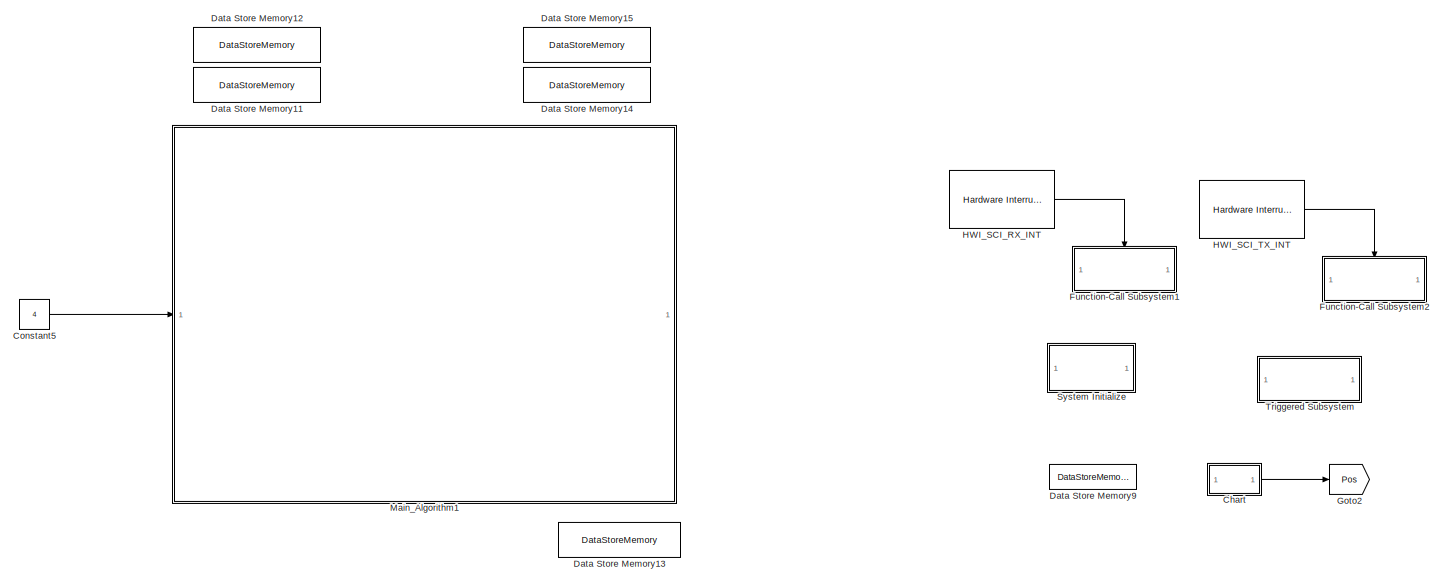
[diagram: root canvas - part 1/7, top center region]
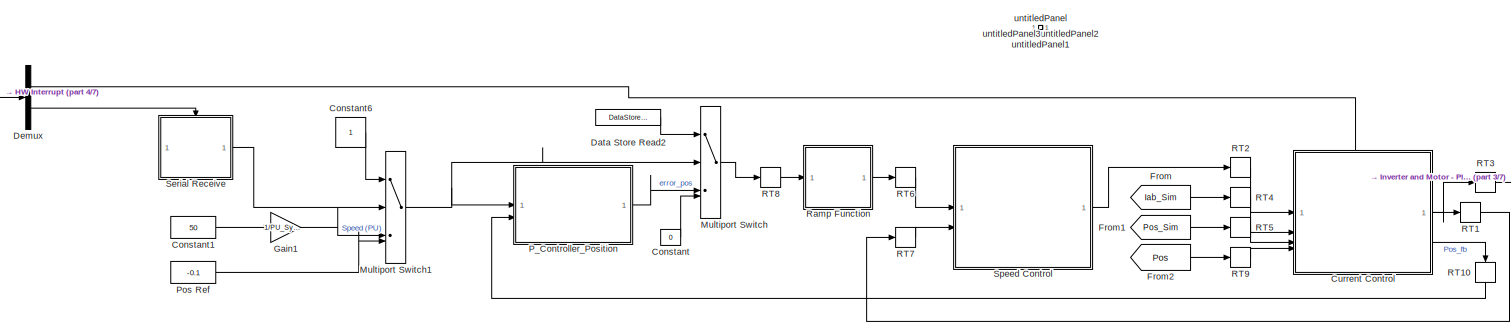
[diagram: root canvas - part 2/7, top right region]
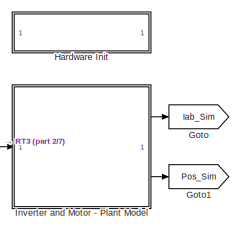
[diagram: root canvas - part 3/7, top right region]
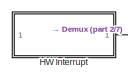
[diagram: root canvas - part 4/7, top center region]
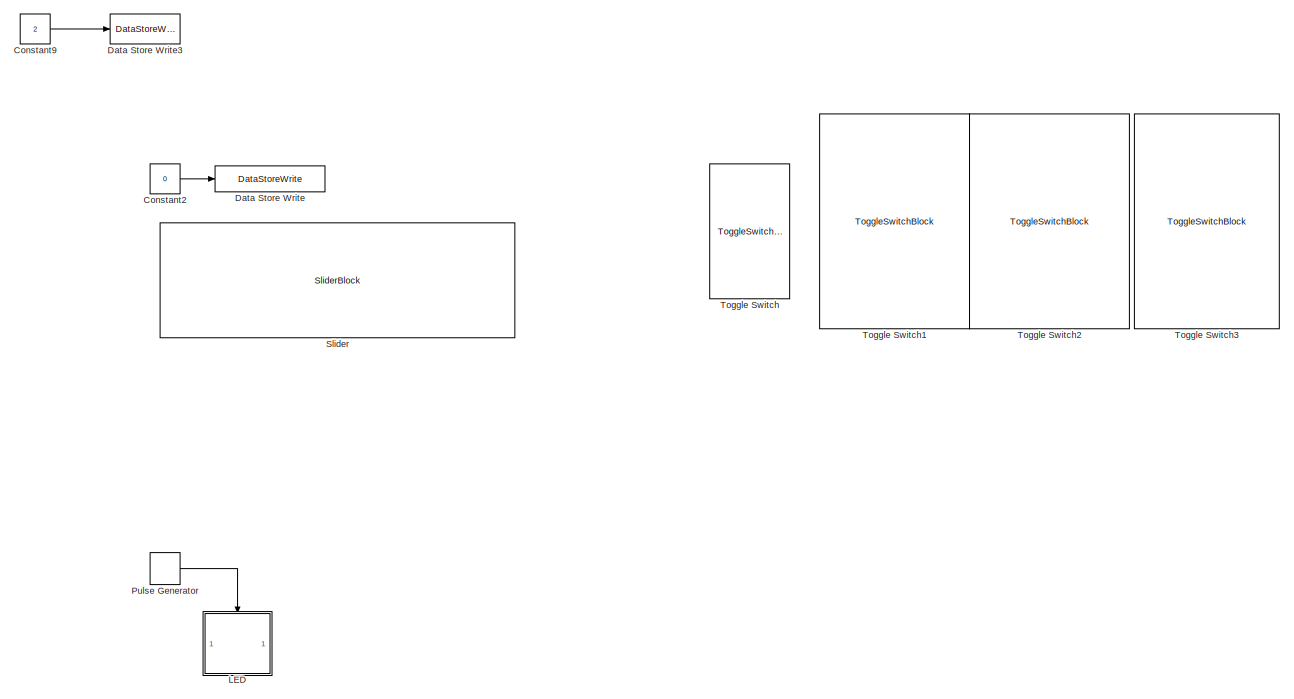
[diagram: root canvas - part 5/7, bottom right region]
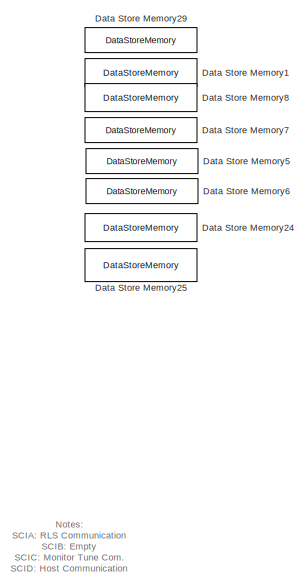
[diagram: root canvas - part 6/7, central region]
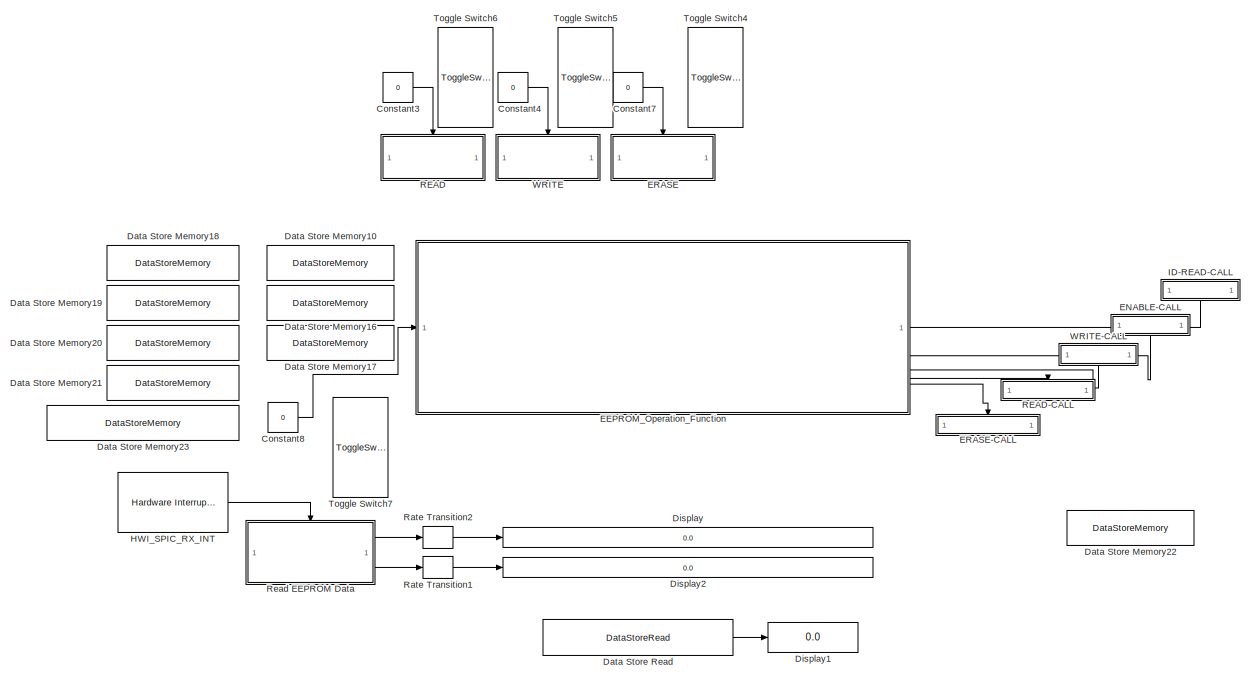
[diagram: root canvas - part 7/7, bottom left region]
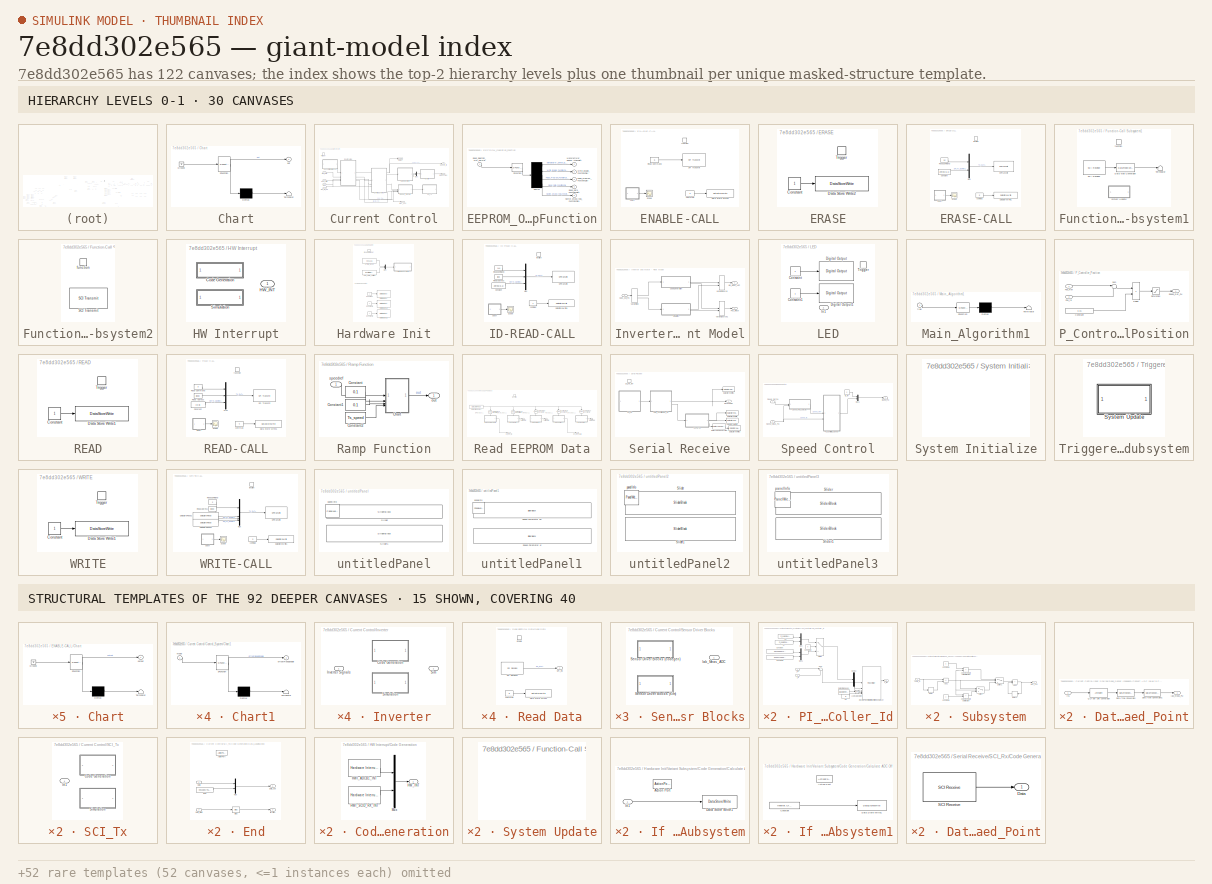
[diagram: thumbnail index - top-2 hierarchy levels (30 canvases) + 15 structural-template representatives of the remaining 92 canvases]
MODEL slx_7e8dd302e565
KIND model
CONFIG AbsTol = auto
CONFIG EnableMultiTasking = on
CONFIG FixedStep = auto
CONFIG InitFcn = mcb_pmsm_foc_hall_f28379d_data;
CONFIG MaxStep = auto
CONFIG MinStep = auto
CONFIG RelTol = 1e-3
CONFIG SampleTimeConstraint = Unconstrained
CONFIG SolverName = FixedStepDiscrete
CONFIG StartTime = 0.0
CONFIG StopTime = inf
WORKSPACE source: mxarray member
WORKSPACE encoderResolution = 2000
WORKSPACE hallOffset = '0.5'
WORKSPACE indexOffset = 850
WORKSPACE polePairs = '4'
BLOCK [SubSystem] Chart
  ErrorFcn = Stateflow.Translate.translate
  PermitHierarchicalResolution = ExplicitOnly
  SFBlockType = Chart
  TreatAsAtomicUnit = on
BLOCK [Demux] Chart/ Demux 
  Outputs = 1
BLOCK [Ground] Chart/ Ground 
BLOCK [S-Function] Chart/ SFunction 
  EnableBusSupport = on
  FunctionName = sf_sfun
  PortCounts = [1 2]
  SFcnIsStateOwnerBlock = off
  SFunctionDeploymentMode = off
  Tag = Stateflow S-Function 2
BLOCK [Terminator] Chart/ Terminator 
BLOCK [Outport] Chart/out
BLOCK [Constant] Constant
  SampleTime = -1
  Value = 0
BLOCK [Constant] Constant1
  OutDataTypeStr = single
  SampleTime = -1
  Value = 50
BLOCK [Constant] Constant2
  Commented = on
  OutDataTypeStr = boolean
  SampleTime = -1
  Value = 0
BLOCK [Constant] Constant3
  OutDataTypeStr = single
  SampleTime = -1
  Value = 0
BLOCK [Constant] Constant4
  OutDataTypeStr = single
  SampleTime = -1
  Value = 0
BLOCK [Constant] Constant5
  OutDataTypeStr = uint16
  SampleTime = -1
  Value = 4
BLOCK [Constant] Constant6
  SampleTime = -1
BLOCK [Constant] Constant7
  OutDataTypeStr = single
  SampleTime = -1
  Value = 0
BLOCK [Constant] Constant8
  OutDataTypeStr = boolean
  SampleTime = -1
  Value = 0
BLOCK [Constant] Constant9
  SampleTime = -1
  Value = 2
BLOCK [SubSystem] Current Control
  RTWMemSecFuncExecute = code_ramfuncs
  RTWSystemCode = Nonreusable function
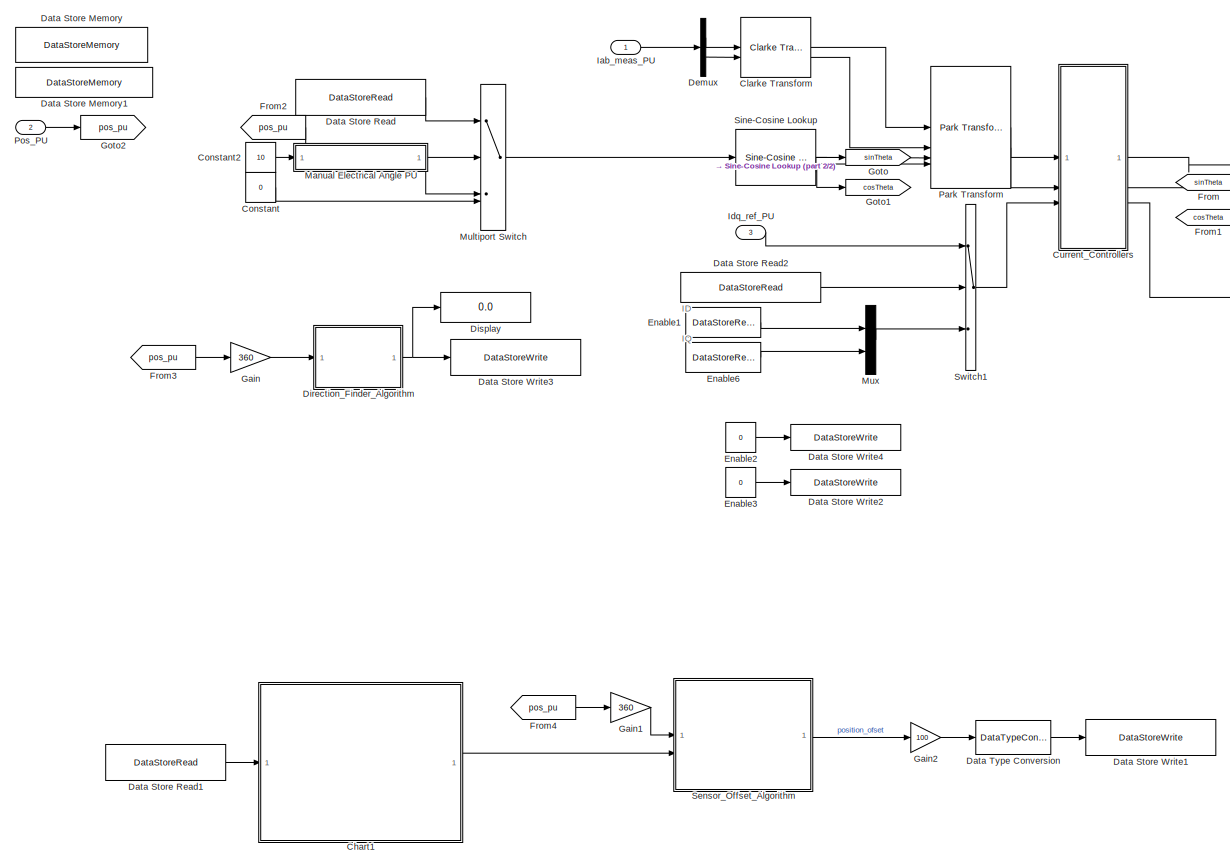
[diagram: Current Control/Control_System - part 1/2, most of the canvas]
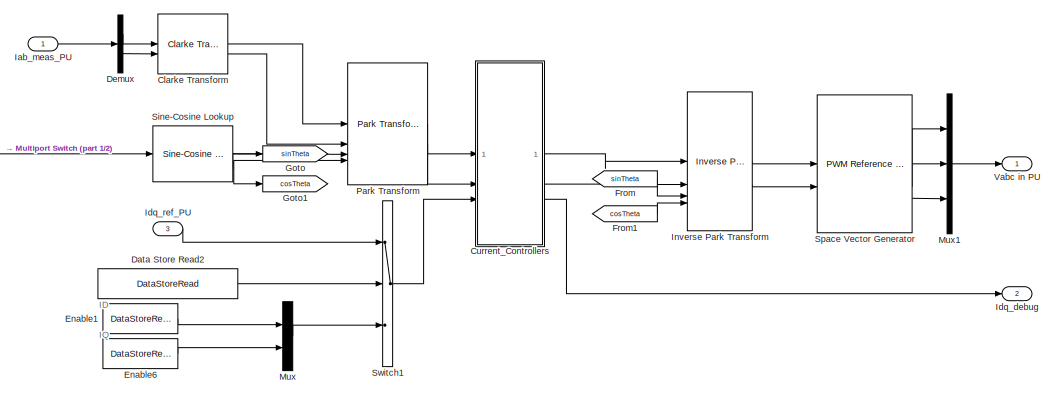
[diagram: Current Control/Control_System - part 2/2, top right region]
BLOCK [SubSystem] Current Control/Control_System
BLOCK [SubSystem] Current Control/Control_System/Chart1
  ErrorFcn = Stateflow.Translate.translate
  PermitHierarchicalResolution = ExplicitOnly
  SFBlockType = Chart
  TreatAsAtomicUnit = on
BLOCK [Demux] Current Control/Control_System/Chart1/ Demux 
  Outputs = 1
BLOCK [S-Function] Current Control/Control_System/Chart1/ SFunction 
  EnableBusSupport = on
  FunctionName = sf_sfun
  PortCounts = [1 2]
  SFcnIsStateOwnerBlock = off
  SFunctionDeploymentMode = off
  Tag = Stateflow S-Function 10
BLOCK [Terminator] Current Control/Control_System/Chart1/ Terminator 
BLOCK [Inport] Current Control/Control_System/Chart1/mode
BLOCK [Outport] Current Control/Control_System/Chart1/offsetReadEnable
BLOCK [Reference] Current Control/Control_System/Clarke Transform  REF=mcbcontrolslib/Clarke Transform
  SourceBlock = mcbcontrolslib/Clarke Transform
  SourceType = Clarke Transform
BLOCK [Constant] Current Control/Control_System/Constant
  OutDataTypeStr = single
  SampleTime = -1
  Value = 0
BLOCK [Constant] Current Control/Control_System/Constant2
  OutDataTypeStr = single
  SampleTime = -1
  Value = 10
BLOCK [SubSystem] Current Control/Control_System/Current_Controllers
BLOCK [Reference] Current Control/Control_System/Current_Controllers/DQ Limiter  REF=mcbcontrolslib/DQ Limiter
  SourceBlock = mcbcontrolslib/DQ Limiter
  SourceType = DQ Limiter
BLOCK [Demux] Current Control/Control_System/Current_Controllers/Demux
  Outputs = 2
BLOCK [Inport] Current Control/Control_System/Current_Controllers/Id
BLOCK [Outport] Current Control/Control_System/Current_Controllers/Idq
  Port = 3
  VectorParamsAs1DForOutWhenUnconnected = off
BLOCK [Inport] Current Control/Control_System/Current_Controllers/Idq_ref_PU
  Port = 3
BLOCK [Inport] Current Control/Control_System/Current_Controllers/Iq
  Port = 2
BLOCK [Mux] Current Control/Control_System/Current_Controllers/Mux
  DisplayOption = bar
BLOCK [SubSystem] Current Control/Control_System/Current_Controllers/PI_Controller_Id
BLOCK [Constant] Current Control/Control_System/Current_Controllers/PI_Controller_Id/Constant
  OutDataTypeStr = single
  SampleTime = -1
  Value = 2.013366674064481
BLOCK [Constant] Current Control/Control_System/Current_Controllers/PI_Controller_Id/Constant1
  OutDataTypeStr = single
  SampleTime = -1
  Value = 0.1031745930575185
BLOCK [Constant] Current Control/Control_System/Current_Controllers/PI_Controller_Id/Constant2
  OutDataTypeStr = single
  SampleTime = -1
  Value = 0
BLOCK [DataStoreRead] Current Control/Control_System/Current_Controllers/PI_Controller_Id/Data Store Read1
  DataStoreName = Enable
  IndexOptions = Index vector (dialog)
  Indices = 1
  OutputSizes = 1
BLOCK [Demux] Current Control/Control_System/Current_Controllers/PI_Controller_Id/Demux
  Outputs = 2
BLOCK [Reference] Current Control/Control_System/Current_Controllers/PI_Controller_Id/Discrete PI Controller with anti-windup & reset  REF=slpidlib/PID Controller
  LibrarySourceBlock = mcbcontrolslib/PI Controller
  SourceBlock = slpidlib/PID Controller
  SourceType = PID 1dof
BLOCK [Inport] Current Control/Control_System/Current_Controllers/PI_Controller_Id/I_fb
  Port = 2
BLOCK [Inport] Current Control/Control_System/Current_Controllers/PI_Controller_Id/I_ref
BLOCK [Constant] Current Control/Control_System/Current_Controllers/PI_Controller_Id/Ki
  OutDataTypeStr = dataType
  SampleTime = -1
  Value = PI_params.Ki_i*Ts
BLOCK [Constant] Current Control/Control_System/Current_Controllers/PI_Controller_Id/Ki1
  NameLocation = top
  OutDataTypeStr = dataType
  SampleTime = -1
  Value = 0
BLOCK [Constant] Current Control/Control_System/Current_Controllers/PI_Controller_Id/Kp
  NameLocation = top
  OutDataTypeStr = dataType
  SampleTime = -1
  Value = PI_params.Kp_i
BLOCK [Logic] Current Control/Control_System/Current_Controllers/PI_Controller_Id/Logical Operator
  AllPortsSameDT = off
  IconShape = distinctive
  Operator = NOT
  OutDataTypeStr = boolean
BLOCK [Mux] Current Control/Control_System/Current_Controllers/PI_Controller_Id/Mux
  DisplayOption = bar
  Inputs = 2
BLOCK [Mux] Current Control/Control_System/Current_Controllers/PI_Controller_Id/Mux1
  DisplayOption = bar
  Inputs = 2
BLOCK [Sum] Current Control/Control_System/Current_Controllers/PI_Controller_Id/Sum
  AccumDataTypeStr = Inherit: Same as first input
  Inputs = |+-
  OutDataTypeStr = Inherit: Same as first input
BLOCK [Switch] Current Control/Control_System/Current_Controllers/PI_Controller_Id/Switch
  Criteria = u2 > Threshold
  InputSameDT = off
  OutDataTypeStr = single
  SaturateOnIntegerOverflow = off
BLOCK [Outport] Current Control/Control_System/Current_Controllers/PI_Controller_Id/V_ref
  VectorParamsAs1DForOutWhenUnconnected = off
BLOCK [SubSystem] Current Control/Control_System/Current_Controllers/PI_Controller_Iq
BLOCK [Constant] Current Control/Control_System/Current_Controllers/PI_Controller_Iq/Constant
  OutDataTypeStr = single
  SampleTime = -1
  Value = 1.742285927107854
BLOCK [Constant] Current Control/Control_System/Current_Controllers/PI_Controller_Iq/Constant1
  OutDataTypeStr = single
  SampleTime = -1
  Value = 0.08751756653004016
BLOCK [Constant] Current Control/Control_System/Current_Controllers/PI_Controller_Iq/Constant2
  OutDataTypeStr = single
  SampleTime = -1
  Value = 0
BLOCK [DataStoreRead] Current Control/Control_System/Current_Controllers/PI_Controller_Iq/Data Store Read1
  DataStoreName = Enable
  IndexOptions = Index vector (dialog)
  Indices = 1
  OutputSizes = 1
BLOCK [Demux] Current Control/Control_System/Current_Controllers/PI_Controller_Iq/Demux
  Outputs = 2
BLOCK [Reference] Current Control/Control_System/Current_Controllers/PI_Controller_Iq/Discrete PI Controller with anti-windup & reset  REF=slpidlib/PID Controller
  LibrarySourceBlock = mcbcontrolslib/PI Controller
  SourceBlock = slpidlib/PID Controller
  SourceType = PID 1dof
BLOCK [Inport] Current Control/Control_System/Current_Controllers/PI_Controller_Iq/I_fb
  Port = 2
BLOCK [Inport] Current Control/Control_System/Current_Controllers/PI_Controller_Iq/I_ref
BLOCK [Constant] Current Control/Control_System/Current_Controllers/PI_Controller_Iq/Ki
  OutDataTypeStr = dataType
  SampleTime = -1
  Value = PI_params.Ki_i*Ts
BLOCK [Constant] Current Control/Control_System/Current_Controllers/PI_Controller_Iq/Kp
  NameLocation = top
  OutDataTypeStr = dataType
  SampleTime = -1
  Value = PI_params.Kp_i
BLOCK [Constant] Current Control/Control_System/Current_Controllers/PI_Controller_Iq/Kp1
  NameLocation = top
  OutDataTypeStr = dataType
  SampleTime = -1
  Value = 0
BLOCK [Logic] Current Control/Control_System/Current_Controllers/PI_Controller_Iq/Logical Operator
  AllPortsSameDT = off
  IconShape = distinctive
  Operator = NOT
  OutDataTypeStr = boolean
BLOCK [Mux] Current Control/Control_System/Current_Controllers/PI_Controller_Iq/Mux
  DisplayOption = bar
  Inputs = 2
BLOCK [Mux] Current Control/Control_System/Current_Controllers/PI_Controller_Iq/Mux1
  DisplayOption = bar
  Inputs = 2
BLOCK [Sum] Current Control/Control_System/Current_Controllers/PI_Controller_Iq/Sum
  AccumDataTypeStr = Inherit: Same as first input
  Inputs = |+-
  OutDataTypeStr = Inherit: Same as first input
BLOCK [Switch] Current Control/Control_System/Current_Controllers/PI_Controller_Iq/Switch
  Criteria = u2 > Threshold
  InputSameDT = off
  OutDataTypeStr = single
  SaturateOnIntegerOverflow = off
BLOCK [Outport] Current Control/Control_System/Current_Controllers/PI_Controller_Iq/V_ref
  VectorParamsAs1DForOutWhenUnconnected = off
BLOCK [Terminator] Current Control/Control_System/Current_Controllers/Terminator
BLOCK [Outport] Current Control/Control_System/Current_Controllers/Vd_ref
  VectorParamsAs1DForOutWhenUnconnected = off
BLOCK [Outport] Current Control/Control_System/Current_Controllers/Vq_ref
  Port = 2
  VectorParamsAs1DForOutWhenUnconnected = off
BLOCK [DataStoreMemory] Current Control/Control_System/Data Store Memory
  DataStoreName = Auto_nMan_pos_fdbck
  OutDataTypeStr = uint16
  ShowAdditionalParam = off
  SignalType = real
  WriteAfterWriteMsg = warning
BLOCK [DataStoreMemory] Current Control/Control_System/Data Store Memory1
  DataStoreName = Auto_nMan_currentRef
  OutDataTypeStr = boolean
  ShowAdditionalParam = off
  SignalType = real
  WriteAfterWriteMsg = warning
BLOCK [DataStoreRead] Current Control/Control_System/Data Store Read
  DataStoreName = Auto_nMan_pos_fdbck
  IndexOptions = Index vector (dialog)
  Indices = 1
  OutputSizes = 1
BLOCK [DataStoreRead] Current Control/Control_System/Data Store Read1
  DataStoreName = CL_Op_Mode
  IndexOptions = Index vector (dialog)
  Indices = 1
  OutputSizes = 1
BLOCK [DataStoreRead] Current Control/Control_System/Data Store Read2
  DataStoreName = Auto_nMan_currentRef
  IndexOptions = Index vector (dialog)
  Indices = 1
  OutputSizes = 1
BLOCK [DataStoreWrite] Current Control/Control_System/Data Store Write1
  DataStoreName = position_offset
  IndexOptions = Index vector (dialog)
  Indices = 1
  OutputSizes = 1
BLOCK [DataStoreWrite] Current Control/Control_System/Data Store Write2
  DataStoreName = Id_ref
  IndexOptions = Index vector (dialog)
  Indices = 1
  OutputSizes = 1
BLOCK [DataStoreWrite] Current Control/Control_System/Data Store Write3
  DataStoreName = motor_direction
  IndexOptions = Index vector (dialog)
  Indices = 1
  OutputSizes = 1
BLOCK [DataStoreWrite] Current Control/Control_System/Data Store Write4
  DataStoreName = Iq_ref
  IndexOptions = Index vector (dialog)
  Indices = 1
  OutputSizes = 1
BLOCK [DataTypeConversion] Current Control/Control_System/Data Type Conversion
  OutDataTypeStr = uint16
  RndMeth = Floor
  SaturateOnIntegerOverflow = off
BLOCK [Demux] Current Control/Control_System/Demux
  Outputs = 2
BLOCK [SubSystem] Current Control/Control_System/Direction_Finder_Algorithm
BLOCK [Outport] Current Control/Control_System/Direction_Finder_Algorithm/Output
BLOCK [Inport] Current Control/Control_System/Direction_Finder_Algorithm/Position
BLOCK [SubSystem] Current Control/Control_System/Direction_Finder_Algorithm/deBounce
  ErrorFcn = Stateflow.Translate.translate
  PermitHierarchicalResolution = ExplicitOnly
  SFBlockType = Chart
  TreatAsAtomicUnit = on
BLOCK [Demux] Current Control/Control_System/Direction_Finder_Algorithm/deBounce/ Demux 
  Outputs = 1
BLOCK [S-Function] Current Control/Control_System/Direction_Finder_Algorithm/deBounce/ SFunction 
  EnableBusSupport = on
  FunctionName = sf_sfun
  PortCounts = [1 2]
  SFcnIsStateOwnerBlock = off
  SFunctionDeploymentMode = off
  Tag = Stateflow S-Function 12
BLOCK [Terminator] Current Control/Control_System/Direction_Finder_Algorithm/deBounce/ Terminator 
BLOCK [Outport] Current Control/Control_System/Direction_Finder_Algorithm/deBounce/Output
BLOCK [Inport] Current Control/Control_System/Direction_Finder_Algorithm/deBounce/input
BLOCK [SubSystem] Current Control/Control_System/Direction_Finder_Algorithm/directionFinder
  ErrorFcn = Stateflow.Translate.translate
  PermitHierarchicalResolution = ExplicitOnly
  SFBlockType = Chart
  TreatAsAtomicUnit = on
BLOCK [Demux] Current Control/Control_System/Direction_Finder_Algorithm/directionFinder/ Demux 
  Outputs = 1
BLOCK [S-Function] Current Control/Control_System/Direction_Finder_Algorithm/directionFinder/ SFunction 
  EnableBusSupport = on
  FunctionName = sf_sfun
  PortCounts = [1 2]
  SFcnIsStateOwnerBlock = off
  SFunctionDeploymentMode = off
  Tag = Stateflow S-Function 11
BLOCK [Terminator] Current Control/Control_System/Direction_Finder_Algorithm/directionFinder/ Terminator 
BLOCK [Inport] Current Control/Control_System/Direction_Finder_Algorithm/directionFinder/Position
BLOCK [Outport] Current Control/Control_System/Direction_Finder_Algorithm/directionFinder/direction
BLOCK [Display] Current Control/Control_System/Display
  Decimation = 1
BLOCK [DataStoreRead] Current Control/Control_System/Enable1
  DataStoreName = Id_ref
  IndexOptions = Index vector (dialog)
  Indices = 1
  OutputSizes = 1
BLOCK [Constant] Current Control/Control_System/Enable2
  OutDataTypeStr = single
  SampleTime = -1
  Value = 0
BLOCK [Constant] Current Control/Control_System/Enable3
  OutDataTypeStr = single
  SampleTime = -1
  Value = 0
BLOCK [DataStoreRead] Current Control/Control_System/Enable6
  DataStoreName = Iq_ref
  IndexOptions = Index vector (dialog)
  Indices = 1
  OutputSizes = 1
BLOCK [From] Current Control/Control_System/From
  GotoTag = sinTheta
BLOCK [From] Current Control/Control_System/From1
  GotoTag = cosTheta
BLOCK [From] Current Control/Control_System/From2
  GotoTag = pos_pu
BLOCK [From] Current Control/Control_System/From3
  GotoTag = pos_pu
BLOCK [From] Current Control/Control_System/From4
  GotoTag = pos_pu
BLOCK [Gain] Current Control/Control_System/Gain
  Gain = 360
  OutDataTypeStr = single
BLOCK [Gain] Current Control/Control_System/Gain1
  Gain = 360
  OutDataTypeStr = single
BLOCK [Gain] Current Control/Control_System/Gain2
  Gain = 100
  OutDataTypeStr = single
BLOCK [Goto] Current Control/Control_System/Goto
  GotoTag = sinTheta
BLOCK [Goto] Current Control/Control_System/Goto1
  GotoTag = cosTheta
BLOCK [Goto] Current Control/Control_System/Goto2
  GotoTag = pos_pu
BLOCK [Inport] Current Control/Control_System/Iab_meas_PU
BLOCK [Outport] Current Control/Control_System/Idq_debug
  Port = 2
  VectorParamsAs1DForOutWhenUnconnected = off
BLOCK [Inport] Current Control/Control_System/Idq_ref_PU
  Port = 3
BLOCK [Reference] Current Control/Control_System/Inverse Park Transform  REF=mcbcontrolslib/Inverse Park Transform
  SourceBlock = mcbcontrolslib/Inverse Park Transform
  SourceType = Inverse Park Transform
BLOCK [SubSystem] Current Control/Control_System/Manual Electrical Angle PU
  ErrorFcn = Stateflow.Translate.translate
  PermitHierarchicalResolution = ExplicitOnly
  SFBlockType = Chart
  TreatAsAtomicUnit = on
BLOCK [Demux] Current Control/Control_System/Manual Electrical Angle PU/ Demux 
  Outputs = 1
BLOCK [S-Function] Current Control/Control_System/Manual Electrical Angle PU/ SFunction 
  EnableBusSupport = on
  FunctionName = sf_sfun
  PortCounts = [1 2]
  SFcnIsStateOwnerBlock = off
  SFunctionDeploymentMode = off
  Tag = Stateflow S-Function 3
BLOCK [Terminator] Current Control/Control_System/Manual Electrical Angle PU/ Terminator 
BLOCK [Outport] Current Control/Control_System/Manual Electrical Angle PU/angle
BLOCK [Inport] Current Control/Control_System/Manual Electrical Angle PU/speedRate
BLOCK [MultiPortSwitch] Current Control/Control_System/Multiport Switch
  InputSameDT = off
  Inputs = 4
  SaturateOnIntegerOverflow = off
BLOCK [Mux] Current Control/Control_System/Mux
  DisplayOption = bar
  Inputs = 2
BLOCK [Mux] Current Control/Control_System/Mux1
  DisplayOption = bar
  Inputs = 3
BLOCK [Reference] Current Control/Control_System/Park Transform  REF=mcbcontrolslib/Park Transform
  SourceBlock = mcbcontrolslib/Park Transform
  SourceType = Park Transform
BLOCK [Inport] Current Control/Control_System/Pos_PU
  Port = 2
BLOCK [SubSystem] Current Control/Control_System/Sensor_Offset_Algorithm
  ErrorFcn = Stateflow.Translate.translate
  PermitHierarchicalResolution = ExplicitOnly
  SFBlockType = Chart
  TreatAsAtomicUnit = on
BLOCK [Demux] Current Control/Control_System/Sensor_Offset_Algorithm/ Demux 
  Outputs = 1
BLOCK [S-Function] Current Control/Control_System/Sensor_Offset_Algorithm/ SFunction 
  EnableBusSupport = on
  FunctionName = sf_sfun
  PortCounts = [2 2]
  SFcnIsStateOwnerBlock = off
  SFunctionDeploymentMode = off
  Tag = Stateflow S-Function 13
BLOCK [Terminator] Current Control/Control_System/Sensor_Offset_Algorithm/ Terminator 
BLOCK [Inport] Current Control/Control_System/Sensor_Offset_Algorithm/enable
  Port = 2
BLOCK [Outport] Current Control/Control_System/Sensor_Offset_Algorithm/offset
BLOCK [Inport] Current Control/Control_System/Sensor_Offset_Algorithm/position
BLOCK [Reference] Current Control/Control_System/Sine-Cosine Lookup  REF=mcbcontrolslib/Sine-Cosine Lookup
  SourceBlock = mcbcontrolslib/Sine-Cosine Lookup
  SourceType = Sine-Cosine Lookup
BLOCK [Reference] Current Control/Control_System/Space Vector Generator  REF=mcbcontrolslib/PWM Reference Generator
  SourceBlock = mcbcontrolslib/PWM Reference Generator
  SourceType = PWM Modulation
BLOCK [Switch] Current Control/Control_System/Switch1
  Criteria = u2 > Threshold
  InputSameDT = off
  OutDataTypeStr = single
  SaturateOnIntegerOverflow = off
BLOCK [Outport] Current Control/Control_System/Vabc in PU
  VectorParamsAs1DForOutWhenUnconnected = off
BLOCK [SubSystem] Current Control/Debug_signals
BLOCK [DataStoreRead] Current Control/Debug_signals/Data Store Read
  DataStoreName = Debug_signals
  IndexOptions = Index vector (dialog)
  Indices = 1
  OutputSizes = 1
BLOCK [DataStoreRead] Current Control/Debug_signals/Data Store Read1
  DataStoreName = Desired_ref
  IndexOptions = Index vector (dialog)
  Indices = 1
  OutputSizes = 1
BLOCK [Outport] Current Control/Debug_signals/Debug_signal
BLOCK [Demux] Current Control/Debug_signals/Demux
  Outputs = 2
BLOCK [Demux] Current Control/Debug_signals/Demux1
BLOCK [From] Current Control/Debug_signals/From
  GotoTag = debug1
  TagVisibility = global
BLOCK [Constant] Current Control/Debug_signals/Ia_Pos
  OutDataTypeStr = uint16
  SampleTime = -1
  Value = [3 9]
BLOCK [Constant] Current Control/Debug_signals/Iab
  OutDataTypeStr = uint16
  SampleTime = -1
  Value = [3 4]
BLOCK [Inport] Current Control/Debug_signals/Iab_PU
  Port = 3
BLOCK [Constant] Current Control/Debug_signals/Id_control
  OutDataTypeStr = uint16
  SampleTime = -1
  Value = [5 6]
BLOCK [Inport] Current Control/Debug_signals/Idq_debug
BLOCK [Constant] Current Control/Debug_signals/Iq_control
  OutDataTypeStr = uint16
  SampleTime = -1
  Value = [7 8]
BLOCK [Constant] Current Control/Debug_signals/Mec_Pos
  OutDataTypeStr = uint16
  SampleTime = -1
  Value = [10 9]
BLOCK [Inport] Current Control/Debug_signals/Mec_pos
  OutDataTypeStr = single
  Port = 4
BLOCK [MultiPortSwitch] Current Control/Debug_signals/Multiport Switch
  DiagnosticForDefault = Warning
  InputSameDT = off
  Inputs = 6
  OutDataTypeStr = uint16
  RndMeth = Simplest
  SaturateOnIntegerOverflow = off
BLOCK [Mux] Current Control/Debug_signals/Mux
  DisplayOption = bar
  Inputs = 10
BLOCK [Inport] Current Control/Debug_signals/Position
  Port = 2
BLOCK [Selector] Current Control/Debug_signals/Selector
  IndexOptions = Index vector (port)
  Indices = [1 3]
  InputPortWidth = 9
  OutputSizes = 1
BLOCK [Constant] Current Control/Debug_signals/speed_control
  OutDataTypeStr = uint16
  SampleTime = -1
  Value = [1 2]
BLOCK [Outport] Current Control/Duty Cycles
  InitialOutput = 0
  VectorParamsAs1DForOutWhenUnconnected = off
BLOCK [Goto] Current Control/Goto1
  GotoTag = debug1
  TagVisibility = global
BLOCK [Inport] Current Control/Iab_Sim
  Port = 2
BLOCK [Inport] Current Control/Idq_ref_PU
BLOCK [SubSystem] Current Control/Input Scaling
  PortSchema = {"entries":[{"content":{"sides":[{"content":{"connectorIds":["In1","In2","In3"]},"type":"ConnectorPlacement.EquallySpacedRectSide","uuid":"9f2f3667-6d5e-4714-8728-a7ac227716ab"},{"content":{"connectorIds":["Out1","Out2","Out3","Out4"],"side":"RIGHT"},"type":"ConnectorPlacement.EquallySpacedRectSide","uuid":"67095e94-5e6f-40af-88f8-fd5db9288dde"},{"content":{"side":"TOP"},"type":"ConnectorPlacement...<+404ch>
  PropagateVariantConditions = on
  Variant = on
  VariantControl = Variant1
  VariantControlMode = sim codegen switching
BLOCK [Inport] Current Control/Input Scaling/Iab_Sim
  Port = 2
BLOCK [Inport] Current Control/Input Scaling/Iab_meas_ADC
BLOCK [Outport] Current Control/Input Scaling/Iab_meas_PU
  Port = 2
  VectorParamsAs1DForOutWhenUnconnected = off
BLOCK [Outport] Current Control/Input Scaling/Mec_pos
  InitialOutput = 0
  Port = 4
  VectorParamsAs1DForOutWhenUnconnected = off
BLOCK [Inport] Current Control/Input Scaling/Pos
  Port = 4
BLOCK [Outport] Current Control/Input Scaling/Pos_PU
  InitialOutput = 0
  Port = 3
  VectorParamsAs1DForOutWhenUnconnected = off
BLOCK [Inport] Current Control/Input Scaling/Pos_Sim
  Port = 3
BLOCK [SubSystem] Current Control/Input Scaling/Read_Sensor (codegen)
  VariantControl = (codegen)
BLOCK [SubSystem] Current Control/Input Scaling/Read_Sensor (codegen)/Calculate Position from Hall
BLOCK [Sum] Current Control/Input Scaling/Read_Sensor (codegen)/Calculate Position from Hall/Add
  AccumDataTypeStr = single
  IconShape = rectangular
  OutDataTypeStr = single
BLOCK [Constant] Current Control/Input Scaling/Read_Sensor (codegen)/Calculate Position from Hall/Constant
  OutDataTypeStr = single
  SampleTime = -1
  Value = 130
BLOCK [Constant] Current Control/Input Scaling/Read_Sensor (codegen)/Calculate Position from Hall/Constant1
  OutDataTypeStr = single
  SampleTime = -1
  Value = 360
BLOCK [Constant] Current Control/Input Scaling/Read_Sensor (codegen)/Calculate Position from Hall/Constant2
  OutDataTypeStr = single
  SampleTime = -1
  Value = 360
BLOCK [Product] Current Control/Input Scaling/Read_Sensor (codegen)/Calculate Position from Hall/Divide
  Inputs = */
  OutDataTypeStr = single
BLOCK [Outport] Current Control/Input Scaling/Read_Sensor (codegen)/Calculate Position from Hall/Mec_pos
  Port = 3
BLOCK [Reference] Current Control/Input Scaling/Read_Sensor (codegen)/Calculate Position from Hall/Mechanical to Electrical Position1  REF=mcbpositiondecoderlib/Mechanical to Electrical Position
  SourceBlock = mcbpositiondecoderlib/Mechanical to Electrical Position
  SourceType = Mechanical to Electrical Position
BLOCK [Math] Current Control/Input Scaling/Read_Sensor (codegen)/Calculate Position from Hall/Mod
  Operator = mod
  OutMax = [360]
  OutMin = [0]
  OutputSignalType = real
BLOCK [Inport] Current Control/Input Scaling/Read_Sensor (codegen)/Calculate Position from Hall/Pos
BLOCK [Outport] Current Control/Input Scaling/Read_Sensor (codegen)/Calculate Position from Hall/Pos_PU
  InitialOutput = 0
  VectorParamsAs1DForOutWhenUnconnected = off
BLOCK [Reference] Current Control/Input Scaling/Read_Sensor (codegen)/Calculate Position from Hall/Speed Measurement  REF=mcbhdlpositiondecoderlib/Speed Measurement
  LibrarySourceBlock = mcbhdllib/Sensor Decoders/Speed Measurement
  SourceBlock = mcbhdlpositiondecoderlib/Speed Measurement
  SourceType = Speed Measurement
BLOCK [Outport] Current Control/Input Scaling/Read_Sensor (codegen)/Calculate Position from Hall/Speed_PU
  InitialOutput = 0
  Port = 2
  VectorParamsAs1DForOutWhenUnconnected = off
BLOCK [SubSystem] Current Control/Input Scaling/Read_Sensor (codegen)/Calculate Position from Hall/Subsystem
BLOCK [Sum] Current Control/Input Scaling/Read_Sensor (codegen)/Calculate Position from Hall/Subsystem/Add1
  IconShape = rectangular
  Inputs = +-
BLOCK [Sum] Current Control/Input Scaling/Read_Sensor (codegen)/Calculate Position from Hall/Subsystem/Add2
  IconShape = rectangular
BLOCK [Constant] Current Control/Input Scaling/Read_Sensor (codegen)/Calculate Position from Hall/Subsystem/Constant3
  OutDataTypeStr = dataType
BLOCK [Constant] Current Control/Input Scaling/Read_Sensor (codegen)/Calculate Position from Hall/Subsystem/Constant4
  OutDataTypeStr = dataType
  Value = -1
BLOCK [Delay] Current Control/Input Scaling/Read_Sensor (codegen)/Calculate Position from Hall/Subsystem/Delay
  DelayLength = 1
  InputPortMap = u0
BLOCK [Delay] Current Control/Input Scaling/Read_Sensor (codegen)/Calculate Position from Hall/Subsystem/Delay1
  DelayLength = 1
  InputPortMap = u0
BLOCK [Outport] Current Control/Input Scaling/Read_Sensor (codegen)/Calculate Position from Hall/Subsystem/Mec_Pos
BLOCK [Switch] Current Control/Input Scaling/Read_Sensor (codegen)/Calculate Position from Hall/Subsystem/Switch
  Criteria = u2 > Threshold
  InputSameDT = off
  SaturateOnIntegerOverflow = off
  Threshold = -0.5
BLOCK [Switch] Current Control/Input Scaling/Read_Sensor (codegen)/Calculate Position from Hall/Subsystem/Switch1
  Criteria = u2 > Threshold
  InputSameDT = off
  SaturateOnIntegerOverflow = off
  Threshold = 0.5
BLOCK [Inport] Current Control/Input Scaling/Read_Sensor (codegen)/Calculate Position from Hall/Subsystem/Theta_m
BLOCK [Sum] Current Control/Input Scaling/Read_Sensor (codegen)/Calculate Position from Hall/Subsystem/zero crossing in Anti CW direction
  IconShape = rectangular
BLOCK [Sum] Current Control/Input Scaling/Read_Sensor (codegen)/Calculate Position from Hall/Subsystem/zero crossing in CW direction
  IconShape = rectangular
BLOCK [SubSystem] Current Control/Input Scaling/Read_Sensor (codegen)/Convert ADC value to PU
BLOCK [Sum] Current Control/Input Scaling/Read_Sensor (codegen)/Convert ADC value to PU/Add
  IconShape = rectangular
  Inputs = -+
BLOCK [DataStoreRead] Current Control/Input Scaling/Read_Sensor (codegen)/Convert ADC value to PU/Data Store Read
  DataStoreName = IaOffset
  IndexOptions = Index vector (dialog)
  Indices = 1
  OutputSizes = 1
BLOCK [DataStoreRead] Current Control/Input Scaling/Read_Sensor (codegen)/Convert ADC value to PU/Data Store Read1
  DataStoreName = IbOffset
  IndexOptions = Index vector (dialog)
  Indices = 1
  OutputSizes = 1
BLOCK [DataTypeConversion] Current Control/Input Scaling/Read_Sensor (codegen)/Convert ADC value to PU/Data Type Conversion
  ConvertRealWorld = Stored Integer (SI)
  OutDataTypeStr = int32
  RndMeth = Floor
  SaturateOnIntegerOverflow = off
BLOCK [SubSystem] Current Control/Input Scaling/Read_Sensor (codegen)/Convert ADC value to PU/Data_Type
  Variant = on
BLOCK [SubSystem] Current Control/Input Scaling/Read_Sensor (codegen)/Convert ADC value to PU/Data_Type/Data_Type_Fixed_Point
  VariantControl = ~isequal(dataType,'single')
BLOCK [DataTypeConversion] Current Control/Input Scaling/Read_Sensor (codegen)/Convert ADC value to PU/Data_Type/Data_Type_Fixed_Point/Data Type Conversion
  ConvertRealWorld = Stored Integer (SI)
  OutDataTypeStr = fixdt(1,32,17)
  RndMeth = Simplest
  SaturateOnIntegerOverflow = off
BLOCK [DataTypeConversion] Current Control/Input Scaling/Read_Sensor (codegen)/Convert ADC value to PU/Data_Type/Data_Type_Fixed_Point/Data Type Conversion1
  OutDataTypeStr = dataType
  RndMeth = Simplest
  SaturateOnIntegerOverflow = off
BLOCK [Outport] Current Control/Input Scaling/Read_Sensor (codegen)/Convert ADC value to PU/Data_Type/Data_Type_Fixed_Point/Iab_meas_PU
BLOCK [Inport] Current Control/Input Scaling/Read_Sensor (codegen)/Convert ADC value to PU/Data_Type/Data_Type_Fixed_Point/In1
BLOCK [ArithShift] Current Control/Input Scaling/Read_Sensor (codegen)/Convert ADC value to PU/Data_Type/Data_Type_Fixed_Point/Q17 per unit conversion
  BitShiftNumber = -6
  InputPortMap = u0
BLOCK [SubSystem] Current Control/Input Scaling/Read_Sensor (codegen)/Convert ADC value to PU/Data_Type/Data_Type_Float
  VariantControl = isequal(dataType,'single')
BLOCK [Sum] Current Control/Input Scaling/Read_Sensor (codegen)/Convert ADC value to PU/Data_Type/Data_Type_Float/Add
  AccumDataTypeStr = single
  IconShape = rectangular
  OutDataTypeStr = single
BLOCK [Sum] Current Control/Input Scaling/Read_Sensor (codegen)/Convert ADC value to PU/Data_Type/Data_Type_Float/Add1
  AccumDataTypeStr = single
  IconShape = rectangular
  Inputs = +-
  OutDataTypeStr = single
BLOCK [Constant] Current Control/Input Scaling/Read_Sensor (codegen)/Convert ADC value to PU/Data_Type/Data_Type_Float/Constant
  OutDataTypeStr = single
  SampleTime = -1
  Value = 0
BLOCK [Demux] Current Control/Input Scaling/Read_Sensor (codegen)/Convert ADC value to PU/Data_Type/Data_Type_Float/Demux
  Outputs = 2
BLOCK [Gain] Current Control/Input Scaling/Read_Sensor (codegen)/Convert ADC value to PU/Data_Type/Data_Type_Float/Get ADC Voltage
  Gain = target.ADC_Vref /target.ADC_MaxCount
  OutDataTypeStr = dataType
  RndMeth = Simplest
BLOCK [Gain] Current Control/Input Scaling/Read_Sensor (codegen)/Convert ADC value to PU/Data_Type/Data_Type_Float/Get Currents
  Gain = 1/inverter.ISenseVoltPerAmp
  OutDataTypeStr = Inherit: Same as input
  RndMeth = Simplest
BLOCK [Outport] Current Control/Input Scaling/Read_Sensor (codegen)/Convert ADC value to PU/Data_Type/Data_Type_Float/Iab_meas_PU
BLOCK [Inport] Current Control/Input Scaling/Read_Sensor (codegen)/Convert ADC value to PU/Data_Type/Data_Type_Float/In1
BLOCK [Mux] Current Control/Input Scaling/Read_Sensor (codegen)/Convert ADC value to PU/Data_Type/Data_Type_Float/Mux
  DisplayOption = bar
  Inputs = 2
BLOCK [Gain] Current Control/Input Scaling/Read_Sensor (codegen)/Convert ADC value to PU/Data_Type/Data_Type_Float/PU_Conversion
  Gain = 1/PU_System.I_base
  OutDataTypeStr = Inherit: Same as input
  RndMeth = Simplest
BLOCK [Outport] Current Control/Input Scaling/Read_Sensor (codegen)/Convert ADC value to PU/Data_Type/Iab_meas_PU
BLOCK [Inport] Current Control/Input Scaling/Read_Sensor (codegen)/Convert ADC value to PU/Data_Type/In1
BLOCK [Inport] Current Control/Input Scaling/Read_Sensor (codegen)/Convert ADC value to PU/Iab_meas_ADC
BLOCK [Outport] Current Control/Input Scaling/Read_Sensor (codegen)/Convert ADC value to PU/Iab_meas_PU
BLOCK [Gain] Current Control/Input Scaling/Read_Sensor (codegen)/Convert ADC value to PU/Inverting // Non-inverting Current measurement amplifieer
  Gain = inverter.invertingAmp
  OutDataTypeStr = Inherit: Same as input
  RndMeth = Simplest
BLOCK [Mux] Current Control/Input Scaling/Read_Sensor (codegen)/Convert ADC value to PU/Mux
  DisplayOption = bar
  Inputs = 2
BLOCK [Inport] Current Control/Input Scaling/Read_Sensor (codegen)/Iab_Sim
  Port = 2
BLOCK [Inport] Current Control/Input Scaling/Read_Sensor (codegen)/Iab_meas_ADC
BLOCK [Outport] Current Control/Input Scaling/Read_Sensor (codegen)/Iab_meas_PU
  VectorParamsAs1DForOutWhenUnconnected = off
BLOCK [Outport] Current Control/Input Scaling/Read_Sensor (codegen)/Mec_pos
  InitialOutput = 0
  Port = 4
  VectorParamsAs1DForOutWhenUnconnected = off
BLOCK [Inport] Current Control/Input Scaling/Read_Sensor (codegen)/Pos
  Port = 4
BLOCK [Outport] Current Control/Input Scaling/Read_Sensor (codegen)/Pos_PU
  InitialOutput = 0
  Port = 2
  VectorParamsAs1DForOutWhenUnconnected = off
BLOCK [Inport] Current Control/Input Scaling/Read_Sensor (codegen)/Pos_Sim
  Port = 3
BLOCK [Terminator] Current Control/Input Scaling/Read_Sensor (codegen)/Terminator
BLOCK [Terminator] Current Control/Input Scaling/Read_Sensor (codegen)/Terminator1
BLOCK [Outport] Current Control/Input Scaling/Read_Sensor (codegen)/speed_PU
  InitialOutput = 0
  Port = 3
  VectorParamsAs1DForOutWhenUnconnected = off
BLOCK [SubSystem] Current Control/Input Scaling/Read_Sensor (sim)
  VariantControl = (sim)
BLOCK [SubSystem] Current Control/Input Scaling/Read_Sensor (sim)/Convert ADC value to PU
BLOCK [Constant] Current Control/Input Scaling/Read_Sensor (sim)/Convert ADC value to PU/0A in ADC counts
  OutDataTypeStr = uint16
  SampleTime = -1
  Value = [inverter.CtSensAOffset inverter.CtSensBOffset]
BLOCK [Sum] Current Control/Input Scaling/Read_Sensor (sim)/Convert ADC value to PU/Add
  IconShape = rectangular
  Inputs = -+
BLOCK [DataTypeConversion] Current Control/Input Scaling/Read_Sensor (sim)/Convert ADC value to PU/Data Type Conversion
  ConvertRealWorld = Stored Integer (SI)
  OutDataTypeStr = int32
  RndMeth = Floor
  SaturateOnIntegerOverflow = off
BLOCK [SubSystem] Current Control/Input Scaling/Read_Sensor (sim)/Convert ADC value to PU/Data_Type
  Variant = on
BLOCK [SubSystem] Current Control/Input Scaling/Read_Sensor (sim)/Convert ADC value to PU/Data_Type/Data_Type_Fixed_Point
  VariantControl = ~isequal(dataType,'single')
BLOCK [DataTypeConversion] Current Control/Input Scaling/Read_Sensor (sim)/Convert ADC value to PU/Data_Type/Data_Type_Fixed_Point/Data Type Conversion
  ConvertRealWorld = Stored Integer (SI)
  OutDataTypeStr = fixdt(1,32,17)
  RndMeth = Simplest
  SaturateOnIntegerOverflow = off
BLOCK [DataTypeConversion] Current Control/Input Scaling/Read_Sensor (sim)/Convert ADC value to PU/Data_Type/Data_Type_Fixed_Point/Data Type Conversion1
  OutDataTypeStr = dataType
  RndMeth = Simplest
  SaturateOnIntegerOverflow = off
BLOCK [Outport] Current Control/Input Scaling/Read_Sensor (sim)/Convert ADC value to PU/Data_Type/Data_Type_Fixed_Point/Iab_meas_PU
BLOCK [Inport] Current Control/Input Scaling/Read_Sensor (sim)/Convert ADC value to PU/Data_Type/Data_Type_Fixed_Point/In1
BLOCK [ArithShift] Current Control/Input Scaling/Read_Sensor (sim)/Convert ADC value to PU/Data_Type/Data_Type_Fixed_Point/Q17 per unit conversion
  BitShiftNumber = -6
  InputPortMap = u0
BLOCK [SubSystem] Current Control/Input Scaling/Read_Sensor (sim)/Convert ADC value to PU/Data_Type/Data_Type_Float
  VariantControl = isequal(dataType,'single')
BLOCK [Gain] Current Control/Input Scaling/Read_Sensor (sim)/Convert ADC value to PU/Data_Type/Data_Type_Float/Current Sense Gain
  Gain = PU_System.I_base/1.65
  OutDataTypeStr = Inherit: Same as input
  RndMeth = Simplest
BLOCK [Gain] Current Control/Input Scaling/Read_Sensor (sim)/Convert ADC value to PU/Data_Type/Data_Type_Float/Get_ADC_Volt
  Gain = 1.65/2048
  OutDataTypeStr = dataType
  RndMeth = Simplest
BLOCK [Outport] Current Control/Input Scaling/Read_Sensor (sim)/Convert ADC value to PU/Data_Type/Data_Type_Float/Iab_meas_PU
BLOCK [Inport] Current Control/Input Scaling/Read_Sensor (sim)/Convert ADC value to PU/Data_Type/Data_Type_Float/In1
BLOCK [Gain] Current Control/Input Scaling/Read_Sensor (sim)/Convert ADC value to PU/Data_Type/Data_Type_Float/PU_Conversion
  Gain = 1/PU_System.I_base
  OutDataTypeStr = Inherit: Same as input
  RndMeth = Simplest
BLOCK [Outport] Current Control/Input Scaling/Read_Sensor (sim)/Convert ADC value to PU/Data_Type/Iab_meas_PU
BLOCK [Inport] Current Control/Input Scaling/Read_Sensor (sim)/Convert ADC value to PU/Data_Type/In1
BLOCK [Inport] Current Control/Input Scaling/Read_Sensor (sim)/Convert ADC value to PU/Iab_meas_ADC
BLOCK [Outport] Current Control/Input Scaling/Read_Sensor (sim)/Convert ADC value to PU/Iab_meas_PU
  InitialOutput = 0
  VectorParamsAs1DForOutWhenUnconnected = off
BLOCK [Gain] Current Control/Input Scaling/Read_Sensor (sim)/Convert ADC value to PU/Inverting // Non-inverting Current measurement amplifieer
  Gain = inverter.invertingAmp
  OutDataTypeStr = Inherit: Same as input
  RndMeth = Simplest
BLOCK [SubSystem] Current Control/Input Scaling/Read_Sensor (sim)/Convert meas angle to PU
BLOCK [DataTypeConversion] Current Control/Input Scaling/Read_Sensor (sim)/Convert meas angle to PU/Data Type Conversion1
  OutDataTypeStr = dataType
  RndMeth = Simplest
  SaturateOnIntegerOverflow = off
BLOCK [Reference] Current Control/Input Scaling/Read_Sensor (sim)/Convert meas angle to PU/IIR Filter  REF=mcbcontrolslib/IIR Filter
  SourceBlock = mcbcontrolslib/IIR Filter
  SourceType = IIR Filter
BLOCK [Outport] Current Control/Input Scaling/Read_Sensor (sim)/Convert meas angle to PU/Mec_pos
  Port = 3
BLOCK [Reference] Current Control/Input Scaling/Read_Sensor (sim)/Convert meas angle to PU/Mechanical to Electrical Position  REF=mcbpositiondecoderlib/Mechanical to Electrical Position
  SourceBlock = mcbpositiondecoderlib/Mechanical to Electrical Position
  SourceType = Mechanical to Electrical Position
BLOCK [Inport] Current Control/Input Scaling/Read_Sensor (sim)/Convert meas angle to PU/Pos_Sim
BLOCK [Outport] Current Control/Input Scaling/Read_Sensor (sim)/Convert meas angle to PU/Speed
  Port = 2
BLOCK [Reference] Current Control/Input Scaling/Read_Sensor (sim)/Convert meas angle to PU/Speed Measurement  REF=mcbpositiondecoderlib/Speed Measurement
  SourceBlock = mcbpositiondecoderlib/Speed Measurement
  SourceType = Speed Measurement
BLOCK [SubSystem] Current Control/Input Scaling/Read_Sensor (sim)/Convert meas angle to PU/Subsystem
BLOCK [Sum] Current Control/Input Scaling/Read_Sensor (sim)/Convert meas angle to PU/Subsystem/Add1
  IconShape = rectangular
  Inputs = +-
BLOCK [Sum] Current Control/Input Scaling/Read_Sensor (sim)/Convert meas angle to PU/Subsystem/Add2
  IconShape = rectangular
BLOCK [Constant] Current Control/Input Scaling/Read_Sensor (sim)/Convert meas angle to PU/Subsystem/Constant3
  OutDataTypeStr = dataType
BLOCK [Constant] Current Control/Input Scaling/Read_Sensor (sim)/Convert meas angle to PU/Subsystem/Constant4
  OutDataTypeStr = dataType
  Value = -1
BLOCK [Delay] Current Control/Input Scaling/Read_Sensor (sim)/Convert meas angle to PU/Subsystem/Delay
  DelayLength = 1
  InputPortMap = u0
BLOCK [Delay] Current Control/Input Scaling/Read_Sensor (sim)/Convert meas angle to PU/Subsystem/Delay1
  DelayLength = 1
  InputPortMap = u0
BLOCK [Outport] Current Control/Input Scaling/Read_Sensor (sim)/Convert meas angle to PU/Subsystem/Mec_Pos
BLOCK [Switch] Current Control/Input Scaling/Read_Sensor (sim)/Convert meas angle to PU/Subsystem/Switch
  Criteria = u2 > Threshold
  InputSameDT = off
  SaturateOnIntegerOverflow = off
  Threshold = -0.5
BLOCK [Switch] Current Control/Input Scaling/Read_Sensor (sim)/Convert meas angle to PU/Subsystem/Switch1
  Criteria = u2 > Threshold
  InputSameDT = off
  SaturateOnIntegerOverflow = off
  Threshold = 0.5
BLOCK [Inport] Current Control/Input Scaling/Read_Sensor (sim)/Convert meas angle to PU/Subsystem/Theta_m
BLOCK [Sum] Current Control/Input Scaling/Read_Sensor (sim)/Convert meas angle to PU/Subsystem/zero crossing in Anti CW direction
  IconShape = rectangular
BLOCK [Sum] Current Control/Input Scaling/Read_Sensor (sim)/Convert meas angle to PU/Subsystem/zero crossing in CW direction
  IconShape = rectangular
BLOCK [Outport] Current Control/Input Scaling/Read_Sensor (sim)/Convert meas angle to PU/Theta
BLOCK [Inport] Current Control/Input Scaling/Read_Sensor (sim)/Iab_Sim
  Port = 2
BLOCK [Inport] Current Control/Input Scaling/Read_Sensor (sim)/Iab_meas_ADC
  OutDataTypeStr = uint16
BLOCK [Outport] Current Control/Input Scaling/Read_Sensor (sim)/Iab_meas_PU
  VectorParamsAs1DForOutWhenUnconnected = off
BLOCK [Outport] Current Control/Input Scaling/Read_Sensor (sim)/Mec_pos
  InitialOutput = 0
  Port = 4
  VectorParamsAs1DForOutWhenUnconnected = off
BLOCK [Outport] Current Control/Input Scaling/Read_Sensor (sim)/Pos_PU
  InitialOutput = 0
  Port = 2
  VectorParamsAs1DForOutWhenUnconnected = off
BLOCK [Inport] Current Control/Input Scaling/Read_Sensor (sim)/Pos_Sim
  Port = 3
BLOCK [Terminator] Current Control/Input Scaling/Read_Sensor (sim)/Terminator
BLOCK [Outport] Current Control/Input Scaling/Read_Sensor (sim)/speed_PU
  InitialOutput = 0
  Port = 3
  VectorParamsAs1DForOutWhenUnconnected = off
BLOCK [Outport] Current Control/Input Scaling/speed_PU
  InitialOutput = 0
  VectorParamsAs1DForOutWhenUnconnected = off
BLOCK [SubSystem] Current Control/Inverter
  Variant = on
  VariantControlMode = sim codegen switching
BLOCK [SubSystem] Current Control/Inverter/Code Generation
  VariantControl = (codegen)
BLOCK [Constant] Current Control/Inverter/Code Generation/Constant
  Commented = on
  Value = inverter.EnableLogic
BLOCK [Demux] Current Control/Inverter/Code Generation/Demux
BLOCK [Demux] Current Control/Inverter/Code Generation/Demux1
  Outputs = 3
BLOCK [Ground] Current Control/Inverter/Code Generation/Ground
  Commented = on
BLOCK [Ground] Current Control/Inverter/Code Generation/Ground1
  Commented = on
BLOCK [Ground] Current Control/Inverter/Code Generation/Ground2
  Commented = on
BLOCK [Reference] Current Control/Inverter/Code Generation/Inverter Enable  REF=c2837xDlib/Digital Output
  Commented = on
  SourceBlock = c2837xDlib/Digital Output
  SourceType = F2837x GPIO Digital Output
  UserDataPersistent = on
BLOCK [Inport] Current Control/Inverter/Code Generation/Inverter Signals
BLOCK [Mux] Current Control/Inverter/Code Generation/Mux
  DisplayOption = bar
  Inputs = 3
BLOCK [Mux] Current Control/Inverter/Code Generation/Mux1
  Commented = on
  DisplayOption = bar
  Inputs = 3
BLOCK [Mux] Current Control/Inverter/Code Generation/Mux2
  DisplayOption = bar
  Inputs = 3
BLOCK [Logic] Current Control/Inverter/Code Generation/NOT
  AllPortsSameDT = off
  Commented = on
  IconShape = distinctive
  Operator = NOT
  OutDataTypeStr = boolean
BLOCK [Gain] Current Control/Inverter/Code Generation/Scale_to_PWM_Counter_PRD
  Gain = target.PWM_Counter_Period
  OutDataTypeStr = uint16
  RndMeth = Simplest
BLOCK [Outport] Current Control/Inverter/Code Generation/Sim
  VectorParamsAs1DForOutWhenUnconnected = off
BLOCK [Switch] Current Control/Inverter/Code Generation/Switch
  Commented = on
  Criteria = u2 > Threshold
  InputSameDT = off
  SaturateOnIntegerOverflow = off
BLOCK [Switch] Current Control/Inverter/Code Generation/Switch1
  InputSameDT = off
  OutDataTypeStr = uint16
  SaturateOnIntegerOverflow = off
  Threshold = 0.5
BLOCK [Reference] Current Control/Inverter/Code Generation/ePWM1  REF=c2802xlib/ePWM
  SourceBlock = c2802xlib/ePWM
  SourceType = ePWM Type 1-4
  UserDataPersistent = on
BLOCK [Reference] Current Control/Inverter/Code Generation/ePWM2  REF=c2802xlib/ePWM
  SourceBlock = c2802xlib/ePWM
  SourceType = ePWM Type 1-4
  UserDataPersistent = on
BLOCK [Reference] Current Control/Inverter/Code Generation/ePWM3  REF=c2802xlib/ePWM
  SourceBlock = c2802xlib/ePWM
  SourceType = ePWM Type 1-4
  UserDataPersistent = on
BLOCK [Constant] Current Control/Inverter/Code Generation/stop
  OutDataTypeStr = uint16
  Value = 0
BLOCK [Inport] Current Control/Inverter/Inverter Signals
BLOCK [Outport] Current Control/Inverter/Sim
  VectorParamsAs1DForOutWhenUnconnected = off
BLOCK [SubSystem] Current Control/Inverter/Simulation
  VariantControl = (sim)
BLOCK [DataTypeDuplicate] Current Control/Inverter/Simulation/Data Type Duplicate
BLOCK [Demux] Current Control/Inverter/Simulation/Demux
BLOCK [Inport] Current Control/Inverter/Simulation/Inverter Signals
BLOCK [Mux] Current Control/Inverter/Simulation/Mux
  DisplayOption = bar
  Inputs = 3
BLOCK [Mux] Current Control/Inverter/Simulation/Mux2
  DisplayOption = bar
  Inputs = 3
BLOCK [Outport] Current Control/Inverter/Simulation/Sim
  VectorParamsAs1DForOutWhenUnconnected = off
BLOCK [Switch] Current Control/Inverter/Simulation/Switch1
  InputSameDT = off
  RndMeth = Simplest
  SaturateOnIntegerOverflow = off
  Threshold = 0.5
BLOCK [Constant] Current Control/Inverter/Simulation/stop
  OutDataTypeStr = Inherit: Inherit via back propagation
  Value = 0
BLOCK [Outport] Current Control/Mec_pos
  InitialOutput = 0
  Port = 3
  VectorParamsAs1DForOutWhenUnconnected = off
BLOCK [Mux] Current Control/Mux
  DisplayOption = bar
  Inputs = 2
BLOCK [SubSystem] Current Control/Output Scaling
BLOCK [Constant] Current Control/Output Scaling/Constant
  OutDataTypeStr = dataType
  Value = 0.5
BLOCK [DataTypeConversion] Current Control/Output Scaling/Data Type Conversion
  OutDataTypeStr = dataType
  RndMeth = Floor
  SaturateOnIntegerOverflow = off
BLOCK [DataStoreRead] Current Control/Output Scaling/Enable
  DataStoreName = Enable
  IndexOptions = Index vector (dialog)
  Indices = 1
  OutputSizes = 1
BLOCK [Gain] Current Control/Output Scaling/Gain
  Gain = 0.5
  OutDataTypeStr = dataType
  RndMeth = Simplest
BLOCK [Inport] Current Control/Output Scaling/PWM_Duty
BLOCK [Outport] Current Control/Output Scaling/PWM_Duty_Cycles
BLOCK [Outport] Current Control/Output Scaling/PWM_Enable
  Port = 2
BLOCK [Sum] Current Control/Output Scaling/Sum
  AccumDataTypeStr = Inherit: Same as first input
  Inputs = |++
BLOCK [Inport] Current Control/Pos
  Port = 4
BLOCK [Inport] Current Control/Pos_Sim
  Port = 3
BLOCK [SubSystem] Current Control/SCI_Tx
  Variant = on
  VariantControlMode = sim codegen switching
BLOCK [SubSystem] Current Control/SCI_Tx/Code Generation
  VariantControl = (codegen)
BLOCK [SubSystem] Current Control/SCI_Tx/Code Generation/Data_Conditioning_Tx
  Variant = on
BLOCK [Outport] Current Control/SCI_Tx/Code Generation/Data_Conditioning_Tx/Data_Log
BLOCK [SubSystem] Current Control/SCI_Tx/Code Generation/Data_Conditioning_Tx/Data_Type_Fixed_Point
  VariantControl = ~isequal(dataType,'single')
BLOCK [DataTypeConversion] Current Control/SCI_Tx/Code Generation/Data_Conditioning_Tx/Data_Type_Fixed_Point/Data Type Conversion
  OutDataTypeStr = fixdt(1,32,28)
  RndMeth = Simplest
  SaturateOnIntegerOverflow = off
BLOCK [DataTypeConversion] Current Control/SCI_Tx/Code Generation/Data_Conditioning_Tx/Data_Type_Fixed_Point/Data Type Conversion3
  ConvertRealWorld = Stored Integer (SI)
  OutDataTypeStr = uint32
  RndMeth = Simplest
  SaturateOnIntegerOverflow = off
BLOCK [Outport] Current Control/SCI_Tx/Code Generation/Data_Conditioning_Tx/Data_Type_Fixed_Point/Data_Log
BLOCK [Inport] Current Control/SCI_Tx/Code Generation/Data_Conditioning_Tx/Data_Type_Fixed_Point/In1
BLOCK [SubSystem] Current Control/SCI_Tx/Code Generation/Data_Conditioning_Tx/Data_Type_Float
  VariantControl = isequal(dataType, 'single')
BLOCK [Reference] Current Control/SCI_Tx/Code Generation/Data_Conditioning_Tx/Data_Type_Float/Byte Pack  REF=svdutilitieslib/Byte Pack
  SourceBlock = svdutilitieslib/Byte Pack
  SourceType = Byte pack
BLOCK [Outport] Current Control/SCI_Tx/Code Generation/Data_Conditioning_Tx/Data_Type_Float/Data_Log
BLOCK [Inport] Current Control/SCI_Tx/Code Generation/Data_Conditioning_Tx/Data_Type_Float/In1
BLOCK [Inport] Current Control/SCI_Tx/Code Generation/Data_Conditioning_Tx/In1
BLOCK [SubSystem] Current Control/SCI_Tx/Code Generation/Data_Logging
BLOCK [Reference] Current Control/SCI_Tx/Code Generation/Data_Logging/Counter Limited  REF=simulink/Sources/Counter
Limited
  SourceBlock = simulink/Sources/Counter\nLimited
  SourceType = Counter Limited
BLOCK [SubSystem] Current Control/SCI_Tx/Code Generation/Data_Logging/Data
  TreatAsAtomicUnit = on
BLOCK [ActionPort] Current Control/SCI_Tx/Code Generation/Data_Logging/Data/Action Port
  ActionPortLabel = else
BLOCK [Inport] Current Control/SCI_Tx/Code Generation/Data_Logging/Data/Data
BLOCK [Outport] Current Control/SCI_Tx/Code Generation/Data_Logging/Data/Data_out
  VectorParamsAs1DForOutWhenUnconnected = off
BLOCK [Inport] Current Control/SCI_Tx/Code Generation/Data_Logging/Data/Data_width
  Port = 2
BLOCK [Constant] Current Control/SCI_Tx/Code Generation/Data_Logging/Data/Dummy
  OutDataTypeStr = uint32
  Value = hex2dec('0000')
BLOCK [Outport] Current Control/SCI_Tx/Code Generation/Data_Logging/Data/Iteration
  Port = 2
  VectorParamsAs1DForOutWhenUnconnected = off
BLOCK [Mux] Current Control/SCI_Tx/Code Generation/Data_Logging/Data/Mux
  DisplayOption = bar
  Inputs = 2
BLOCK [Inport] Current Control/SCI_Tx/Code Generation/Data_Logging/Data_Log
BLOCK [SubSystem] Current Control/SCI_Tx/Code Generation/Data_Logging/End
  TreatAsAtomicUnit = on
BLOCK [ActionPort] Current Control/SCI_Tx/Code Generation/Data_Logging/End/Action Port
  ActionPortLabel = elseif(u1 == 599)
BLOCK [Bias] Current Control/SCI_Tx/Code Generation/Data_Logging/End/Bias
  Bias = 1
  SaturateOnIntegerOverflow = off
BLOCK [Inport] Current Control/SCI_Tx/Code Generation/Data_Logging/End/Data
BLOCK [Outport] Current Control/SCI_Tx/Code Generation/Data_Logging/End/Data_out
  VectorParamsAs1DForOutWhenUnconnected = off
BLOCK [Inport] Current Control/SCI_Tx/Code Generation/Data_Logging/End/Data_width
  Port = 2
BLOCK [Constant] Current Control/SCI_Tx/Code Generation/Data_Logging/End/End
  OutDataTypeStr = uint32
  Value = hex2dec('45454545')
BLOCK [Outport] Current Control/SCI_Tx/Code Generation/Data_Logging/End/Iteration
  Port = 2
  VectorParamsAs1DForOutWhenUnconnected = off
BLOCK [Mux] Current Control/SCI_Tx/Code Generation/Data_Logging/End/Mux
  DisplayOption = bar
  Inputs = 2
BLOCK [If] Current Control/SCI_Tx/Code Generation/Data_Logging/If
  ElseIfExpressions = u1 == 599
  IfExpression = u1 == 0
BLOCK [Merge] Current Control/SCI_Tx/Code Generation/Data_Logging/Merge
  Inputs = 3
BLOCK [Merge] Current Control/SCI_Tx/Code Generation/Data_Logging/Merge1
  Inputs = 3
BLOCK [Mux] Current Control/SCI_Tx/Code Generation/Data_Logging/Mux
  DisplayOption = bar
  Inputs = 2
BLOCK [Outport] Current Control/SCI_Tx/Code Generation/Data_Logging/SCI_Tx
BLOCK [SubSystem] Current Control/SCI_Tx/Code Generation/Data_Logging/Start
  TreatAsAtomicUnit = on
BLOCK [ActionPort] Current Control/SCI_Tx/Code Generation/Data_Logging/Start/Action Port
  ActionPortLabel = if(u1 == 0)
BLOCK [Bias] Current Control/SCI_Tx/Code Generation/Data_Logging/Start/Bias
  Bias = 1
  SaturateOnIntegerOverflow = off
BLOCK [Inport] Current Control/SCI_Tx/Code Generation/Data_Logging/Start/Data
BLOCK [Outport] Current Control/SCI_Tx/Code Generation/Data_Logging/Start/Data_out
  VectorParamsAs1DForOutWhenUnconnected = off
BLOCK [Inport] Current Control/SCI_Tx/Code Generation/Data_Logging/Start/Data_width
  Port = 2
BLOCK [Outport] Current Control/SCI_Tx/Code Generation/Data_Logging/Start/Iteration
  Port = 2
  VectorParamsAs1DForOutWhenUnconnected = off
BLOCK [Mux] Current Control/SCI_Tx/Code Generation/Data_Logging/Start/Mux
  DisplayOption = bar
  Inputs = 2
BLOCK [Constant] Current Control/SCI_Tx/Code Generation/Data_Logging/Start/Start
  OutDataTypeStr = uint32
  Value = hex2dec('53535353')
BLOCK [Width] Current Control/SCI_Tx/Code Generation/Data_Logging/Width
  DataType = uint16
  OutDataTypeMode = All ports same datatype
BLOCK [Demux] Current Control/SCI_Tx/Code Generation/Demux2
  Outputs = 2
BLOCK [Inport] Current Control/SCI_Tx/Code Generation/In1
BLOCK [SubSystem] Current Control/SCI_Tx/Code Generation/While Iterator Subsystem
  TreatAsAtomicUnit = on
BLOCK [Sum] Current Control/SCI_Tx/Code Generation/While Iterator Subsystem/Add
  IconShape = rectangular
  Inputs = +-
  OutDataTypeStr = Inherit: Same as first input
BLOCK [Inport] Current Control/SCI_Tx/Code Generation/While Iterator Subsystem/Data
BLOCK [MultiPortSwitch] Current Control/SCI_Tx/Code Generation/While Iterator Subsystem/Index Vector
  InputSameDT = off
  Inputs = 1
  SaturateOnIntegerOverflow = off
BLOCK [Inport] Current Control/SCI_Tx/Code Generation/While Iterator Subsystem/Iteration
  Port = 2
BLOCK [Reference] Current Control/SCI_Tx/Code Generation/While Iterator Subsystem/SCI Transmit  REF=c280xlib/SCI Transmit
  SourceBlock = c280xlib/SCI Transmit
  SourceType = C28x SCI Transmit
BLOCK [WhileIterator] Current Control/SCI_Tx/Code Generation/While Iterator Subsystem/While Iterator
  MaxIters = -1
  OutputDataType = int16
  ShowIterationPort = on
  WhileBlockType = do-while
BLOCK [Inport] Current Control/SCI_Tx/In1
BLOCK [SubSystem] Current Control/SCI_Tx/Simulation
  VariantControl = (sim)
BLOCK [Demux] Current Control/SCI_Tx/Simulation/Demux
  Outputs = 2
BLOCK [Inport] Current Control/SCI_Tx/Simulation/In1
BLOCK [Terminator] Current Control/SCI_Tx/Simulation/Terminator1
BLOCK [Terminator] Current Control/SCI_Tx/Simulation/Terminator2
BLOCK [SubSystem] Current Control/Sensor Driver Blocks
  Variant = on
  VariantControlMode = sim codegen switching
BLOCK [Outport] Current Control/Sensor Driver Blocks/Iab_Meas_ADC
BLOCK [SubSystem] Current Control/Sensor Driver Blocks/Sensor Driver Blocks (codegen)
  VariantControl = (codegen)
BLOCK [Reference] Current Control/Sensor Driver Blocks/Sensor Driver Blocks (codegen)/ADC_A_IN5  REF=c2802xlib/ADC
  SourceBlock = c2802xlib/ADC
  SourceType = ADC Type 3-5
  UserDataPersistent = on
BLOCK [Reference] Current Control/Sensor Driver Blocks/Sensor Driver Blocks (codegen)/ADC_B_IN4  REF=c2802xlib/ADC
  SourceBlock = c2802xlib/ADC
  SourceType = ADC Type 3-5
  UserDataPersistent = on
BLOCK [Outport] Current Control/Sensor Driver Blocks/Sensor Driver Blocks (codegen)/Iab_Meas_ADC
BLOCK [Mux] Current Control/Sensor Driver Blocks/Sensor Driver Blocks (codegen)/Mux1
  DisplayOption = bar
  Inputs = 2
BLOCK [SubSystem] Current Control/Sensor Driver Blocks/Sensor Driver Blocks (sim)
  VariantControl = (sim)
BLOCK [Ground] Current Control/Sensor Driver Blocks/Sensor Driver Blocks (sim)/Ground
BLOCK [Outport] Current Control/Sensor Driver Blocks/Sensor Driver Blocks (sim)/Iab_Meas_ADC
BLOCK [Outport] Current Control/Speed_fb
  InitialOutput = 0
  Port = 2
  VectorParamsAs1DForOutWhenUnconnected = off
BLOCK [TriggerPort] Current Control/Trigger
  PortDimensions = 1
  StatesWhenEnabling = held
  TriggerType = function-call
  VariantControl = Variant
BLOCK [DataStoreMemory] Data Store Memory1
  DataStoreName = Mode
  InitialValue = 500
  OutDataTypeStr = single
  ReadBeforeWriteMsg = warning
  ShowAdditionalParam = off
  SignalType = real
  WriteAfterReadMsg = warning
  WriteAfterWriteMsg = warning
BLOCK [DataStoreMemory] Data Store Memory10
  DataStoreName = All_Parameter_Read
  OutDataTypeStr = boolean
  ShowAdditionalParam = off
  SignalType = real
BLOCK [DataStoreMemory] Data Store Memory11
  DataStoreName = motor_direction
  OutDataTypeStr = uint16
  ShowAdditionalParam = off
  SignalType = real
BLOCK [DataStoreMemory] Data Store Memory12
  DataStoreName = position_offset
  OutDataTypeStr = uint16
  ShowAdditionalParam = off
  SignalType = real
BLOCK [DataStoreMemory] Data Store Memory13
  DataStoreName = CL_Op_Mode
  Description = Closed Loop Operation Mode Selector Variable
  OutDataTypeStr = uint16
  ShowAdditionalParam = off
  SignalType = real
BLOCK [DataStoreMemory] Data Store Memory14
  DataStoreName = Stop_Command
  OutDataTypeStr = uint16
  ShowAdditionalParam = off
  SignalType = real
BLOCK [DataStoreMemory] Data Store Memory15
  DataStoreName = Start_Command
  OutDataTypeStr = uint16
  ShowAdditionalParam = off
  SignalType = real
BLOCK [DataStoreMemory] Data Store Memory16
  DataStoreName = All_Parameter_Write
  OutDataTypeStr = boolean
  ShowAdditionalParam = off
  SignalType = real
BLOCK [DataStoreMemory] Data Store Memory17
  DataStoreName = All_Parameter_Erase
  OutDataTypeStr = boolean
  ShowAdditionalParam = off
  SignalType = real
BLOCK [DataStoreMemory] Data Store Memory18
  DataStoreName = EEPROM_StateMachine
  InitialValue = t_EEPROM_StateMachine_e.EEPROM_OPERATION_DUMMY_STATE
  OutDataTypeStr = Enum: t_EEPROM_StateMachine_e
  ShowAdditionalParam = off
  SignalType = real
BLOCK [DataStoreMemory] Data Store Memory19
  DataStoreName = EEPROM_RWE
  InitialValue = t_EEPROM_RWE_e.EEPROM_DUMMY
  OutDataTypeStr = Enum: t_EEPROM_RWE_e
  ShowAdditionalParam = off
  SignalType = real
BLOCK [DataStoreMemory] Data Store Memory20
  DataStoreName = EEPROM_STATUS
  InitialValue = t_EEPROM_STATUS_e.EEPROM_STATUS_NOTBUSY
  OutDataTypeStr = Enum: t_EEPROM_STATUS_e
  ShowAdditionalParam = off
  SignalType = real
BLOCK [DataStoreMemory] Data Store Memory21
  DataStoreName = EEPROM_RWE_STATUS
  InitialValue = t_EEPROM_RWE_STATUS_e.EEPROM_RWE_STATUS_DUMMY
  OutDataTypeStr = Enum: t_EEPROM_RWE_STATUS_e
  ShowAdditionalParam = off
  SignalType = real
BLOCK [DataStoreMemory] Data Store Memory22
  DataStoreName = CallBackTypeVariable
  OutDataTypeStr = uint16
  ShowAdditionalParam = off
  SignalType = real
BLOCK [DataStoreMemory] Data Store Memory23
  DataStoreName = EEPROM_READ_DATA_AVAILABLE
  OutDataTypeStr = uint16
  ShowAdditionalParam = off
  SignalType = real
BLOCK [DataStoreMemory] Data Store Memory24
  DataStoreName = Id_ref
  OutDataTypeStr = single
  ReadBeforeWriteMsg = warning
  ShowAdditionalParam = off
  WriteAfterReadMsg = warning
  WriteAfterWriteMsg = warning
BLOCK [DataStoreMemory] Data Store Memory25
  DataStoreName = Iq_ref
  OutDataTypeStr = single
  ReadBeforeWriteMsg = warning
  ShowAdditionalParam = off
  WriteAfterReadMsg = warning
  WriteAfterWriteMsg = warning
BLOCK [DataStoreMemory] Data Store Memory29
  DataStoreName = Enable
  OutDataTypeStr = boolean
  ShowAdditionalParam = off
BLOCK [DataStoreMemory] Data Store Memory5
  DataStoreName = IaOffset
  InitialValue = inverter.CtSensAOffset
  ShowAdditionalParam = off
BLOCK [DataStoreMemory] Data Store Memory6
  DataStoreName = IbOffset
  InitialValue = inverter.CtSensBOffset
  NameLocation = top
  ShowAdditionalParam = off
BLOCK [DataStoreMemory] Data Store Memory7
  DataStoreName = Debug_signals
  InitialValue = 5
  OutDataTypeStr = uint16
  ReadBeforeWriteMsg = warning
  ShowAdditionalParam = off
  WriteAfterReadMsg = warning
  WriteAfterWriteMsg = warning
BLOCK [DataStoreMemory] Data Store Memory8
  DataStoreName = Desired_ref
  InitialValue = 500
  OutDataTypeStr = dataType
  ReadBeforeWriteMsg = warning
  ShowAdditionalParam = off
  SignalType = real
  WriteAfterReadMsg = warning
  WriteAfterWriteMsg = warning
BLOCK [DataStoreMemory] Data Store Memory9
  DataStoreName = Position
  OutDataTypeStr = single
  ShowAdditionalParam = off
  SignalType = real
  WriteAfterWriteMsg = warning
BLOCK [DataStoreRead] Data Store Read
  DataStoreName = EEPROM_READ_DATA_AVAILABLE
  IndexOptions = Index vector (dialog)
  Indices = 1
  OutputSizes = 1
BLOCK [DataStoreRead] Data Store Read2
  DataStoreName = Mode
  IndexOptions = Index vector (dialog)
  Indices = 1
  OutputSizes = 1
BLOCK [DataStoreWrite] Data Store Write
  Commented = on
  DataStoreName = Enable
  IndexOptions = Index vector (dialog)
  Indices = 1
  OutputSizes = 1
BLOCK [DataStoreWrite] Data Store Write3
  DataStoreName = Mode
  IndexOptions = Index vector (dialog)
  Indices = 1
  OutputSizes = 1
BLOCK [Demux] Demux
  Outputs = 2
BLOCK [Display] Display
  Decimation = 1
  Format = hex (Stored Integer)
BLOCK [Display] Display1
  Decimation = 1
BLOCK [Display] Display2
  Decimation = 1
  Format = hex (Stored Integer)
BLOCK [SubSystem] EEPROM_Operation_Function
  ErrorFcn = Stateflow.Translate.translate
  PermitHierarchicalResolution = ExplicitOnly
  SFBlockType = Chart
  SystemSampleTime = 1/10
  TreatAsAtomicUnit = on
BLOCK [Demux] EEPROM_Operation_Function/ Demux 
  Outputs = 5
BLOCK [S-Function] EEPROM_Operation_Function/ SFunction 
  EnableBusSupport = on
  FunctionName = sf_sfun
  PortCounts = [1 1]
  SFcnIsStateOwnerBlock = off
  SFunctionDeploymentMode = off
  Tag = Stateflow S-Function 4
BLOCK [Outport] EEPROM_Operation_Function/Manufacturer_Device_ID_FunctionCall()
BLOCK [Outport] EEPROM_Operation_Function/Page_Program_FunctionCall()
  Port = 3
BLOCK [Outport] EEPROM_Operation_Function/Read_Data_FunctionCall()
  Port = 4
BLOCK [Inport] EEPROM_Operation_Function/Read_Selection_Mnf_Normal
BLOCK [Outport] EEPROM_Operation_Function/Sector_Erase_4KB_FunctionCall()
  Port = 5
BLOCK [Outport] EEPROM_Operation_Function/Write_Enable_FunctionCall()
  Port = 2
BLOCK [SubSystem] ENABLE-CALL
  NameLocation = right
  TreatAsAtomicUnit = on
BLOCK [SubSystem] ENABLE-CALL/Chart
  Commented = on
  ErrorFcn = Stateflow.Translate.translate
  PermitHierarchicalResolution = ExplicitOnly
  SFBlockType = Chart
  TreatAsAtomicUnit = on
BLOCK [Demux] ENABLE-CALL/Chart/ Demux 
  Outputs = 1
BLOCK [Ground] ENABLE-CALL/Chart/ Ground 
BLOCK [S-Function] ENABLE-CALL/Chart/ SFunction 
  EnableBusSupport = on
  FunctionName = sf_sfun
  PortCounts = [1 2]
  SFcnIsStateOwnerBlock = off
  SFunctionDeploymentMode = off
  Tag = Stateflow S-Function 6
BLOCK [Terminator] ENABLE-CALL/Chart/ Terminator 
BLOCK [Outport] ENABLE-CALL/Chart/output
BLOCK [DataStoreWrite] ENABLE-CALL/Data Store Write1
  DataStoreName = CallBackTypeVariable
  IndexOptions = Index vector (dialog)
  Indices = 1
  OutputSizes = 1
BLOCK [Constant] ENABLE-CALL/Read Command
  OutDataTypeStr = uint16
  SampleTime = -1
  Value = 6
BLOCK [Reference] ENABLE-CALL/SPI Transmit  REF=c280xlib/SPI Transmit
  Priority = 1
  SourceBlock = c280xlib/SPI Transmit
  SourceType = codertarget.tic2000.blocks.SPIWrite
BLOCK [Scope] ENABLE-CALL/Scope
  Commented = on
  Floating = off
  NumInputPorts = 1
  ScopeSpecificationString = Simulink.scopes.TimeScopeBlockCfg('CurrentConfiguration', extmgr.ConfigurationSet(extmgr.Configuration('Core','General UI',true),extmgr.Configuration('Core','Source UI',true),extmgr.Configuration('Sources','WiredSimulink',true,'DataLoggingVariableName','ScopeData1'),extmgr.Configuration('Visuals','Time Domain',true,'SerializedDisplays',{struct('MinYLimReal','-0.125','MaxYLimReal','1.125','YLabelRe...<+1712ch>
BLOCK [Constant] ENABLE-CALL/commad
  OutDataTypeStr = uint16
  SampleTime = -1
  Value = 2
BLOCK [TriggerPort] ENABLE-CALL/function
  StatesWhenEnabling = held
  TriggerType = function-call
  VariantControl = (inherit)
BLOCK [SubSystem] ERASE
  TreatAsAtomicUnit = on
BLOCK [SubSystem] ERASE-CALL
  NameLocation = right
  TreatAsAtomicUnit = on
BLOCK [SubSystem] ERASE-CALL/Chart
  Commented = on
  ErrorFcn = Stateflow.Translate.translate
  PermitHierarchicalResolution = ExplicitOnly
  SFBlockType = Chart
  TreatAsAtomicUnit = on
BLOCK [Demux] ERASE-CALL/Chart/ Demux 
  Outputs = 1
BLOCK [Ground] ERASE-CALL/Chart/ Ground 
BLOCK [S-Function] ERASE-CALL/Chart/ SFunction 
  EnableBusSupport = on
  FunctionName = sf_sfun
  PortCounts = [1 2]
  SFcnIsStateOwnerBlock = off
  SFunctionDeploymentMode = off
  Tag = Stateflow S-Function 9
BLOCK [Terminator] ERASE-CALL/Chart/ Terminator 
BLOCK [Outport] ERASE-CALL/Chart/output
BLOCK [Constant] ERASE-CALL/Constant
  OutDataTypeStr = uint16
  SampleTime = -1
  Value = zeros(3,1)
BLOCK [DataStoreWrite] ERASE-CALL/Data Store Write1
  DataStoreName = CallBackTypeVariable
  IndexOptions = Index vector (dialog)
  Indices = 1
  OutputSizes = 1
BLOCK [Mux] ERASE-CALL/Mux
  DisplayOption = bar
  Inputs = 2
BLOCK [Constant] ERASE-CALL/Read Command
  OutDataTypeStr = uint16
  SampleTime = -1
  Value = 32
BLOCK [Reference] ERASE-CALL/SPI Transmit  REF=c280xlib/SPI Transmit
  Priority = 1
  SourceBlock = c280xlib/SPI Transmit
  SourceType = codertarget.tic2000.blocks.SPIWrite
BLOCK [Scope] ERASE-CALL/Scope
  Commented = on
  Floating = off
  NumInputPorts = 1
  ScopeSpecificationString = Simulink.scopes.TimeScopeBlockCfg('CurrentConfiguration', extmgr.ConfigurationSet(extmgr.Configuration('Core','General UI',true),extmgr.Configuration('Core','Source UI',true),extmgr.Configuration('Sources','WiredSimulink',true,'DataLoggingVariableName','ScopeData4'),extmgr.Configuration('Visuals','Time Domain',true,'SerializedDisplays',{struct('MinYLimReal','-0.125','MaxYLimReal','1.125','YLabelRe...<+1708ch>
BLOCK [Constant] ERASE-CALL/commad
  OutDataTypeStr = uint16
  SampleTime = -1
  Value = 5
BLOCK [TriggerPort] ERASE-CALL/function
  StatesWhenEnabling = held
  TriggerType = function-call
  VariantControl = (inherit)
BLOCK [Constant] ERASE/Constant
  OutDataTypeStr = boolean
  SampleTime = -1
BLOCK [DataStoreWrite] ERASE/Data Store Write2
  DataStoreName = All_Parameter_Erase
  IndexOptions = Index vector (dialog)
  Indices = 1
  OutputSizes = 1
BLOCK [TriggerPort] ERASE/Trigger
  StatesWhenEnabling = held
  VariantControl = (inherit)
BLOCK [From] From
  GotoTag = Iab_Sim
BLOCK [From] From1
  GotoTag = Pos_Sim
BLOCK [From] From2
  GotoTag = Pos
  TagVisibility = global
BLOCK [SubSystem] Function-Call Subsystem1
  TreatAsAtomicUnit = on
BLOCK [DataTypeConversion] Function-Call Subsystem1/Data Type Conversion
  OutDataTypeStr = uint16
  RndMeth = Floor
  SaturateOnIntegerOverflow = off
BLOCK [Reference] Function-Call Subsystem1/SCI Receive  REF=c280xlib/SCI Receive
  LibrarySourceBlock = c2837xDlib/SCI Receive
  Priority = 2
  SourceBlock = c280xlib/SCI Receive
  SourceType = C28x SCI Receive
BLOCK [SubSystem] Function-Call Subsystem1/System Update
  CopyFcn = cccopyfcn(gcb)
  OpenFcn = ccopenfcn('System Update Function')
BLOCK [Terminator] Function-Call Subsystem1/Terminator
BLOCK [TriggerPort] Function-Call Subsystem1/function
  StatesWhenEnabling = held
  TriggerType = function-call
  VariantControl = (inherit)
BLOCK [SubSystem] Function-Call Subsystem2
  TreatAsAtomicUnit = on
BLOCK [Reference] Function-Call Subsystem2/SCI Transmit  REF=c280xlib/SCI Transmit
  LibrarySourceBlock = c2837xDlib/SCI Transmit
  SourceBlock = c280xlib/SCI Transmit
  SourceType = C28x SCI Transmit
BLOCK [TriggerPort] Function-Call Subsystem2/function
  StatesWhenEnabling = held
  TriggerType = function-call
  VariantControl = (inherit)
BLOCK [Gain] Gain1
  Gain = 1/PU_System.N_base
  OutDataTypeStr = Inherit: Same as input
  RndMeth = Simplest
BLOCK [Goto] Goto
  GotoTag = Iab_Sim
BLOCK [Goto] Goto1
  GotoTag = Pos_Sim
BLOCK [Goto] Goto2
  GotoTag = Pos
  TagVisibility = global
BLOCK [SubSystem] HW Interrupt
  Variant = on
  VariantControlMode = sim codegen switching
BLOCK [SubSystem] HW Interrupt/Code Generation
  VariantControl = (codegen)
BLOCK [Reference] HW Interrupt/Code Generation/HWI_ADCB1_INT  REF=svdschedulerlib/Hardware Interrupt v2
  LibrarySourceBlock = c2000lib/Scheduling/Hardware Interrupt
  SourceBlock = svdschedulerlib/Hardware Interrupt v2
  SourceType = HardwareInterrupt
  UserDataPersistent = on
BLOCK [Reference] HW Interrupt/Code Generation/HWI_SCID_RX_INT  REF=svdschedulerlib/Hardware Interrupt v2
  LibrarySourceBlock = c2000lib/Scheduling/Hardware Interrupt
  SourceBlock = svdschedulerlib/Hardware Interrupt v2
  SourceType = HardwareInterrupt
  UserDataPersistent = on
BLOCK [Outport] HW Interrupt/Code Generation/HW_INT
  VectorParamsAs1DForOutWhenUnconnected = off
BLOCK [Mux] HW Interrupt/Code Generation/Mux
  DisplayOption = bar
  Inputs = 2
BLOCK [Outport] HW Interrupt/HW_INT
  OutputFunctionCall = on
  VectorParamsAs1DForOutWhenUnconnected = off
BLOCK [SubSystem] HW Interrupt/Simulation
  VariantControl = (sim)
BLOCK [Reference] HW Interrupt/Simulation/Function-Call Generator  REF=simulink/Ports &
Subsystems/Function-Call
Generator
  SourceBlock = simulink/Ports &\nSubsystems/Function-Call\nGenerator
  SourceType = Function-Call Generator
BLOCK [Reference] HW Interrupt/Simulation/Function-Call Generator1  REF=simulink/Ports &
Subsystems/Function-Call
Generator
  SourceBlock = simulink/Ports &\nSubsystems/Function-Call\nGenerator
  SourceType = Function-Call Generator
BLOCK [Reference] HW Interrupt/Simulation/Function-Call Generator2  REF=simulink/Ports &
Subsystems/Function-Call
Generator
  SourceBlock = simulink/Ports &\nSubsystems/Function-Call\nGenerator
  SourceType = Function-Call Generator
BLOCK [Reference] HW Interrupt/Simulation/Function-Call Generator3  REF=simulink/Ports &
Subsystems/Function-Call
Generator
  SourceBlock = simulink/Ports &\nSubsystems/Function-Call\nGenerator
  SourceType = Function-Call Generator
BLOCK [Reference] HW Interrupt/Simulation/Function-Call Generator4  REF=simulink/Ports &
Subsystems/Function-Call
Generator
  SourceBlock = simulink/Ports &\nSubsystems/Function-Call\nGenerator
  SourceType = Function-Call Generator
BLOCK [Outport] HW Interrupt/Simulation/HW_INT
  VectorParamsAs1DForOutWhenUnconnected = off
BLOCK [Mux] HW Interrupt/Simulation/Mux
  DisplayOption = bar
  Inputs = 5
BLOCK [Reference] HWI_SCI_RX_INT  REF=svdschedulerlib/Hardware Interrupt v2
  LibrarySourceBlock = c2000lib/Scheduling/Hardware Interrupt
  SourceBlock = svdschedulerlib/Hardware Interrupt v2
  SourceType = HardwareInterrupt
  UserDataPersistent = on
BLOCK [Reference] HWI_SCI_TX_INT  REF=svdschedulerlib/Hardware Interrupt v2
  LibrarySourceBlock = c2000lib/Scheduling/Hardware Interrupt
  SourceBlock = svdschedulerlib/Hardware Interrupt v2
  SourceType = HardwareInterrupt
  UserDataPersistent = on
BLOCK [Reference] HWI_SPIC_RX_INT  REF=svdschedulerlib/Hardware Interrupt v2
  LibrarySourceBlock = c2000lib/Scheduling/Hardware Interrupt
  SourceBlock = svdschedulerlib/Hardware Interrupt v2
  SourceType = HardwareInterrupt
  UserDataPersistent = on
BLOCK [SubSystem] Hardware Init
  TreatAsAtomicUnit = on
BLOCK [Constant] Hardware Init/6PWM_Mode
  Commented = on
  OutDataTypeStr = uint16
  Priority = 1000
  SampleTime = -1
  Value = 0x3A16
BLOCK [Constant] Hardware Init/ADC_Gain_Setting
  Commented = on
  OutDataTypeStr = uint16
  Priority = 1000
  SampleTime = -1
  Value = inverter.SPI_Gain_Setting
BLOCK [Constant] Hardware Init/Constant
  OutDataTypeStr = boolean
  SampleTime = -1
BLOCK [Constant] Hardware Init/Constant1
  OutDataTypeStr = boolean
  SampleTime = -1
BLOCK [Constant] Hardware Init/Constant2
  OutDataTypeStr = boolean
  SampleTime = -1
BLOCK [Reference] Hardware Init/Digital Output  REF=c2837xDlib/Digital Output
  SourceBlock = c2837xDlib/Digital Output
  SourceType = F2837x GPIO Digital Output
  UserDataPersistent = on
BLOCK [Reference] Hardware Init/Digital Output1  REF=c2837xDlib/Digital Output
  SourceBlock = c2837xDlib/Digital Output
  SourceType = F2837x GPIO Digital Output
  UserDataPersistent = on
BLOCK [Reference] Hardware Init/Digital Output2  REF=c2837xDlib/Digital Output
  SourceBlock = c2837xDlib/Digital Output
  SourceType = F2837x GPIO Digital Output
  UserDataPersistent = on
BLOCK [EventListener] Hardware Init/Event Listener
  DisableCoverage = on
  EventName = reset
BLOCK [Mux] Hardware Init/Mux
  Commented = on
  DisplayOption = bar
  Inputs = 2
BLOCK [SubSystem] Hardware Init/Variant Subsystem
  Commented = on
  Variant = on
  VariantControlMode = sim codegen switching
BLOCK [SubSystem] Hardware Init/Variant Subsystem/Code Generation
  VariantControl = (codegen)
BLOCK [Constant] Hardware Init/Variant Subsystem/Code Generation/ADC Calib Enable
  OutDataTypeStr = Inherit: Inherit via back propagation
  Value = inverter.ADCOffsetCalibEnable
BLOCK [SubSystem] Hardware Init/Variant Subsystem/Code Generation/Calculate ADC Offset 
  Priority = 1001
  TreatAsAtomicUnit = on
BLOCK [Constant] Hardware Init/Variant Subsystem/Code Generation/Calculate ADC Offset /Constant
  Value = 8
BLOCK [Constant] Hardware Init/Variant Subsystem/Code Generation/Calculate ADC Offset /Constant1
  OutDataTypeStr = Inherit: Inherit via back propagation
  Value = inverter.CtSensOffsetMax
BLOCK [Constant] Hardware Init/Variant Subsystem/Code Generation/Calculate ADC Offset /Constant2
  OutDataTypeStr = Inherit: Inherit via back propagation
  Value = inverter.CtSensOffsetMin
BLOCK [Product] Hardware Init/Variant Subsystem/Code Generation/Calculate ADC Offset /Divide
  Inputs = */
  OutDataTypeStr = uint16
BLOCK [Product] Hardware Init/Variant Subsystem/Code Generation/Calculate ADC Offset /Divide1
  Inputs = */
  OutDataTypeStr = uint16
BLOCK [EnablePort] Hardware Init/Variant Subsystem/Code Generation/Calculate ADC Offset /Enable
BLOCK [SubSystem] Hardware Init/Variant Subsystem/Code Generation/Calculate ADC Offset /For Iterator Subsystem
  TreatAsAtomicUnit = on
BLOCK [Reference] Hardware Init/Variant Subsystem/Code Generation/Calculate ADC Offset /For Iterator Subsystem/ADC_A_IN0  REF=c2802xlib/ADC
  Priority = 20
  SourceBlock = c2802xlib/ADC
  SourceType = ADC Type 3-5
  UserDataPersistent = on
BLOCK [Reference] Hardware Init/Variant Subsystem/Code Generation/Calculate ADC Offset /For Iterator Subsystem/ADC_B_IN0  REF=c2802xlib/ADC
  Priority = 20
  SourceBlock = c2802xlib/ADC
  SourceType = ADC Type 3-5
  UserDataPersistent = on
BLOCK [ForIterator] Hardware Init/Variant Subsystem/Code Generation/Calculate ADC Offset /For Iterator Subsystem/For Iterator
  IterationLimit = 16
  IterationVariableDataType = uint16
BLOCK [If] Hardware Init/Variant Subsystem/Code Generation/Calculate ADC Offset /For Iterator Subsystem/If
  IfExpression = u1 > 8
  ShowElse = off
BLOCK [SubSystem] Hardware Init/Variant Subsystem/Code Generation/Calculate ADC Offset /For Iterator Subsystem/If Action Subsystem
  TreatAsAtomicUnit = on
BLOCK [ActionPort] Hardware Init/Variant Subsystem/Code Generation/Calculate ADC Offset /For Iterator Subsystem/If Action Subsystem/Action Port
  ActionPortLabel = if(u1 > 8)
BLOCK [Inport] Hardware Init/Variant Subsystem/Code Generation/Calculate ADC Offset /For Iterator Subsystem/If Action Subsystem/In1
BLOCK [Inport] Hardware Init/Variant Subsystem/Code Generation/Calculate ADC Offset /For Iterator Subsystem/If Action Subsystem/In2
  Port = 2
BLOCK [Memory] Hardware Init/Variant Subsystem/Code Generation/Calculate ADC Offset /For Iterator Subsystem/If Action Subsystem/Memory
  InheritSampleTime = on
  NameLocation = top
BLOCK [Memory] Hardware Init/Variant Subsystem/Code Generation/Calculate ADC Offset /For Iterator Subsystem/If Action Subsystem/Memory1
  InheritSampleTime = on
  NameLocation = top
BLOCK [Outport] Hardware Init/Variant Subsystem/Code Generation/Calculate ADC Offset /For Iterator Subsystem/If Action Subsystem/Out1
BLOCK [Outport] Hardware Init/Variant Subsystem/Code Generation/Calculate ADC Offset /For Iterator Subsystem/If Action Subsystem/Out2
  Port = 2
BLOCK [Sum] Hardware Init/Variant Subsystem/Code Generation/Calculate ADC Offset /For Iterator Subsystem/If Action Subsystem/Sum
  IconShape = rectangular
BLOCK [Sum] Hardware Init/Variant Subsystem/Code Generation/Calculate ADC Offset /For Iterator Subsystem/If Action Subsystem/Sum1
  IconShape = rectangular
BLOCK [Outport] Hardware Init/Variant Subsystem/Code Generation/Calculate ADC Offset /For Iterator Subsystem/Out1
BLOCK [Outport] Hardware Init/Variant Subsystem/Code Generation/Calculate ADC Offset /For Iterator Subsystem/Out2
  Port = 2
BLOCK [If] Hardware Init/Variant Subsystem/Code Generation/Calculate ADC Offset /If
  IfExpression = u1 > u3 & u1 < u2
  NumInputs = 3
BLOCK [SubSystem] Hardware Init/Variant Subsystem/Code Generation/Calculate ADC Offset /If Action Subsystem
  TreatAsAtomicUnit = on
BLOCK [ActionPort] Hardware Init/Variant Subsystem/Code Generation/Calculate ADC Offset /If Action Subsystem/Action Port
  ActionPortLabel = if(u1 > u3 & u1 < u2)
BLOCK [DataStoreWrite] Hardware Init/Variant Subsystem/Code Generation/Calculate ADC Offset /If Action Subsystem/Data Store Write1
  DataStoreName = IaOffset
  IndexOptions = Index vector (dialog)
  Indices = 1
  OutputSizes = 1
BLOCK [Inport] Hardware Init/Variant Subsystem/Code Generation/Calculate ADC Offset /If Action Subsystem/In1
BLOCK [SubSystem] Hardware Init/Variant Subsystem/Code Generation/Calculate ADC Offset /If Action Subsystem1
  TreatAsAtomicUnit = on
BLOCK [ActionPort] Hardware Init/Variant Subsystem/Code Generation/Calculate ADC Offset /If Action Subsystem1/Action Port
  ActionPortLabel = else
BLOCK [Constant] Hardware Init/Variant Subsystem/Code Generation/Calculate ADC Offset /If Action Subsystem1/Constant
  OutDataTypeStr = Inherit: Inherit via back propagation
  Value = inverter.CtSensAOffset
BLOCK [DataStoreWrite] Hardware Init/Variant Subsystem/Code Generation/Calculate ADC Offset /If Action Subsystem1/Data Store Write1
  DataStoreName = IaOffset
  IndexOptions = Index vector (dialog)
  Indices = 1
  OutputSizes = 1
BLOCK [SubSystem] Hardware Init/Variant Subsystem/Code Generation/Calculate ADC Offset /If Action Subsystem2
  TreatAsAtomicUnit = on
BLOCK [ActionPort] Hardware Init/Variant Subsystem/Code Generation/Calculate ADC Offset /If Action Subsystem2/Action Port
  ActionPortLabel = if(u1 > u3 & u1 < u2)
BLOCK [DataStoreWrite] Hardware Init/Variant Subsystem/Code Generation/Calculate ADC Offset /If Action Subsystem2/Data Store Write2
  DataStoreName = IbOffset
  IndexOptions = Index vector (dialog)
  Indices = 1
  OutputSizes = 1
BLOCK [Inport] Hardware Init/Variant Subsystem/Code Generation/Calculate ADC Offset /If Action Subsystem2/In1
BLOCK [SubSystem] Hardware Init/Variant Subsystem/Code Generation/Calculate ADC Offset /If Action Subsystem3
  TreatAsAtomicUnit = on
BLOCK [ActionPort] Hardware Init/Variant Subsystem/Code Generation/Calculate ADC Offset /If Action Subsystem3/Action Port
  ActionPortLabel = else
BLOCK [Constant] Hardware Init/Variant Subsystem/Code Generation/Calculate ADC Offset /If Action Subsystem3/Constant1
  OutDataTypeStr = Inherit: Inherit via back propagation
  Value = inverter.CtSensBOffset
BLOCK [DataStoreWrite] Hardware Init/Variant Subsystem/Code Generation/Calculate ADC Offset /If Action Subsystem3/Data Store Write2
  DataStoreName = IbOffset
  IndexOptions = Index vector (dialog)
  Indices = 1
  OutputSizes = 1
BLOCK [If] Hardware Init/Variant Subsystem/Code Generation/Calculate ADC Offset /If1
  IfExpression = u1 > u3 & u1 < u2
  NumInputs = 3
BLOCK [SubSystem] Hardware Init/Variant Subsystem/Code Generation/DRV Enable
  Priority = 1
BLOCK [SubSystem] Hardware Init/Variant Subsystem/Code Generation/DRV Enable/ADC Gain Setting
BLOCK [Demux] Hardware Init/Variant Subsystem/Code Generation/DRV Enable/ADC Gain Setting/Demux
  Outputs = 2
BLOCK [Display] Hardware Init/Variant Subsystem/Code Generation/DRV Enable/ADC Gain Setting/Display
  Decimation = 1
  Format = hex (Stored Integer)
BLOCK [Display] Hardware Init/Variant Subsystem/Code Generation/DRV Enable/ADC Gain Setting/Display1
  Decimation = 1
  Format = hex (Stored Integer)
BLOCK [EnablePort] Hardware Init/Variant Subsystem/Code Generation/DRV Enable/ADC Gain Setting/Enable
BLOCK [Inport] Hardware Init/Variant Subsystem/Code Generation/DRV Enable/ADC Gain Setting/In1
BLOCK [Reference] Hardware Init/Variant Subsystem/Code Generation/DRV Enable/ADC Gain Setting/SPI Master Transfer2  REF=c280xlib/SPI Controller Transfer
  SourceBlock = c280xlib/SPI Controller Transfer
  SourceType = codertarget.tic2000.blocks.SPIMasterTransfer
BLOCK [Reference] Hardware Init/Variant Subsystem/Code Generation/DRV Enable/ADC Gain Setting/SPI Master Transfer3  REF=c280xlib/SPI Controller Transfer
  SourceBlock = c280xlib/SPI Controller Transfer
  SourceType = codertarget.tic2000.blocks.SPIMasterTransfer
BLOCK [Constant] Hardware Init/Variant Subsystem/Code Generation/DRV Enable/Constant
  OutDataTypeStr = Inherit: Inherit via back propagation
BLOCK [Constant] Hardware Init/Variant Subsystem/Code Generation/DRV Enable/Constant1
  Value = inverter.EnableLogic
BLOCK [Reference] Hardware Init/Variant Subsystem/Code Generation/DRV Enable/DRV830x Enable  REF=c2837xDlib/Digital Output
  SourceBlock = c2837xDlib/Digital Output
  SourceType = F2837x GPIO Digital Output
  UserDataPersistent = on
BLOCK [Inport] Hardware Init/Variant Subsystem/Code Generation/DRV Enable/In
BLOCK [Logic] Hardware Init/Variant Subsystem/Code Generation/DRV Enable/NOT
  AllPortsSameDT = off
  IconShape = distinctive
  Operator = NOT
  OutDataTypeStr = boolean
BLOCK [Switch] Hardware Init/Variant Subsystem/Code Generation/DRV Enable/Switch
  Criteria = u2 > Threshold
  InputSameDT = off
  SaturateOnIntegerOverflow = off
BLOCK [SubSystem] Hardware Init/Variant Subsystem/Code Generation/Default ADC Offset
  Priority = 1001
  TreatAsAtomicUnit = on
BLOCK [Constant] Hardware Init/Variant Subsystem/Code Generation/Default ADC Offset/Constant
  OutDataTypeStr = Inherit: Inherit via back propagation
  Value = inverter.CtSensAOffset
BLOCK [Constant] Hardware Init/Variant Subsystem/Code Generation/Default ADC Offset/Constant1
  OutDataTypeStr = Inherit: Inherit via back propagation
  Value = inverter.CtSensBOffset
BLOCK [DataStoreWrite] Hardware Init/Variant Subsystem/Code Generation/Default ADC Offset/Data Store Write1
  DataStoreName = IaOffset
  IndexOptions = Index vector (dialog)
  Indices = 1
  OutputSizes = 1
BLOCK [DataStoreWrite] Hardware Init/Variant Subsystem/Code Generation/Default ADC Offset/Data Store Write2
  DataStoreName = IbOffset
  IndexOptions = Index vector (dialog)
  Indices = 1
  OutputSizes = 1
BLOCK [EnablePort] Hardware Init/Variant Subsystem/Code Generation/Default ADC Offset/Enable
BLOCK [Inport] Hardware Init/Variant Subsystem/Code Generation/In1
BLOCK [Logic] Hardware Init/Variant Subsystem/Code Generation/NOT
  AllPortsSameDT = off
  IconShape = distinctive
  Operator = NOT
  OutDataTypeStr = boolean
BLOCK [Inport] Hardware Init/Variant Subsystem/In1
BLOCK [SubSystem] Hardware Init/Variant Subsystem/Simulation
  VariantControl = (sim)
BLOCK [Inport] Hardware Init/Variant Subsystem/Simulation/In1
BLOCK [Terminator] Hardware Init/Variant Subsystem/Simulation/Terminator
BLOCK [SubSystem] ID-READ-CALL
  NameLocation = right
  TreatAsAtomicUnit = on
BLOCK [SubSystem] ID-READ-CALL/Chart
  Commented = on
  ErrorFcn = Stateflow.Translate.translate
  PermitHierarchicalResolution = ExplicitOnly
  SFBlockType = Chart
  TreatAsAtomicUnit = on
BLOCK [Demux] ID-READ-CALL/Chart/ Demux 
  Outputs = 1
BLOCK [Ground] ID-READ-CALL/Chart/ Ground 
BLOCK [S-Function] ID-READ-CALL/Chart/ SFunction 
  EnableBusSupport = on
  FunctionName = sf_sfun
  PortCounts = [1 2]
  SFcnIsStateOwnerBlock = off
  SFunctionDeploymentMode = off
  Tag = Stateflow S-Function 5
BLOCK [Terminator] ID-READ-CALL/Chart/ Terminator 
BLOCK [Outport] ID-READ-CALL/Chart/output
BLOCK [Constant] ID-READ-CALL/Constant
  OutDataTypeStr = uint16
  SampleTime = -1
  Value = zeros(3,1)
BLOCK [DataStoreWrite] ID-READ-CALL/Data Store Write1
  DataStoreName = CallBackTypeVariable
  IndexOptions = Index vector (dialog)
  Indices = 1
  OutputSizes = 1
BLOCK [Mux] ID-READ-CALL/Mux
  DisplayOption = bar
  Inputs = 3
BLOCK [Constant] ID-READ-CALL/Read Address
  OutDataTypeStr = uint16
  SampleTime = -1
  Value = [0 0]
BLOCK [Constant] ID-READ-CALL/Read Command
  OutDataTypeStr = uint16
  SampleTime = -1
  Value = 144
BLOCK [Reference] ID-READ-CALL/SPI Transmit  REF=c280xlib/SPI Transmit
  Priority = 1
  SourceBlock = c280xlib/SPI Transmit
  SourceType = codertarget.tic2000.blocks.SPIWrite
BLOCK [Scope] ID-READ-CALL/Scope
  Commented = on
  Floating = off
  NumInputPorts = 1
  ScopeSpecificationString = Simulink.scopes.TimeScopeBlockCfg('CurrentConfiguration', extmgr.ConfigurationSet(extmgr.Configuration('Core','General UI',true),extmgr.Configuration('Core','Source UI',true),extmgr.Configuration('Sources','WiredSimulink',true),extmgr.Configuration('Visuals','Time Domain',true,'SerializedDisplays',{struct('MinYLimReal','-0.125','MaxYLimReal','1.125','YLabelReal','','MinYLimMag','0.00000','MaxYLimM...<+1669ch>
BLOCK [Constant] ID-READ-CALL/commad
  OutDataTypeStr = uint16
  SampleTime = -1
BLOCK [TriggerPort] ID-READ-CALL/function
  StatesWhenEnabling = held
  TriggerType = function-call
  VariantControl = (inherit)
BLOCK [SubSystem] Inverter and Motor - Plant Model
  RTWSystemCode = Reusable function
BLOCK [SubSystem] Inverter and Motor - Plant Model/Codegeneration
BLOCK [Inport] Inverter and Motor - Plant Model/Codegeneration/Duty_Cycles
BLOCK [Ground] Inverter and Motor - Plant Model/Codegeneration/Ground
BLOCK [Ground] Inverter and Motor - Plant Model/Codegeneration/Ground1
BLOCK [Outport] Inverter and Motor - Plant Model/Codegeneration/Iab_fb_Sim
  VectorParamsAs1DForOutWhenUnconnected = off
BLOCK [Outport] Inverter and Motor - Plant Model/Codegeneration/Pos_fb_Sim
  Port = 2
  VectorParamsAs1DForOutWhenUnconnected = off
BLOCK [Terminator] Inverter and Motor - Plant Model/Codegeneration/Terminator
BLOCK [Outport] Inverter and Motor - Plant Model/Iab_meas_ADC
  VectorParamsAs1DForOutWhenUnconnected = off
BLOCK [Outport] Inverter and Motor - Plant Model/Pos_mech
  Port = 2
  VectorParamsAs1DForOutWhenUnconnected = off
BLOCK [SubSystem] Inverter and Motor - Plant Model/Simulation
BLOCK [Inport] Inverter and Motor - Plant Model/Simulation/Duty_Cycles
BLOCK [Outport] Inverter and Motor - Plant Model/Simulation/Iab_fb_Sim
  VectorParamsAs1DForOutWhenUnconnected = off
BLOCK [SubSystem] Inverter and Motor - Plant Model/Simulation/Inverter
BLOCK [Reference] Inverter and Motor - Plant Model/Simulation/Inverter/Average-Value Inverter  REF=mcbplantlib/Average-Value Inverter
  SourceBlock = mcbplantlib/Average-Value Inverter
  SourceType = Average Value Inverter
BLOCK [Constant] Inverter and Motor - Plant Model/Simulation/Inverter/Constant2
  OutDataTypeStr = single
  SampleTime = -1
  Value = inverter.V_dc
BLOCK [DataTypeConversion] Inverter and Motor - Plant Model/Simulation/Inverter/Data Type Conversion1
  OutDataTypeStr = single
  RndMeth = Simplest
  SaturateOnIntegerOverflow = off
BLOCK [Inport] Inverter and Motor - Plant Model/Simulation/Inverter/Duty_abc
BLOCK [RateTransition] Inverter and Motor - Plant Model/Simulation/Inverter/Rate Transition3
  Integrity = off
  OutPortSampleTime = Ts_inverter
BLOCK [Outport] Inverter and Motor - Plant Model/Simulation/Inverter/Vabc
  VectorParamsAs1DForOutWhenUnconnected = off
BLOCK [SubSystem] Inverter and Motor - Plant Model/Simulation/Load_Profile (Torque)
BLOCK [DataTypeConversion] Inverter and Motor - Plant Model/Simulation/Load_Profile (Torque)/Data Type Conversion
  OutDataTypeStr = single
  RndMeth = Floor
  SaturateOnIntegerOverflow = off
BLOCK [Reference] Inverter and Motor - Plant Model/Simulation/Load_Profile (Torque)/IIR Filter  REF=mcbcontrolslib/IIR Filter
  SourceBlock = mcbcontrolslib/IIR Filter
  SourceType = IIR Filter
BLOCK [Outport] Inverter and Motor - Plant Model/Simulation/Load_Profile (Torque)/Load_Trq
  VectorParamsAs1DForOutWhenUnconnected = off
BLOCK [Step] Inverter and Motor - Plant Model/Simulation/Load_Profile (Torque)/T_load
  After = 0.5*pmsm.T_rated
  Before = 0.05*pmsm.T_rated
  SampleTime = Ts_simulink
  Time = 5
BLOCK [Outport] Inverter and Motor - Plant Model/Simulation/Pos_fb_Sim
  Port = 2
  VectorParamsAs1DForOutWhenUnconnected = off
BLOCK [RateTransition] Inverter and Motor - Plant Model/Simulation/RT1
  Deterministic = off
  OutPortSampleTime = Ts_simulink
BLOCK [RateTransition] Inverter and Motor - Plant Model/Simulation/RT3
  Deterministic = off
  OutPortSampleTime = Ts_simulink
BLOCK [RateTransition] Inverter and Motor - Plant Model/Simulation/Rate Transition
  Deterministic = off
  OutPortSampleTime = Ts_motor
BLOCK [RateTransition] Inverter and Motor - Plant Model/Simulation/Rate Transition1
  Deterministic = off
  OutPortSampleTime = Ts_motor
BLOCK [SubSystem] Inverter and Motor - Plant Model/Simulation/Sensor_Measurements
BLOCK [Sum] Inverter and Motor - Plant Model/Simulation/Sensor_Measurements/Add Offset
  IconShape = rectangular
  RndMeth = Simplest
BLOCK [BusSelector] Inverter and Motor - Plant Model/Simulation/Sensor_Measurements/Bus Selector
  OutputSignals = MtrPos
BLOCK [Constant] Inverter and Motor - Plant Model/Simulation/Sensor_Measurements/Constant2
  OutDataTypeStr = single
  SampleTime = -1
  Value = 2*pi
BLOCK [DataTypeConversion] Inverter and Motor - Plant Model/Simulation/Sensor_Measurements/Data Type Conversion3
  OutDataTypeStr = single
  RndMeth = Simplest
  SaturateOnIntegerOverflow = off
BLOCK [DataTypeConversion] Inverter and Motor - Plant Model/Simulation/Sensor_Measurements/Data Type Conversion4
  OutDataTypeStr = single
  RndMeth = Simplest
  SaturateOnIntegerOverflow = off
BLOCK [Delay] Inverter and Motor - Plant Model/Simulation/Sensor_Measurements/Delay
  DelayLength = PI_params.delay_Currents
  InputPortMap = u0
BLOCK [Delay] Inverter and Motor - Plant Model/Simulation/Sensor_Measurements/Delay1
  DelayLength = PI_params.delay_Position
  InputPortMap = u0
BLOCK [Gain] Inverter and Motor - Plant Model/Simulation/Sensor_Measurements/Get ADC Count
  Gain = target.ADC_MaxCount/target.ADC_Vref
  OutDataTypeStr = uint16
  OutMax = target.ADC_MaxCount
  OutMin = 0
  RndMeth = Simplest
BLOCK [Gain] Inverter and Motor - Plant Model/Simulation/Sensor_Measurements/Get Current Sense Voltage
  Gain = inverter.invertingAmp * inverter.ISenseVoltPerAmp
  OutDataTypeStr = Inherit: Same as input
  RndMeth = Simplest
BLOCK [Gain] Inverter and Motor - Plant Model/Simulation/Sensor_Measurements/Get_PU1
  Gain = 1/(2*pi)
  OutDataTypeStr = dataType
  RndMeth = Simplest
BLOCK [Inport] Inverter and Motor - Plant Model/Simulation/Sensor_Measurements/Iab meas
  Port = 2
BLOCK [Outport] Inverter and Motor - Plant Model/Simulation/Sensor_Measurements/Iab meas ADC
  VectorParamsAs1DForOutWhenUnconnected = off
BLOCK [Inport] Inverter and Motor - Plant Model/Simulation/Sensor_Measurements/Info
BLOCK [Math] Inverter and Motor - Plant Model/Simulation/Sensor_Measurements/Mod
  Operator = mod
BLOCK [Gain] Inverter and Motor - Plant Model/Simulation/Sensor_Measurements/Offset voltage
  Gain = target.ADC_Vref / target.ADC_MaxCount
  RndMeth = Simplest
BLOCK [Outport] Inverter and Motor - Plant Model/Simulation/Sensor_Measurements/Pos_mech
  Port = 2
BLOCK [Saturate] Inverter and Motor - Plant Model/Simulation/Sensor_Measurements/Saturate at ADC Vref
  LowerLimit = 0
  UpperLimit = target.ADC_Vref
BLOCK [Saturate] Inverter and Motor - Plant Model/Simulation/Sensor_Measurements/Saturate at inverter Vref
  LowerLimit = 0
  UpperLimit = inverter.ISenseVref
BLOCK [Selector] Inverter and Motor - Plant Model/Simulation/Sensor_Measurements/Selector
  IndexOptions = Index vector (dialog)
  Indices = [1 2]
  InputPortWidth = 3
  OutputSizes = 1
BLOCK [Constant] Inverter and Motor - Plant Model/Simulation/Sensor_Measurements/~1.65V in ADC counts
  OutDataTypeStr = uint16
  SampleTime = -1
  Value = [inverter.CtSensAOffset inverter.CtSensBOffset]
BLOCK [Reference] Inverter and Motor - Plant Model/Simulation/Surface Mount PMSM  REF=autolibpmsmexterior/Surface Mount PMSM
  LibrarySourceBlock = mcblib/Electrical Systems/Motors/Surface Mount PMSM
  SourceBlock = autolibpmsmexterior/Surface Mount PMSM
  SourceType = Surface Mount PMSM
BLOCK [Terminator] Inverter and Motor - Plant Model/Simulation/Terminator
BLOCK [Inport] Inverter and Motor - Plant Model/Vabc_out_PU
BLOCK [VariantSink] Inverter and Motor - Plant Model/Variant Sink
  VariantControlMode = sim codegen switching
BLOCK [VariantSource] Inverter and Motor - Plant Model/Variant Source
  VariantControlMode = sim codegen switching
BLOCK [VariantSource] Inverter and Motor - Plant Model/Variant Source1
  VariantControlMode = sim codegen switching
BLOCK [SubSystem] LED
  Commented = on
BLOCK [Constant] LED/Constant
  OutDataTypeStr = boolean
BLOCK [Constant] LED/Constant1
  OutDataTypeStr = boolean
BLOCK [Reference] LED/Digital Output  REF=c2837xDlib/Digital Output
  SourceBlock = c2837xDlib/Digital Output
  SourceType = F2837x GPIO Digital Output
  UserDataPersistent = on
BLOCK [Reference] LED/Digital Output1  REF=c2837xDlib/Digital Output
  SourceBlock = c2837xDlib/Digital Output
  SourceType = F2837x GPIO Digital Output
  UserDataPersistent = on
BLOCK [Inport] LED/In1
BLOCK [TriggerPort] LED/Trigger
  PortDimensions = 1
  StatesWhenEnabling = held
  VariantControl = (inherit)
BLOCK [SubSystem] Main_Algorithm1
  ErrorFcn = Stateflow.Translate.translate
  PermitHierarchicalResolution = ExplicitOnly
  SFBlockType = Chart
  TreatAsAtomicUnit = on
BLOCK [Demux] Main_Algorithm1/ Demux 
  Outputs = 1
BLOCK [S-Function] Main_Algorithm1/ SFunction 
  EnableBusSupport = on
  FunctionName = sf_sfun
  PortCounts = [1 1]
  SFcnIsStateOwnerBlock = off
  SFunctionDeploymentMode = off
  Tag = Stateflow S-Function 14
BLOCK [Terminator] Main_Algorithm1/ Terminator 
BLOCK [Inport] Main_Algorithm1/flag
BLOCK [MultiPortSwitch] Multiport Switch
  DataPortForDefault = Additional data port
  InputSameDT = off
  Inputs = 2
  SaturateOnIntegerOverflow = off
BLOCK [MultiPortSwitch] Multiport Switch1
  DataPortForDefault = Additional data port
  InputSameDT = off
  SaturateOnIntegerOverflow = off
BLOCK [SubSystem] P_Controller_Position
BLOCK [Constant] P_Controller_Position/Constant
  OutDataTypeStr = dataType
  SampleTime = -1
  Value = 0.01
BLOCK [Product] P_Controller_Position/Divide
  Inputs = **
  OutDataTypeStr = dataType
  RndMeth = Simplest
BLOCK [Inport] P_Controller_Position/Pos_Ref
BLOCK [Inport] P_Controller_Position/Pos_fb
  Port = 2
BLOCK [Saturate] P_Controller_Position/Saturation
  LowerLimit = -PosCtrlSpeedLimit
  UpperLimit = PosCtrlSpeedLimit
BLOCK [Outport] P_Controller_Position/Speed_Ref_PU
BLOCK [Sum] P_Controller_Position/Sum
  Inputs = |+-
  OutDataTypeStr = Inherit: Same as first input
BLOCK [Constant] Pos Ref
  OutDataTypeStr = single
  SampleTime = -1
  Value = -0.1
BLOCK [DiscretePulseGenerator] Pulse Generator
  Commented = on
  Period = 0.5
  PulseType = Time based
  PulseWidth = 50
BLOCK [SubSystem] READ
  TreatAsAtomicUnit = on
BLOCK [SubSystem] READ-CALL
  NameLocation = right
  TreatAsAtomicUnit = on
BLOCK [SubSystem] READ-CALL/Chart
  Commented = on
  ErrorFcn = Stateflow.Translate.translate
  PermitHierarchicalResolution = ExplicitOnly
  SFBlockType = Chart
  TreatAsAtomicUnit = on
BLOCK [Demux] READ-CALL/Chart/ Demux 
  Outputs = 1
BLOCK [Ground] READ-CALL/Chart/ Ground 
BLOCK [S-Function] READ-CALL/Chart/ SFunction 
  EnableBusSupport = on
  FunctionName = sf_sfun
  PortCounts = [1 2]
  SFcnIsStateOwnerBlock = off
  SFunctionDeploymentMode = off
  Tag = Stateflow S-Function 8
BLOCK [Terminator] READ-CALL/Chart/ Terminator 
BLOCK [Outport] READ-CALL/Chart/output
BLOCK [Constant] READ-CALL/Constant
  OutDataTypeStr = uint16
  SampleTime = -1
  Value = [0 0]
BLOCK [DataStoreWrite] READ-CALL/Data Store Write1
  DataStoreName = CallBackTypeVariable
  IndexOptions = Index vector (dialog)
  Indices = 1
  OutputSizes = 1
BLOCK [Mux] READ-CALL/Mux
  DisplayOption = bar
  Inputs = 3
BLOCK [Constant] READ-CALL/Read Address
  OutDataTypeStr = uint16
  SampleTime = -1
  Value = [0 0 0]
BLOCK [Constant] READ-CALL/Read Command
  OutDataTypeStr = uint16
  SampleTime = -1
  Value = 3
BLOCK [Reference] READ-CALL/SPI Transmit  REF=c280xlib/SPI Transmit
  Priority = 1
  SourceBlock = c280xlib/SPI Transmit
  SourceType = codertarget.tic2000.blocks.SPIWrite
BLOCK [Scope] READ-CALL/Scope
  Commented = on
  Floating = off
  NumInputPorts = 1
  ScopeSpecificationString = Simulink.scopes.TimeScopeBlockCfg('CurrentConfiguration', extmgr.ConfigurationSet(extmgr.Configuration('Core','General UI',true),extmgr.Configuration('Core','Source UI',true),extmgr.Configuration('Sources','WiredSimulink',true,'DataLoggingVariableName','ScopeData3'),extmgr.Configuration('Visuals','Time Domain',true,'SerializedDisplays',{struct('MinYLimReal','0.9','MaxYLimReal','1.1','YLabelReal','...<+1719ch>
BLOCK [Constant] READ-CALL/commad
  OutDataTypeStr = uint16
  SampleTime = -1
  Value = 4
BLOCK [TriggerPort] READ-CALL/function
  StatesWhenEnabling = held
  TriggerType = function-call
  VariantControl = (inherit)
BLOCK [Constant] READ/Constant
  OutDataTypeStr = boolean
  SampleTime = -1
BLOCK [DataStoreWrite] READ/Data Store Write1
  DataStoreName = All_Parameter_Read
  IndexOptions = Index vector (dialog)
  Indices = 1
  OutputSizes = 1
BLOCK [TriggerPort] READ/Trigger
  StatesWhenEnabling = held
  VariantControl = (inherit)
BLOCK [RateTransition] RT1
  Deterministic = off
  OutPortSampleTime = Ts_speed
BLOCK [RateTransition] RT10
  Deterministic = off
  NameLocation = left
  OutPortSampleTime = Ts_speed
BLOCK [RateTransition] RT2
  Deterministic = off
BLOCK [RateTransition] RT3
  Deterministic = off
BLOCK [RateTransition] RT4
  Deterministic = off
BLOCK [RateTransition] RT5
  Deterministic = off
BLOCK [RateTransition] RT6
  Deterministic = off
  OutPortSampleTime = Ts_speed
BLOCK [RateTransition] RT7
  Deterministic = off
  OutPortSampleTime = Ts_speed
BLOCK [RateTransition] RT8
  Deterministic = off
  OutPortSampleTime = Ts_speed
BLOCK [RateTransition] RT9
  Deterministic = off
BLOCK [SubSystem] Ramp Function
  SystemSampleTime = Ts_speed
  TreatAsAtomicUnit = on
  TreatAsGroupedWhenPropagatingVariantConditions = off
BLOCK [SubSystem] Ramp Function/Chart
  ErrorFcn = Stateflow.Translate.translate
  PermitHierarchicalResolution = ExplicitOnly
  SFBlockType = Chart
  TreatAsAtomicUnit = on
BLOCK [Demux] Ramp Function/Chart/ Demux 
  Outputs = 1
BLOCK [S-Function] Ramp Function/Chart/ SFunction 
  EnableBusSupport = on
  FunctionName = sf_sfun
  PortCounts = [4 2]
  SFcnIsStateOwnerBlock = off
  SFunctionDeploymentMode = off
  Tag = Stateflow S-Function 1
BLOCK [Terminator] Ramp Function/Chart/ Terminator 
BLOCK [Inport] Ramp Function/Chart/slope
  Port = 4
BLOCK [Outport] Ramp Function/Chart/speed
BLOCK [Inport] Ramp Function/Chart/speedAcceleration
  Port = 2
BLOCK [Inport] Ramp Function/Chart/speedDeceleration
  Port = 3
BLOCK [Inport] Ramp Function/Chart/speedref
BLOCK [Constant] Ramp Function/Constant
  OutDataTypeStr = single
  SampleTime = -1
  Value = 0.1
BLOCK [Constant] Ramp Function/Constant1
  OutDataTypeStr = single
  SampleTime = -1
  Value = 0.1
BLOCK [Constant] Ramp Function/Constant2
  OutDataTypeStr = single
  SampleTime = -1
  Value = Ts_speed
BLOCK [Outport] Ramp Function/out
BLOCK [Inport] Ramp Function/speedref
BLOCK [RateTransition] Rate Transition1
  Deterministic = off
  OutPortSampleTime = 0.2
BLOCK [RateTransition] Rate Transition2
  Deterministic = off
  OutPortSampleTime = 0.2
BLOCK [SubSystem] Read EEPROM Data
BLOCK [Reference] Read EEPROM Data/Compare To Constant1  REF=simulink/Logic and Bit
Operations/Compare
To Constant
  NameLocation = left
  SourceBlock = simulink/Logic and Bit\nOperations/Compare\nTo Constant
  SourceType = Compare To Constant
BLOCK [Reference] Read EEPROM Data/Compare To Constant2  REF=simulink/Logic and Bit
Operations/Compare
To Constant
  NameLocation = left
  SourceBlock = simulink/Logic and Bit\nOperations/Compare\nTo Constant
  SourceType = Compare To Constant
BLOCK [Reference] Read EEPROM Data/Compare To Constant3  REF=simulink/Logic and Bit
Operations/Compare
To Constant
  NameLocation = left
  SourceBlock = simulink/Logic and Bit\nOperations/Compare\nTo Constant
  SourceType = Compare To Constant
BLOCK [Reference] Read EEPROM Data/Compare To Constant4  REF=simulink/Logic and Bit
Operations/Compare
To Constant
  NameLocation = left
  SourceBlock = simulink/Logic and Bit\nOperations/Compare\nTo Constant
  SourceType = Compare To Constant
BLOCK [Reference] Read EEPROM Data/Compare To Constant5  REF=simulink/Logic and Bit
Operations/Compare
To Constant
  NameLocation = left
  SourceBlock = simulink/Logic and Bit\nOperations/Compare\nTo Constant
  SourceType = Compare To Constant
BLOCK [DataStoreRead] Read EEPROM Data/Data Store Read1
  DataStoreName = CallBackTypeVariable
  IndexOptions = Index vector (dialog)
  Indices = 1
  OutputSizes = 1
BLOCK [SubSystem] Read EEPROM Data/Read Data
BLOCK [DataStoreWrite] Read EEPROM Data/Read Data/Data Store Write1
  DataStoreName = CallBackTypeVariable
  IndexOptions = Index vector (dialog)
  Indices = 1
  OutputSizes = 1
BLOCK [EnablePort] Read EEPROM Data/Read Data/Enable
BLOCK [Reference] Read EEPROM Data/Read Data/SPI Receive1  REF=c280xlib/SPI Receive
  Priority = 2
  SourceBlock = c280xlib/SPI Receive
  SourceType = codertarget.tic2000.blocks.SPIRead
BLOCK [Outport] Read EEPROM Data/Read Data/SPI_Rx
  VectorParamsAs1DForOutWhenUnconnected = off
BLOCK [Constant] Read EEPROM Data/Read Data/commad
  OutDataTypeStr = uint16
  SampleTime = -1
  Value = 0
BLOCK [SubSystem] Read EEPROM Data/Read Data1
BLOCK [DataStoreWrite] Read EEPROM Data/Read Data1/Data Store Write1
  DataStoreName = CallBackTypeVariable
  IndexOptions = Index vector (dialog)
  Indices = 1
  OutputSizes = 1
BLOCK [EnablePort] Read EEPROM Data/Read Data1/Enable
BLOCK [Reference] Read EEPROM Data/Read Data1/SPI Receive  REF=c280xlib/SPI Receive
  Priority = 2
  SourceBlock = c280xlib/SPI Receive
  SourceType = codertarget.tic2000.blocks.SPIRead
BLOCK [Outport] Read EEPROM Data/Read Data1/SPI_Rx
  VectorParamsAs1DForOutWhenUnconnected = off
BLOCK [Constant] Read EEPROM Data/Read Data1/commad
  OutDataTypeStr = uint16
  SampleTime = -1
  Value = 0
BLOCK [SubSystem] Read EEPROM Data/Read Data2
BLOCK [DataStoreWrite] Read EEPROM Data/Read Data2/Data Store Write1
  DataStoreName = CallBackTypeVariable
  IndexOptions = Index vector (dialog)
  Indices = 1
  OutputSizes = 1
BLOCK [DataStoreWrite] Read EEPROM Data/Read Data2/Data Store Write2
  DataStoreName = motor_direction
  IndexOptions = Index vector (dialog)
  Indices = 1
  OutputSizes = 1
BLOCK [DataStoreWrite] Read EEPROM Data/Read Data2/Data Store Write3
  DataStoreName = position_offset
  IndexOptions = Index vector (dialog)
  Indices = 1
  OutputSizes = 1
BLOCK [Demux] Read EEPROM Data/Read Data2/Demux1
  Outputs = 6
BLOCK [EnablePort] Read EEPROM Data/Read Data2/Enable
BLOCK [Reference] Read EEPROM Data/Read Data2/SPI Receive  REF=c280xlib/SPI Receive
  Priority = 2
  SourceBlock = c280xlib/SPI Receive
  SourceType = codertarget.tic2000.blocks.SPIRead
BLOCK [Outport] Read EEPROM Data/Read Data2/SPI_Rx
  VectorParamsAs1DForOutWhenUnconnected = off
BLOCK [Terminator] Read EEPROM Data/Read Data2/Terminator3
BLOCK [Terminator] Read EEPROM Data/Read Data2/Terminator4
BLOCK [Terminator] Read EEPROM Data/Read Data2/Terminator5
BLOCK [Terminator] Read EEPROM Data/Read Data2/Terminator6
BLOCK [Constant] Read EEPROM Data/Read Data2/commad
  OutDataTypeStr = uint16
  SampleTime = -1
  Value = 0
BLOCK [SubSystem] Read EEPROM Data/Read Data3
BLOCK [DataStoreWrite] Read EEPROM Data/Read Data3/Data Store Write1
  DataStoreName = CallBackTypeVariable
  IndexOptions = Index vector (dialog)
  Indices = 1
  OutputSizes = 1
BLOCK [EnablePort] Read EEPROM Data/Read Data3/Enable
BLOCK [Reference] Read EEPROM Data/Read Data3/SPI Receive1  REF=c280xlib/SPI Receive
  Priority = 2
  SourceBlock = c280xlib/SPI Receive
  SourceType = codertarget.tic2000.blocks.SPIRead
BLOCK [Outport] Read EEPROM Data/Read Data3/SPI_Rx
  VectorParamsAs1DForOutWhenUnconnected = off
BLOCK [Constant] Read EEPROM Data/Read Data3/commad
  OutDataTypeStr = uint16
  SampleTime = -1
  Value = 0
BLOCK [SubSystem] Read EEPROM Data/Read Dummy Data
BLOCK [DataStoreWrite] Read EEPROM Data/Read Dummy Data/Data Store Write1
  DataStoreName = CallBackTypeVariable
  IndexOptions = Index vector (dialog)
  Indices = 1
  OutputSizes = 1
BLOCK [EnablePort] Read EEPROM Data/Read Dummy Data/Enable
BLOCK [Reference] Read EEPROM Data/Read Dummy Data/SPI Receive  REF=c280xlib/SPI Receive
  Priority = 2
  SourceBlock = c280xlib/SPI Receive
  SourceType = codertarget.tic2000.blocks.SPIRead
BLOCK [Outport] Read EEPROM Data/Read Dummy Data/SPI_Rx
  VectorParamsAs1DForOutWhenUnconnected = off
BLOCK [Constant] Read EEPROM Data/Read Dummy Data/commad
  OutDataTypeStr = uint16
  SampleTime = -1
  Value = 0
BLOCK [Outport] Read EEPROM Data/SPI_Rx_Data
  Port = 2
  VectorParamsAs1DForOutWhenUnconnected = off
BLOCK [Outport] Read EEPROM Data/SPI_Rx_ID
  VectorParamsAs1DForOutWhenUnconnected = off
BLOCK [Terminator] Read EEPROM Data/Terminator
BLOCK [Terminator] Read EEPROM Data/Terminator1
BLOCK [Terminator] Read EEPROM Data/Terminator2
BLOCK [TriggerPort] Read EEPROM Data/function
  StatesWhenEnabling = held
  TriggerType = function-call
  VariantControl = Variant
BLOCK [SubSystem] Serial Receive
  RTWMemSecFuncExecute = code_ramfuncs
  SystemSampleTime = 1e-3
BLOCK [DataStoreWrite] Serial Receive/Data Store Write
  DataStoreName = Enable
  IndexOptions = Index vector (dialog)
  Indices = 1
  OutputSizes = 1
BLOCK [DataStoreWrite] Serial Receive/Data Store Write1
  DataStoreName = Desired_ref
  IndexOptions = Index vector (dialog)
  Indices = 1
  OutputSizes = 1
BLOCK [DataStoreWrite] Serial Receive/Data Store Write2
  DataStoreName = Debug_signals
  IndexOptions = Index vector (dialog)
  Indices = 1
  OutputSizes = 1
BLOCK [DataStoreWrite] Serial Receive/Data Store Write3
  DataStoreName = Mode
  IndexOptions = Index vector (dialog)
  Indices = 1
  OutputSizes = 1
BLOCK [DataTypeConversion] Serial Receive/Data Type Conversion
  OutDataTypeStr = single
  RndMeth = Floor
  SaturateOnIntegerOverflow = off
BLOCK [SubSystem] Serial Receive/Data_Conditioning_Rx
  Variant = on
BLOCK [Outport] Serial Receive/Data_Conditioning_Rx/Data
  Port = 2
BLOCK [SubSystem] Serial Receive/Data_Conditioning_Rx/Data_Type_Fixed_Point
  VariantControl = ~isequal(dataType, 'single')
BLOCK [Outport] Serial Receive/Data_Conditioning_Rx/Data_Type_Fixed_Point/Data
  Port = 2
BLOCK [DataTypeConversion] Serial Receive/Data_Conditioning_Rx/Data_Type_Fixed_Point/Data Type Conversion1
  OutDataTypeStr = dataType
  RndMeth = Simplest
  SaturateOnIntegerOverflow = off
BLOCK [DataTypeConversion] Serial Receive/Data_Conditioning_Rx/Data_Type_Fixed_Point/Data Type Conversion2
  ConvertRealWorld = Stored Integer (SI)
  OutDataTypeStr = fixdt(1,32,28)
  RndMeth = Simplest
  SaturateOnIntegerOverflow = off
BLOCK [DataTypeConversion] Serial Receive/Data_Conditioning_Rx/Data_Type_Fixed_Point/Data Type Conversion3
  OutDataTypeStr = uint16
  RndMeth = Simplest
  SaturateOnIntegerOverflow = off
BLOCK [Demux] Serial Receive/Data_Conditioning_Rx/Data_Type_Fixed_Point/Demux
  Outputs = 2
BLOCK [Outport] Serial Receive/Data_Conditioning_Rx/Data_Type_Fixed_Point/Desired Ref
BLOCK [Inport] Serial Receive/Data_Conditioning_Rx/Data_Type_Fixed_Point/In1
BLOCK [SubSystem] Serial Receive/Data_Conditioning_Rx/Data_Type_Float
  VariantControl = isequal(dataType, 'single')
BLOCK [Outport] Serial Receive/Data_Conditioning_Rx/Data_Type_Float/Data
  Port = 2
BLOCK [DataTypeConversion] Serial Receive/Data_Conditioning_Rx/Data_Type_Float/Data Type Conversion2
  OutDataTypeStr = uint16
  RndMeth = Simplest
  SaturateOnIntegerOverflow = off
BLOCK [Demux] Serial Receive/Data_Conditioning_Rx/Data_Type_Float/Demux
  Outputs = 2
BLOCK [Outport] Serial Receive/Data_Conditioning_Rx/Data_Type_Float/Desired Ref
BLOCK [Inport] Serial Receive/Data_Conditioning_Rx/Data_Type_Float/In1
BLOCK [Outport] Serial Receive/Data_Conditioning_Rx/Desired Ref
BLOCK [Inport] Serial Receive/Data_Conditioning_Rx/In1
BLOCK [Outport] Serial Receive/Desired Ref
  VectorParamsAs1DForOutWhenUnconnected = off
BLOCK [SubSystem] Serial Receive/SCI_Rx
  Variant = on
  VariantControlMode = sim codegen switching
BLOCK [SubSystem] Serial Receive/SCI_Rx/Code Generation
  Variant = on
  VariantControl = (codegen)
BLOCK [Outport] Serial Receive/SCI_Rx/Code Generation/Data
BLOCK [SubSystem] Serial Receive/SCI_Rx/Code Generation/Data_Type_Fixed_Point
  VariantControl = ~isequal(dataType, 'single')
BLOCK [Outport] Serial Receive/SCI_Rx/Code Generation/Data_Type_Fixed_Point/Data
BLOCK [Reference] Serial Receive/SCI_Rx/Code Generation/Data_Type_Fixed_Point/SCI Receive  REF=c280xlib/SCI Receive
  SourceBlock = c280xlib/SCI Receive
  SourceType = C28x SCI Receive
BLOCK [SubSystem] Serial Receive/SCI_Rx/Code Generation/Data_Type_Float
  VariantControl = isequal(dataType, 'single')
BLOCK [Outport] Serial Receive/SCI_Rx/Code Generation/Data_Type_Float/Data
BLOCK [Reference] Serial Receive/SCI_Rx/Code Generation/Data_Type_Float/SCI Receive  REF=c280xlib/SCI Receive
  SourceBlock = c280xlib/SCI Receive
  SourceType = C28x SCI Receive
BLOCK [Outport] Serial Receive/SCI_Rx/Data
BLOCK [SubSystem] Serial Receive/SCI_Rx/Simulation
  VariantControl = (sim)
BLOCK [Outport] Serial Receive/SCI_Rx/Simulation/Data
BLOCK [DataTypeConversion] Serial Receive/SCI_Rx/Simulation/Data Type Conversion2
  OutDataTypeStr = dataType
  RndMeth = Simplest
  SaturateOnIntegerOverflow = off
BLOCK [SubSystem] Serial Receive/SCI_Rx/Simulation/Data_Conditioning_Tx
  Variant = on
BLOCK [Outport] Serial Receive/SCI_Rx/Simulation/Data_Conditioning_Tx/Data
BLOCK [SubSystem] Serial Receive/SCI_Rx/Simulation/Data_Conditioning_Tx/Data_Type_Fixed_Point
  VariantControl = ~isequal(dataType, 'single')
BLOCK [Outport] Serial Receive/SCI_Rx/Simulation/Data_Conditioning_Tx/Data_Type_Fixed_Point/Data
BLOCK [DataTypeConversion] Serial Receive/SCI_Rx/Simulation/Data_Conditioning_Tx/Data_Type_Fixed_Point/Data Type Conversion
  OutDataTypeStr = fixdt(1,32,28)
  RndMeth = Simplest
  SaturateOnIntegerOverflow = off
BLOCK [DataTypeConversion] Serial Receive/SCI_Rx/Simulation/Data_Conditioning_Tx/Data_Type_Fixed_Point/Data Type Conversion1
  OutDataTypeStr = uint32
  RndMeth = Simplest
  SaturateOnIntegerOverflow = off
BLOCK [DataTypeConversion] Serial Receive/SCI_Rx/Simulation/Data_Conditioning_Tx/Data_Type_Fixed_Point/Data Type Conversion3
  ConvertRealWorld = Stored Integer (SI)
  OutDataTypeStr = uint32
  RndMeth = Simplest
  SaturateOnIntegerOverflow = off
BLOCK [Inport] Serial Receive/SCI_Rx/Simulation/Data_Conditioning_Tx/Data_Type_Fixed_Point/In1
BLOCK [Inport] Serial Receive/SCI_Rx/Simulation/Data_Conditioning_Tx/Data_Type_Fixed_Point/In2
  Port = 2
BLOCK [Mux] Serial Receive/SCI_Rx/Simulation/Data_Conditioning_Tx/Data_Type_Fixed_Point/Mux
  DisplayOption = bar
  Inputs = 2
BLOCK [SubSystem] Serial Receive/SCI_Rx/Simulation/Data_Conditioning_Tx/Data_Type_Float
  VariantControl = isequal(dataType, 'single')
BLOCK [Outport] Serial Receive/SCI_Rx/Simulation/Data_Conditioning_Tx/Data_Type_Float/Data
BLOCK [DataTypeConversion] Serial Receive/SCI_Rx/Simulation/Data_Conditioning_Tx/Data_Type_Float/Data Type Conversion2
  OutDataTypeStr = single
  RndMeth = Simplest
  SaturateOnIntegerOverflow = off
BLOCK [Inport] Serial Receive/SCI_Rx/Simulation/Data_Conditioning_Tx/Data_Type_Float/In1
BLOCK [Inport] Serial Receive/SCI_Rx/Simulation/Data_Conditioning_Tx/Data_Type_Float/In2
  Port = 2
BLOCK [Mux] Serial Receive/SCI_Rx/Simulation/Data_Conditioning_Tx/Data_Type_Float/Mux
  DisplayOption = bar
  Inputs = 2
BLOCK [Inport] Serial Receive/SCI_Rx/Simulation/Data_Conditioning_Tx/In1
BLOCK [Inport] Serial Receive/SCI_Rx/Simulation/Data_Conditioning_Tx/In2
  Port = 2
BLOCK [Constant] Serial Receive/SCI_Rx/Simulation/Debug_signals
  OutDataTypeStr = uint16
  SampleTime = -1
BLOCK [Constant] Serial Receive/SCI_Rx/Simulation/Enable
  OutDataTypeStr = uint16
  SampleTime = -1
BLOCK [SubSystem] Serial Receive/SCI_Rx/Simulation/Parse
BLOCK [Reference] Serial Receive/SCI_Rx/Simulation/Parse/Bitwise Operator  REF=simulink/Logic and Bit
Operations/Bitwise
Operator
  SourceBlock = simulink/Logic and Bit\nOperations/Bitwise\nOperator
  SourceType = Bitwise Operator
BLOCK [Reference] Serial Receive/SCI_Rx/Simulation/Parse/Bitwise Operator1  REF=simulink/Logic and Bit
Operations/Bitwise
Operator
  SourceBlock = simulink/Logic and Bit\nOperations/Bitwise\nOperator
  SourceType = Bitwise Operator
BLOCK [Outport] Serial Receive/SCI_Rx/Simulation/Parse/Data
BLOCK [Inport] Serial Receive/SCI_Rx/Simulation/Parse/Debug_signals
  Port = 2
BLOCK [Inport] Serial Receive/SCI_Rx/Simulation/Parse/Enable_PWM
BLOCK [ArithShift] Serial Receive/SCI_Rx/Simulation/Parse/Shift Arithmetic1
  BitShiftNumber = -4
  InputPortMap = u0
BLOCK [Sum] Serial Receive/SCI_Rx/Simulation/Parse/Sum
  IconShape = rectangular
BLOCK [Step] Serial Receive/SCI_Rx/Simulation/Reversal
  Time = 6
BLOCK [Constant] Serial Receive/SCI_Rx/Simulation/Speed_Ref_Final (rpm)
  OutDataTypeStr = dataType
  SampleTime = -1
  Value = -0.8*pmsm.N_base
BLOCK [Step] Serial Receive/SCI_Rx/Simulation/Speed_Ref_Init (rpm)
  After = 0.9*pmsm.N_base
  Before = 0.2*pmsm.N_base
  Time = 4
BLOCK [Switch] Serial Receive/SCI_Rx/Simulation/Switch
  Criteria = u2 > Threshold
  InputSameDT = off
  SaturateOnIntegerOverflow = off
BLOCK [Gain] Serial Receive/SCI_Rx/Simulation/rpm2PU
  Gain = 1/pmsm.N_base
  OutDataTypeStr = Inherit: Same as input
  RndMeth = Simplest
BLOCK [TriggerPort] Serial Receive/SCI_Rx_INT
  StatesWhenEnabling = held
  TriggerType = function-call
  VariantControl = Variant
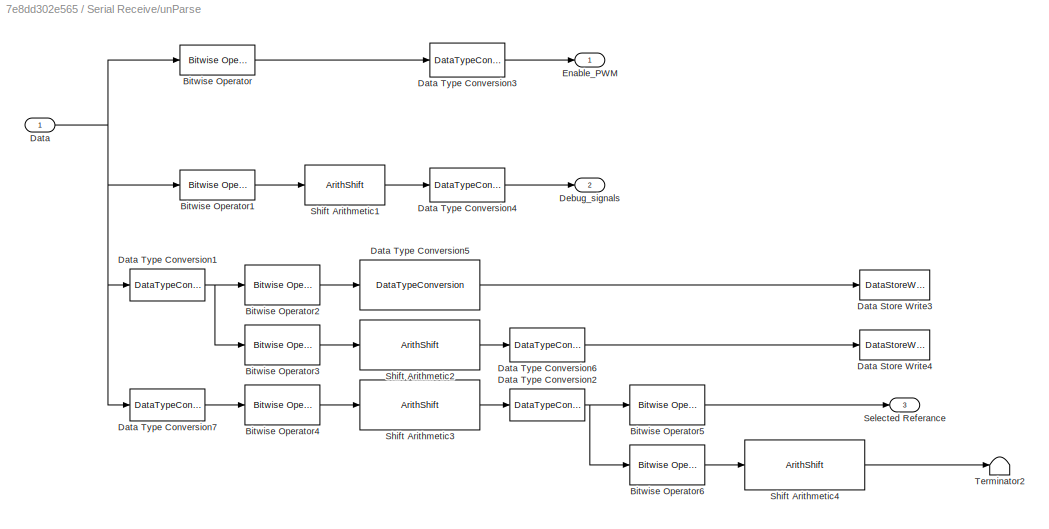
BLOCK [SubSystem] Serial Receive/unParse
BLOCK [Reference] Serial Receive/unParse/Bitwise Operator  REF=simulink/Logic and Bit
Operations/Bitwise
Operator
  SourceBlock = simulink/Logic and Bit\nOperations/Bitwise\nOperator
  SourceType = Bitwise Operator
BLOCK [Reference] Serial Receive/unParse/Bitwise Operator1  REF=simulink/Logic and Bit
Operations/Bitwise
Operator
  SourceBlock = simulink/Logic and Bit\nOperations/Bitwise\nOperator
  SourceType = Bitwise Operator
BLOCK [Reference] Serial Receive/unParse/Bitwise Operator2  REF=simulink/Logic and Bit
Operations/Bitwise
Operator
  SourceBlock = simulink/Logic and Bit\nOperations/Bitwise\nOperator
  SourceType = Bitwise Operator
BLOCK [Reference] Serial Receive/unParse/Bitwise Operator3  REF=simulink/Logic and Bit
Operations/Bitwise
Operator
  SourceBlock = simulink/Logic and Bit\nOperations/Bitwise\nOperator
  SourceType = Bitwise Operator
BLOCK [Reference] Serial Receive/unParse/Bitwise Operator4  REF=simulink/Logic and Bit
Operations/Bitwise
Operator
  SourceBlock = simulink/Logic and Bit\nOperations/Bitwise\nOperator
  SourceType = Bitwise Operator
BLOCK [Reference] Serial Receive/unParse/Bitwise Operator5  REF=simulink/Logic and Bit
Operations/Bitwise
Operator
  SourceBlock = simulink/Logic and Bit\nOperations/Bitwise\nOperator
  SourceType = Bitwise Operator
BLOCK [Reference] Serial Receive/unParse/Bitwise Operator6  REF=simulink/Logic and Bit
Operations/Bitwise
Operator
  SourceBlock = simulink/Logic and Bit\nOperations/Bitwise\nOperator
  SourceType = Bitwise Operator
BLOCK [Inport] Serial Receive/unParse/Data
BLOCK [DataStoreWrite] Serial Receive/unParse/Data Store Write3
  DataStoreName = Enable
  IndexOptions = Index vector (dialog)
  Indices = 1
  OutputSizes = 1
BLOCK [DataStoreWrite] Serial Receive/unParse/Data Store Write4
  DataStoreName = Debug_signals
  IndexOptions = Index vector (dialog)
  Indices = 1
  OutputSizes = 1
BLOCK [DataTypeConversion] Serial Receive/unParse/Data Type Conversion1
  OutDataTypeStr = uint32
  RndMeth = Simplest
  SaturateOnIntegerOverflow = off
BLOCK [DataTypeConversion] Serial Receive/unParse/Data Type Conversion2
  OutDataTypeStr = uint16
  RndMeth = Simplest
  SaturateOnIntegerOverflow = off
BLOCK [DataTypeConversion] Serial Receive/unParse/Data Type Conversion3
  OutDataTypeStr = boolean
  RndMeth = Simplest
  SaturateOnIntegerOverflow = off
BLOCK [DataTypeConversion] Serial Receive/unParse/Data Type Conversion4
  NameLocation = left
  OutDataTypeStr = uint16
  RndMeth = Simplest
  SaturateOnIntegerOverflow = off
BLOCK [DataTypeConversion] Serial Receive/unParse/Data Type Conversion5
  OutDataTypeStr = boolean
  RndMeth = Simplest
  SaturateOnIntegerOverflow = off
BLOCK [DataTypeConversion] Serial Receive/unParse/Data Type Conversion6
  NameLocation = left
  OutDataTypeStr = uint16
  RndMeth = Simplest
  SaturateOnIntegerOverflow = off
BLOCK [DataTypeConversion] Serial Receive/unParse/Data Type Conversion7
  OutDataTypeStr = uint32
  RndMeth = Simplest
  SaturateOnIntegerOverflow = off
BLOCK [Outport] Serial Receive/unParse/Debug_signals
  Port = 2
BLOCK [Outport] Serial Receive/unParse/Enable_PWM
BLOCK [Outport] Serial Receive/unParse/Selected Referance 
  Port = 3
BLOCK [ArithShift] Serial Receive/unParse/Shift Arithmetic1
  BitShiftNumber = 4
  InputPortMap = u0
BLOCK [ArithShift] Serial Receive/unParse/Shift Arithmetic2
  BitShiftNumber = 4
  InputPortMap = u0
BLOCK [ArithShift] Serial Receive/unParse/Shift Arithmetic3
  BitShiftDirection = Right
  BitShiftNumber = 16
  InputPortMap = u0
BLOCK [ArithShift] Serial Receive/unParse/Shift Arithmetic4
  BitShiftNumber = 4
  InputPortMap = u0
BLOCK [Terminator] Serial Receive/unParse/Terminator2
BLOCK [SliderBlock] Slider
  ScaleMax = 300
BLOCK [SubSystem] Speed Control
  RTWSystemCode = Reusable function
  SystemSampleTime = Ts_speed
  TreatAsAtomicUnit = on
BLOCK [Constant] Speed Control/Id_ref
  OutDataTypeStr = dataType
  SampleTime = Ts_speed
  Value = 0
BLOCK [Outport] Speed Control/IdqRef_PU
  VectorParamsAs1DForOutWhenUnconnected = off
BLOCK [Mux] Speed Control/Mux1
  DisplayOption = bar
  Inputs = 2
BLOCK [SubSystem] Speed Control/PI_Controller_Speed
BLOCK [Constant] Speed Control/PI_Controller_Speed/Constant
  OutDataTypeStr = single
  SampleTime = -1
  Value = 4.492864543632269
BLOCK [Constant] Speed Control/PI_Controller_Speed/Constant1
  OutDataTypeStr = single
  SampleTime = -1
  Value = 0.02375325838474775
BLOCK [Constant] Speed Control/PI_Controller_Speed/Constant2
  OutDataTypeStr = single
  SampleTime = -1
  Value = 0
BLOCK [DataStoreRead] Speed Control/PI_Controller_Speed/Data Store Read2
  DataStoreName = Enable
  IndexOptions = Index vector (dialog)
  Indices = 1
  OutputSizes = 1
BLOCK [Demux] Speed Control/PI_Controller_Speed/Demux
  Outputs = 2
BLOCK [Reference] Speed Control/PI_Controller_Speed/Discrete PI Controller with anti-windup & reset  REF=slpidlib/PID Controller
  LibrarySourceBlock = mcbcontrolslib/PI Controller
  SourceBlock = slpidlib/PID Controller
  SourceType = PID 1dof
BLOCK [Outport] Speed Control/PI_Controller_Speed/Iq_ref
  VectorParamsAs1DForOutWhenUnconnected = off
BLOCK [Constant] Speed Control/PI_Controller_Speed/Ki2
  NameLocation = top
  OutDataTypeStr = dataType
  SampleTime = -1
  Value = 0
BLOCK [Constant] Speed Control/PI_Controller_Speed/Ki3
  NameLocation = top
  OutDataTypeStr = dataType
  SampleTime = -1
  Value = PI_params.Ki_speed*Ts_speed
BLOCK [Constant] Speed Control/PI_Controller_Speed/Kp2
  NameLocation = top
  OutDataTypeStr = dataType
  SampleTime = -1
  Value = PI_params.Kp_speed
BLOCK [Logic] Speed Control/PI_Controller_Speed/Logical Operator
  AllPortsSameDT = off
  IconShape = distinctive
  Operator = NOT
  OutDataTypeStr = boolean
BLOCK [Mux] Speed Control/PI_Controller_Speed/Mux
  DisplayOption = bar
  Inputs = 2
BLOCK [Mux] Speed Control/PI_Controller_Speed/Mux1
  DisplayOption = bar
  Inputs = 2
BLOCK [Inport] Speed Control/PI_Controller_Speed/N_fb
  Port = 2
BLOCK [Inport] Speed Control/PI_Controller_Speed/N_ref
BLOCK [Sum] Speed Control/PI_Controller_Speed/Sum
  AccumDataTypeStr = Inherit: Same as first input
  Inputs = |+-
  RndMeth = Round
BLOCK [Switch] Speed Control/PI_Controller_Speed/Switch
  Criteria = u2 > Threshold
  InputSameDT = off
  OutDataTypeStr = single
  SaturateOnIntegerOverflow = off
BLOCK [Reference] Speed Control/PI_Controller_Speed/Zero_Cancellation  REF=mcbcontrolslib/IIR Filter
  SourceBlock = mcbcontrolslib/IIR Filter
  SourceType = IIR Filter
BLOCK [Inport] Speed Control/Speed_Meas_PU
  Port = 2
BLOCK [Inport] Speed Control/Speed_Ref_PU
BLOCK [SubSystem] Speed Control/Speed_Ref_Selector
BLOCK [DataStoreRead] Speed Control/Speed_Ref_Selector/Data Store Read1
  DataStoreName = Enable
  IndexOptions = Index vector (dialog)
  Indices = 1
  OutputSizes = 1
BLOCK [Inport] Speed Control/Speed_Ref_Selector/Speed_Ref_In
BLOCK [Inport] Speed Control/Speed_Ref_Selector/Speed_Ref_Open
  Port = 2
BLOCK [Outport] Speed Control/Speed_Ref_Selector/Speed_Ref_PU
BLOCK [Switch] Speed Control/Speed_Ref_Selector/Switch
  Criteria = u2 > Threshold
  InputSameDT = off
  SaturateOnIntegerOverflow = off
  Threshold = 0.5
BLOCK [SubSystem] System Initialize
  CopyFcn = cccopyfcn(gcb)
  OpenFcn = ccopenfcn('System Initialize Function')
BLOCK [ToggleSwitchBlock] Toggle Switch
BLOCK [ToggleSwitchBlock] Toggle Switch1
  LabelPosition = Bottom
BLOCK [ToggleSwitchBlock] Toggle Switch2
  LabelPosition = Bottom
BLOCK [ToggleSwitchBlock] Toggle Switch3
  LabelPosition = Bottom
BLOCK [ToggleSwitchBlock] Toggle Switch4
BLOCK [ToggleSwitchBlock] Toggle Switch5
BLOCK [ToggleSwitchBlock] Toggle Switch6
BLOCK [ToggleSwitchBlock] Toggle Switch7
BLOCK [SubSystem] Triggered Subsystem
  SystemSampleTime = 0.01
  TreatAsAtomicUnit = on
BLOCK [SubSystem] Triggered Subsystem/System Update
  CopyFcn = cccopyfcn(gcb)
  OpenFcn = ccopenfcn('System Update Function')
BLOCK [SubSystem] WRITE
  TreatAsAtomicUnit = on
BLOCK [SubSystem] WRITE-CALL
  NameLocation = right
  TreatAsAtomicUnit = on
BLOCK [SubSystem] WRITE-CALL/Chart
  Commented = on
  ErrorFcn = Stateflow.Translate.translate
  PermitHierarchicalResolution = ExplicitOnly
  SFBlockType = Chart
  TreatAsAtomicUnit = on
BLOCK [Demux] WRITE-CALL/Chart/ Demux 
  Outputs = 1
BLOCK [Ground] WRITE-CALL/Chart/ Ground 
BLOCK [S-Function] WRITE-CALL/Chart/ SFunction 
  EnableBusSupport = on
  FunctionName = sf_sfun
  PortCounts = [1 2]
  SFcnIsStateOwnerBlock = off
  SFunctionDeploymentMode = off
  Tag = Stateflow S-Function 7
BLOCK [Terminator] WRITE-CALL/Chart/ Terminator 
BLOCK [Outport] WRITE-CALL/Chart/output
BLOCK [DataStoreRead] WRITE-CALL/Data Store Read1
  DataStoreName = motor_direction
  IndexOptions = Index vector (dialog)
  Indices = 1
  OutputSizes = 1
BLOCK [DataStoreRead] WRITE-CALL/Data Store Read2
  DataStoreName = position_offset
  IndexOptions = Index vector (dialog)
  Indices = 1
  OutputSizes = 1
BLOCK [DataStoreWrite] WRITE-CALL/Data Store Write1
  DataStoreName = CallBackTypeVariable
  IndexOptions = Index vector (dialog)
  Indices = 1
  OutputSizes = 1
BLOCK [Mux] WRITE-CALL/Mux
  DisplayOption = bar
BLOCK [Constant] WRITE-CALL/Read Address
  OutDataTypeStr = uint16
  SampleTime = -1
  Value = [0 0 0]
BLOCK [Constant] WRITE-CALL/Read Command
  OutDataTypeStr = uint16
  SampleTime = -1
  Value = 2
BLOCK [Reference] WRITE-CALL/SPI Transmit  REF=c280xlib/SPI Transmit
  Priority = 1
  SourceBlock = c280xlib/SPI Transmit
  SourceType = codertarget.tic2000.blocks.SPIWrite
BLOCK [Scope] WRITE-CALL/Scope
  Commented = on
  Floating = off
  NumInputPorts = 1
  ScopeSpecificationString = Simulink.scopes.TimeScopeBlockCfg('CurrentConfiguration', extmgr.ConfigurationSet(extmgr.Configuration('Core','General UI',true),extmgr.Configuration('Core','Source UI',true),extmgr.Configuration('Sources','WiredSimulink',true,'DataLoggingVariableName','ScopeData2'),extmgr.Configuration('Visuals','Time Domain',true,'SerializedDisplays',{struct('MinYLimReal','0.9','MaxYLimReal','1.1','YLabelReal','...<+1686ch>
BLOCK [Constant] WRITE-CALL/commad
  OutDataTypeStr = uint16
  SampleTime = -1
  Value = 3
BLOCK [TriggerPort] WRITE-CALL/function
  StatesWhenEnabling = held
  TriggerType = function-call
  VariantControl = (inherit)
BLOCK [Constant] WRITE/Constant
  OutDataTypeStr = boolean
  SampleTime = -1
BLOCK [DataStoreWrite] WRITE/Data Store Write1
  DataStoreName = All_Parameter_Write
  IndexOptions = Index vector (dialog)
  Indices = 1
  OutputSizes = 1
BLOCK [TriggerPort] WRITE/Trigger
  StatesWhenEnabling = held
  VariantControl = (inherit)
BLOCK [SubSystem] untitledPanel
  IsWebBlockPanel = on
  Tag = HiddenForWebPanel
BLOCK [SliderBlock] untitledPanel/Slider
  PanelInfo = {"addnFilesFolder":"","height":50,"includeDebugPackages":false,"left":18,"outputFolder":"","panelId":"panelId-13a995d7-367b-4ece-a822-516db81000d9","popoutMode":"","standaloneTitle":"","top":18,"type":"panelChild","version":"2019b","width":431,"zIndex":1500004}
  ScaleMax = 0.3
  Tag = HiddenForWebPanel
BLOCK [SliderBlock] untitledPanel/Slider1
  PanelInfo = {"addnFilesFolder":"","height":63,"includeDebugPackages":false,"left":18,"outputFolder":"","panelId":"panelId-13a995d7-367b-4ece-a822-516db81000d9","popoutMode":"","standaloneTitle":"","top":93,"type":"panelChild","version":"2019b","width":431,"zIndex":1500002}
  ScaleMax = 0.0005
  Tag = HiddenForWebPanel
BLOCK [PanelWebBlock] untitledPanel/panelInfo
  PanelInfo = {"addnFilesFolder":"","compacted":false,"height":178,"includeDebugPackages":false,"isActiveTab":true,"left":192,"name":"Panel","outputFolder":"","panelId":"panelId-13a995d7-367b-4ece-a822-516db81000d9","popoutData":{"height":241,"left":224,"maximized":false,"top":460,"width":484},"popoutMode":"windowHidden","standaloneTitle":"","tabIndex":0,"tabbedSetId":"tabbedSet0732174381","top":292,"type":"pan...<+66ch>
  Tag = HiddenForWebPanel
BLOCK [SubSystem] untitledPanel1
  IsWebBlockPanel = on
  Tag = HiddenForWebPanel
BLOCK [SliderBlock] untitledPanel1/Speed Parameter Ki
  PanelInfo = {"addnFilesFolder":"","height":48,"includeDebugPackages":false,"left":14,"outputFolder":"","panelId":"panelId-88cac932-804f-4600-bfbb-f4f508c556e5","popoutMode":"","standaloneTitle":"","top":94,"type":"panelChild","version":"2019b","width":373,"zIndex":1500002}
  ScaleMax = 0.1
  Tag = HiddenForWebPanel
BLOCK [SliderBlock] untitledPanel1/Speed Parameter Kp
  PanelInfo = {"addnFilesFolder":"","height":48,"includeDebugPackages":false,"left":14,"outputFolder":"","panelId":"panelId-88cac932-804f-4600-bfbb-f4f508c556e5","popoutMode":"","standaloneTitle":"","top":14,"type":"panelChild","version":"2019b","width":373,"zIndex":1500004}
  ScaleMax = 10
  Tag = HiddenForWebPanel
BLOCK [PanelWebBlock] untitledPanel1/panelInfo
  PanelInfo = {"addnFilesFolder":"","compacted":true,"height":158,"includeDebugPackages":false,"isActiveTab":true,"left":15,"name":"Panel1","outputFolder":"","panelId":"panelId-88cac932-804f-4600-bfbb-f4f508c556e5","popoutMode":"","standaloneTitle":"","tabIndex":0,"tabbedSetId":"tabbedSet0923835679","top":12,"type":"panel","version":"2019b","visible":true,"width":401,"zIndex":1500004}
  PanelSnapshot = iVBORw0KGgoAAAANSUhEUgAAAe0AAAC/CAYAAADThYSzAAAACXBIWXMAABJ0AAASdAHeZh94AAAgAElEQVR4nO3deVxU5f4H8GcWloGBYUcQlGUEETdicUVwKc00NXDrp2mkaOqvci/zptdcrrlkN9MSM81SMC0RrpTe1LguaCqoLIKCCgjIMswMszLb748b/dCUmcMszJHP+/XyD2ee7znf5xk4nzkzZwZGlU53lQAAAIDVY3Z0AwAAAGAYhDYAAABNILQBAABoAqENAABAEwhtAAAAmkBoAwAA0ARCGwAAgCYQ2gAAADSB0AYAAKAJhDYAAABNILQBAABoAqENAABAEwhtAAAAmkBoAwAA0ARCGwAAgCYQ2gAUFN+65bBp+XJ+8oQJ/ZMnTOi/...<+12484ch>
  Tag = HiddenForWebPanel
BLOCK [SubSystem] untitledPanel2
  IsWebBlockPanel = on
  Tag = HiddenForWebPanel
BLOCK [SliderBlock] untitledPanel2/Slider
  PanelInfo = {"addnFilesFolder":"","height":59,"includeDebugPackages":false,"left":13,"outputFolder":"","panelId":"panelId-704216e3-3f83-4780-91a6-1b031308e76c","popoutMode":"","standaloneTitle":"","top":13,"type":"panelChild","version":"2019b","width":282,"zIndex":1500004}
  ScaleMax = 5
  Tag = HiddenForWebPanel
BLOCK [SliderBlock] untitledPanel2/Slider1
  PanelInfo = {"addnFilesFolder":"","height":59,"includeDebugPackages":false,"left":13,"outputFolder":"","panelId":"panelId-704216e3-3f83-4780-91a6-1b031308e76c","popoutMode":"","standaloneTitle":"","top":79,"type":"panelChild","version":"2019b","width":282,"zIndex":1500002}
  ScaleMax = 0.5
  Tag = HiddenForWebPanel
BLOCK [PanelWebBlock] untitledPanel2/panelInfo
  PanelInfo = {"addnFilesFolder":"","compacted":true,"height":155,"includeDebugPackages":false,"isActiveTab":true,"left":94,"name":"Panel2","outputFolder":"","panelId":"panelId-704216e3-3f83-4780-91a6-1b031308e76c","popoutMode":"","standaloneTitle":"","tabIndex":0,"tabbedSetId":"tabbedSet4448288332","top":9,"type":"panel","version":"2019b","visible":true,"width":310,"zIndex":1500006}
  PanelSnapshot = iVBORw0KGgoAAAANSUhEUgAAAX0AAAC6CAYAAABC453pAAAACXBIWXMAABJ0AAASdAHeZh94AAAgAElEQVR4nO3deVQT99oH8F82SCAQISyyaYCIIlqxLCqKIF201brUBW21tVSxWt/eVrGLeuopveptXWpPe7VV27r0Klq9VeHW1rZSeb1q3UBlERRUwh4J2ROWZN4/3tKDVoGQSUKc7+ccz6mT4fc8D4nfDDPTwKqhqIsEAAAeaWazmdvU2DiA7ehGAADA9thsdhshhCD0AQAYBKEPAMAgCH0AAAZB6AMAMAhCHwCAQRD6AAAMgtAHAGAQhD4AAIMg9AEAGAShDwDAIAh9AAAGQegDADAIQh9oUXrtmtv6FSuk6VOmRKdPmRK9LiNDWlFWJrBl...<+10688ch>
  Tag = HiddenForWebPanel
BLOCK [SubSystem] untitledPanel3
  IsWebBlockPanel = on
  Tag = HiddenForWebPanel
BLOCK [SliderBlock] untitledPanel3/Slider
  PanelInfo = {"addnFilesFolder":"","height":61,"includeDebugPackages":false,"left":16,"outputFolder":"","panelId":"panelId-880ba189-6bb5-44bd-a37f-51b687412f3f","popoutMode":"","standaloneTitle":"","top":15,"type":"panelChild","version":"2019b","width":291,"zIndex":1500004}
  ScaleMax = 5
  Tag = HiddenForWebPanel
BLOCK [SliderBlock] untitledPanel3/Slider1
  PanelInfo = {"addnFilesFolder":"","height":61,"includeDebugPackages":false,"left":16,"outputFolder":"","panelId":"panelId-880ba189-6bb5-44bd-a37f-51b687412f3f","popoutMode":"","standaloneTitle":"","top":85,"type":"panelChild","version":"2019b","width":291,"zIndex":1500002}
  ScaleMax = 0.5
  Tag = HiddenForWebPanel
BLOCK [PanelWebBlock] untitledPanel3/panelInfo
  PanelInfo = {"addnFilesFolder":"","compacted":true,"height":165,"includeDebugPackages":false,"isActiveTab":true,"left":162,"name":"Panel3","outputFolder":"","panelId":"panelId-880ba189-6bb5-44bd-a37f-51b687412f3f","popoutMode":"","standaloneTitle":"","tabIndex":0,"tabbedSetId":"tabbedSet4341935357","top":9,"type":"panel","version":"2019b","visible":true,"width":326,"zIndex":1500008}
  PanelSnapshot = iVBORw0KGgoAAAANSUhEUgAAAZEAAADGCAYAAAAT3b2sAAAACXBIWXMAABJ0AAASdAHeZh94AAAgAElEQVR4nO3deVRU9f8/8PdswMDACMMimw4woogmxqKiCNKiZbnkgpamkWKa3z6l2KKePNFH/ZRLduqjpVZafRVNP6n4zTIT44tobqCyCArKvgwMM8NswMzc3x/f6IdLMHOZewc4z8c5nlMzl/t8v5hxnsy914FTQ1FXCAAAgBXMZjO/ualpCNfeCwEAgL6Hy+UaCSEEJQIAALShRAAAgDaUCAAA0IYSAQAA2lAiAABAG0oEAABoQ4kAAABtKBEAAKANJQIAALShRAAAgDaUCAAA0IYSAQAA2lAiAABAG0oEAABoQ4kAAABtKBFgTfHNm86b...<+10740ch>
  Tag = HiddenForWebPanel
ANNOTATION (root): Notes: SCIA: RLS Communication SCIB: Empty SCIC: Monitor Tune Com. SCID: Host Communication
ANNOTATION Current Control/Control_System: ID
ANNOTATION Current Control/Control_System: IQ
ANNOTATION Current Control/Inverter/Code Generation: System Outputs
ANNOTATION Current Control/Inverter/Code Generation: for inverter connected with LaunchXL-28379D
ANNOTATION Current Control/SCI_Tx/Code Generation/Data_Logging: Fast Serial Data Monitoring (32-bit)
ANNOTATION Hardware Init: Power UP Regulator
ANNOTATION Inverter and Motor - Plant Model/Simulation/Sensor_Measurements: Delays
ANNOTATION Inverter and Motor - Plant Model/Simulation/Sensor_Measurements: Scaling
ANNOTATION Read EEPROM Data: ENABLE-CALL
ANNOTATION Read EEPROM Data: ERASE-CALL
ANNOTATION Read EEPROM Data: ID-READ-CALL
ANNOTATION Read EEPROM Data: READ-CALL
ANNOTATION Read EEPROM Data: WRITE-CALL
LINE Chart:1 -> Goto2:1
LINE Constant1:1 -> Gain1:1
LINE Constant2:1 -> Data Store Write:1
LINE Constant3:1 -> READ:trigger
LINE Constant4:1 -> WRITE:trigger
LINE Constant5:1 -> Main_Algorithm1:1
LINE Constant6:1 -> Multiport Switch1:1
LINE Constant7:1 -> ERASE:trigger
LINE Constant8:1 -> EEPROM_Operation_Function:1
LINE Constant9:1 -> Data Store Write3:1
LINE Constant:1 -> Multiport Switch:4
LINE Current Control/Control_System/Chart1:1 -> Current Control/Control_System/Sensor_Offset_Algorithm:2
LINE Current Control/Control_System/Clarke Transform:1 -> Current Control/Control_System/Park Transform:1
LINE Current Control/Control_System/Clarke Transform:2 -> Current Control/Control_System/Park Transform:2
LINE Current Control/Control_System/Constant2:1 -> Current Control/Control_System/Manual Electrical Angle PU:1
LINE Current Control/Control_System/Constant:1 -> Current Control/Control_System/Multiport Switch:4
LINE Current Control/Control_System/Current_Controllers/DQ Limiter:1 -> Current Control/Control_System/Current_Controllers/Vd_ref:1
LINE Current Control/Control_System/Current_Controllers/DQ Limiter:2 -> Current Control/Control_System/Current_Controllers/Vq_ref:1
LINE Current Control/Control_System/Current_Controllers/DQ Limiter:3 -> Current Control/Control_System/Current_Controllers/Terminator:1
NET Current Control/Control_System/Current_Controllers/Demux:1 -> Current Control/Control_System/Current_Controllers/Mux:1, Current Control/Control_System/Current_Controllers/PI_Controller_Id:1
NET Current Control/Control_System/Current_Controllers/Demux:2 -> Current Control/Control_System/Current_Controllers/Mux:3, Current Control/Control_System/Current_Controllers/PI_Controller_Iq:1
NET Current Control/Control_System/Current_Controllers/Id:1 -> Current Control/Control_System/Current_Controllers/Mux:2, Current Control/Control_System/Current_Controllers/PI_Controller_Id:2
LINE Current Control/Control_System/Current_Controllers/Idq_ref_PU:1 -> Current Control/Control_System/Current_Controllers/Demux:1
NET Current Control/Control_System/Current_Controllers/Iq:1 -> Current Control/Control_System/Current_Controllers/Mux:4, Current Control/Control_System/Current_Controllers/PI_Controller_Iq:2
LINE Current Control/Control_System/Current_Controllers/Mux:1 -> Current Control/Control_System/Current_Controllers/Idq:1
LINE Current Control/Control_System/Current_Controllers/PI_Controller_Id/Constant1:1 -> Current Control/Control_System/Current_Controllers/PI_Controller_Id/Mux1:2
LINE Current Control/Control_System/Current_Controllers/PI_Controller_Id/Constant2:1 -> Current Control/Control_System/Current_Controllers/PI_Controller_Id/Switch:2
LINE Current Control/Control_System/Current_Controllers/PI_Controller_Id/Constant:1 -> Current Control/Control_System/Current_Controllers/PI_Controller_Id/Mux1:1
LINE Current Control/Control_System/Current_Controllers/PI_Controller_Id/Data Store Read1:1 -> Current Control/Control_System/Current_Controllers/PI_Controller_Id/Logical Operator:1
LINE Current Control/Control_System/Current_Controllers/PI_Controller_Id/Demux:1 -> Current Control/Control_System/Current_Controllers/PI_Controller_Id/Discrete PI Controller with anti-windup & reset:2
LINE Current Control/Control_System/Current_Controllers/PI_Controller_Id/Demux:2 -> Current Control/Control_System/Current_Controllers/PI_Controller_Id/Discrete PI Controller with anti-windup & reset:3
LINE Current Control/Control_System/Current_Controllers/PI_Controller_Id/Discrete PI Controller with anti-windup & reset:1 -> Current Control/Control_System/Current_Controllers/PI_Controller_Id/V_ref:1
LINE Current Control/Control_System/Current_Controllers/PI_Controller_Id/I_fb:1 -> Current Control/Control_System/Current_Controllers/PI_Controller_Id/Sum:2
LINE Current Control/Control_System/Current_Controllers/PI_Controller_Id/I_ref:1 -> Current Control/Control_System/Current_Controllers/PI_Controller_Id/Sum:1
LINE Current Control/Control_System/Current_Controllers/PI_Controller_Id/Ki1:1 -> Current Control/Control_System/Current_Controllers/PI_Controller_Id/Discrete PI Controller with anti-windup & reset:5
LINE Current Control/Control_System/Current_Controllers/PI_Controller_Id/Ki:1 -> Current Control/Control_System/Current_Controllers/PI_Controller_Id/Mux:2
LINE Current Control/Control_System/Current_Controllers/PI_Controller_Id/Kp:1 -> Current Control/Control_System/Current_Controllers/PI_Controller_Id/Mux:1
LINE Current Control/Control_System/Current_Controllers/PI_Controller_Id/Logical Operator:1 -> Current Control/Control_System/Current_Controllers/PI_Controller_Id/Discrete PI Controller with anti-windup & reset:4
LINE Current Control/Control_System/Current_Controllers/PI_Controller_Id/Mux1:1 -> Current Control/Control_System/Current_Controllers/PI_Controller_Id/Switch:3
LINE Current Control/Control_System/Current_Controllers/PI_Controller_Id/Mux:1 -> Current Control/Control_System/Current_Controllers/PI_Controller_Id/Switch:1
LINE Current Control/Control_System/Current_Controllers/PI_Controller_Id/Sum:1 -> Current Control/Control_System/Current_Controllers/PI_Controller_Id/Discrete PI Controller with anti-windup & reset:1
LINE Current Control/Control_System/Current_Controllers/PI_Controller_Id/Switch:1 -> Current Control/Control_System/Current_Controllers/PI_Controller_Id/Demux:1
LINE Current Control/Control_System/Current_Controllers/PI_Controller_Id:1 -> Current Control/Control_System/Current_Controllers/DQ Limiter:1
LINE Current Control/Control_System/Current_Controllers/PI_Controller_Iq/Constant1:1 -> Current Control/Control_System/Current_Controllers/PI_Controller_Iq/Mux1:2
LINE Current Control/Control_System/Current_Controllers/PI_Controller_Iq/Constant2:1 -> Current Control/Control_System/Current_Controllers/PI_Controller_Iq/Switch:2
LINE Current Control/Control_System/Current_Controllers/PI_Controller_Iq/Constant:1 -> Current Control/Control_System/Current_Controllers/PI_Controller_Iq/Mux1:1
LINE Current Control/Control_System/Current_Controllers/PI_Controller_Iq/Data Store Read1:1 -> Current Control/Control_System/Current_Controllers/PI_Controller_Iq/Logical Operator:1
LINE Current Control/Control_System/Current_Controllers/PI_Controller_Iq/Demux:1 -> Current Control/Control_System/Current_Controllers/PI_Controller_Iq/Discrete PI Controller with anti-windup & reset:2
LINE Current Control/Control_System/Current_Controllers/PI_Controller_Iq/Demux:2 -> Current Control/Control_System/Current_Controllers/PI_Controller_Iq/Discrete PI Controller with anti-windup & reset:3
LINE Current Control/Control_System/Current_Controllers/PI_Controller_Iq/Discrete PI Controller with anti-windup & reset:1 -> Current Control/Control_System/Current_Controllers/PI_Controller_Iq/V_ref:1
LINE Current Control/Control_System/Current_Controllers/PI_Controller_Iq/I_fb:1 -> Current Control/Control_System/Current_Controllers/PI_Controller_Iq/Sum:2
LINE Current Control/Control_System/Current_Controllers/PI_Controller_Iq/I_ref:1 -> Current Control/Control_System/Current_Controllers/PI_Controller_Iq/Sum:1
LINE Current Control/Control_System/Current_Controllers/PI_Controller_Iq/Ki:1 -> Current Control/Control_System/Current_Controllers/PI_Controller_Iq/Mux:2
LINE Current Control/Control_System/Current_Controllers/PI_Controller_Iq/Kp1:1 -> Current Control/Control_System/Current_Controllers/PI_Controller_Iq/Discrete PI Controller with anti-windup & reset:5
LINE Current Control/Control_System/Current_Controllers/PI_Controller_Iq/Kp:1 -> Current Control/Control_System/Current_Controllers/PI_Controller_Iq/Mux:1
LINE Current Control/Control_System/Current_Controllers/PI_Controller_Iq/Logical Operator:1 -> Current Control/Control_System/Current_Controllers/PI_Controller_Iq/Discrete PI Controller with anti-windup & reset:4
LINE Current Control/Control_System/Current_Controllers/PI_Controller_Iq/Mux1:1 -> Current Control/Control_System/Current_Controllers/PI_Controller_Iq/Switch:3
LINE Current Control/Control_System/Current_Controllers/PI_Controller_Iq/Mux:1 -> Current Control/Control_System/Current_Controllers/PI_Controller_Iq/Switch:1
LINE Current Control/Control_System/Current_Controllers/PI_Controller_Iq/Sum:1 -> Current Control/Control_System/Current_Controllers/PI_Controller_Iq/Discrete PI Controller with anti-windup & reset:1
LINE Current Control/Control_System/Current_Controllers/PI_Controller_Iq/Switch:1 -> Current Control/Control_System/Current_Controllers/PI_Controller_Iq/Demux:1
LINE Current Control/Control_System/Current_Controllers/PI_Controller_Iq:1 -> Current Control/Control_System/Current_Controllers/DQ Limiter:2
LINE Current Control/Control_System/Current_Controllers:1 -> Current Control/Control_System/Inverse Park Transform:1
LINE Current Control/Control_System/Current_Controllers:2 -> Current Control/Control_System/Inverse Park Transform:2
LINE Current Control/Control_System/Current_Controllers:3 -> Current Control/Control_System/Idq_debug:1
LINE Current Control/Control_System/Data Store Read1:1 -> Current Control/Control_System/Chart1:1
LINE Current Control/Control_System/Data Store Read2:1 -> Current Control/Control_System/Switch1:2
LINE Current Control/Control_System/Data Store Read:1 -> Current Control/Control_System/Multiport Switch:1
LINE Current Control/Control_System/Data Type Conversion:1 -> Current Control/Control_System/Data Store Write1:1
LINE Current Control/Control_System/Demux:1 -> Current Control/Control_System/Clarke Transform:1
LINE Current Control/Control_System/Demux:2 -> Current Control/Control_System/Clarke Transform:2
LINE Current Control/Control_System/Direction_Finder_Algorithm/Position:1 -> Current Control/Control_System/Direction_Finder_Algorithm/directionFinder:1
LINE Current Control/Control_System/Direction_Finder_Algorithm/deBounce:1 -> Current Control/Control_System/Direction_Finder_Algorithm/Output:1
LINE Current Control/Control_System/Direction_Finder_Algorithm/directionFinder:1 -> Current Control/Control_System/Direction_Finder_Algorithm/deBounce:1
NET Current Control/Control_System/Direction_Finder_Algorithm:1 -> Current Control/Control_System/Data Store Write3:1, Current Control/Control_System/Display:1
LINE Current Control/Control_System/Enable1:1 -> Current Control/Control_System/Mux:1
LINE Current Control/Control_System/Enable2:1 -> Current Control/Control_System/Data Store Write4:1
LINE Current Control/Control_System/Enable3:1 -> Current Control/Control_System/Data Store Write2:1
LINE Current Control/Control_System/Enable6:1 -> Current Control/Control_System/Mux:2
LINE Current Control/Control_System/From1:1 -> Current Control/Control_System/Inverse Park Transform:4
LINE Current Control/Control_System/From2:1 -> Current Control/Control_System/Multiport Switch:2
LINE Current Control/Control_System/From3:1 -> Current Control/Control_System/Gain:1
LINE Current Control/Control_System/From4:1 -> Current Control/Control_System/Gain1:1
LINE Current Control/Control_System/From:1 -> Current Control/Control_System/Inverse Park Transform:3
LINE Current Control/Control_System/Gain1:1 -> Current Control/Control_System/Sensor_Offset_Algorithm:1
LINE Current Control/Control_System/Gain2:1 -> Current Control/Control_System/Data Type Conversion:1
LINE Current Control/Control_System/Gain:1 -> Current Control/Control_System/Direction_Finder_Algorithm:1
LINE Current Control/Control_System/Iab_meas_PU:1 -> Current Control/Control_System/Demux:1
LINE Current Control/Control_System/Idq_ref_PU:1 -> Current Control/Control_System/Switch1:1
LINE Current Control/Control_System/Inverse Park Transform:1 -> Current Control/Control_System/Space Vector Generator:1
LINE Current Control/Control_System/Inverse Park Transform:2 -> Current Control/Control_System/Space Vector Generator:2
LINE Current Control/Control_System/Manual Electrical Angle PU:1 -> Current Control/Control_System/Multiport Switch:3
LINE Current Control/Control_System/Multiport Switch:1 -> Current Control/Control_System/Sine-Cosine Lookup:1
LINE Current Control/Control_System/Mux1:1 -> Current Control/Control_System/Vabc in PU:1
LINE Current Control/Control_System/Mux:1 -> Current Control/Control_System/Switch1:3
LINE Current Control/Control_System/Park Transform:1 -> Current Control/Control_System/Current_Controllers:1
LINE Current Control/Control_System/Park Transform:2 -> Current Control/Control_System/Current_Controllers:2
LINE Current Control/Control_System/Pos_PU:1 -> Current Control/Control_System/Goto2:1
LINE Current Control/Control_System/Sensor_Offset_Algorithm:1 -> Current Control/Control_System/Gain2:1
NET Current Control/Control_System/Sine-Cosine Lookup:1 -> Current Control/Control_System/Goto:1, Current Control/Control_System/Park Transform:3
NET Current Control/Control_System/Sine-Cosine Lookup:2 -> Current Control/Control_System/Goto1:1, Current Control/Control_System/Park Transform:4
LINE Current Control/Control_System/Space Vector Generator:1 -> Current Control/Control_System/Mux1:1
LINE Current Control/Control_System/Space Vector Generator:2 -> Current Control/Control_System/Mux1:2
LINE Current Control/Control_System/Space Vector Generator:3 -> Current Control/Control_System/Mux1:3
LINE Current Control/Control_System/Switch1:1 -> Current Control/Control_System/Current_Controllers:3
LINE Current Control/Control_System:1 -> Current Control/Output Scaling:1
LINE Current Control/Control_System:2 -> Current Control/Debug_signals:1
LINE Current Control/Debug_signals/Data Store Read1:1 -> Current Control/Debug_signals/Mux:1
LINE Current Control/Debug_signals/Data Store Read:1 -> Current Control/Debug_signals/Multiport Switch:1
LINE Current Control/Debug_signals/Demux1:1 -> Current Control/Debug_signals/Mux:5
LINE Current Control/Debug_signals/Demux1:2 -> Current Control/Debug_signals/Mux:6
LINE Current Control/Debug_signals/Demux1:3 -> Current Control/Debug_signals/Mux:7
LINE Current Control/Debug_signals/Demux1:4 -> Current Control/Debug_signals/Mux:8
LINE Current Control/Debug_signals/Demux:1 -> Current Control/Debug_signals/Mux:3
LINE Current Control/Debug_signals/Demux:2 -> Current Control/Debug_signals/Mux:4
LINE Current Control/Debug_signals/From:1 -> Current Control/Debug_signals/Mux:2
LINE Current Control/Debug_signals/Ia_Pos:1 -> Current Control/Debug_signals/Multiport Switch:6
LINE Current Control/Debug_signals/Iab:1 -> Current Control/Debug_signals/Multiport Switch:5
LINE Current Control/Debug_signals/Iab_PU:1 -> Current Control/Debug_signals/Demux:1
LINE Current Control/Debug_signals/Id_control:1 -> Current Control/Debug_signals/Multiport Switch:3
LINE Current Control/Debug_signals/Idq_debug:1 -> Current Control/Debug_signals/Demux1:1
LINE Current Control/Debug_signals/Iq_control:1 -> Current Control/Debug_signals/Multiport Switch:4
LINE Current Control/Debug_signals/Mec_Pos:1 -> Current Control/Debug_signals/Multiport Switch:7
LINE Current Control/Debug_signals/Mec_pos:1 -> Current Control/Debug_signals/Mux:10
LINE Current Control/Debug_signals/Multiport Switch:1 -> Current Control/Debug_signals/Selector:2
LINE Current Control/Debug_signals/Mux:1 -> Current Control/Debug_signals/Selector:1
LINE Current Control/Debug_signals/Position:1 -> Current Control/Debug_signals/Mux:9
LINE Current Control/Debug_signals/Selector:1 -> Current Control/Debug_signals/Debug_signal:1
LINE Current Control/Debug_signals/speed_control:1 -> Current Control/Debug_signals/Multiport Switch:2
LINE Current Control/Debug_signals:1 -> Current Control/SCI_Tx:1
LINE Current Control/Iab_Sim:1 -> Current Control/Input Scaling:2
LINE Current Control/Idq_ref_PU:1 -> Current Control/Control_System:3
LINE Current Control/Input Scaling/Read_Sensor (codegen)/Calculate Position from Hall/Add:1 -> Current Control/Input Scaling/Read_Sensor (codegen)/Calculate Position from Hall/Mod:1
LINE Current Control/Input Scaling/Read_Sensor (codegen)/Calculate Position from Hall/Constant1:1 -> Current Control/Input Scaling/Read_Sensor (codegen)/Calculate Position from Hall/Divide:2
LINE Current Control/Input Scaling/Read_Sensor (codegen)/Calculate Position from Hall/Constant2:1 -> Current Control/Input Scaling/Read_Sensor (codegen)/Calculate Position from Hall/Mod:2
LINE Current Control/Input Scaling/Read_Sensor (codegen)/Calculate Position from Hall/Constant:1 -> Current Control/Input Scaling/Read_Sensor (codegen)/Calculate Position from Hall/Add:1
NET Current Control/Input Scaling/Read_Sensor (codegen)/Calculate Position from Hall/Divide:1 -> Current Control/Input Scaling/Read_Sensor (codegen)/Calculate Position from Hall/Mechanical to Electrical Position1:1, Current Control/Input Scaling/Read_Sensor (codegen)/Calculate Position from Hall/Speed Measurement:1, Current Control/Input Scaling/Read_Sensor (codegen)/Calculate Position from Hall/Subsystem:1
LINE Current Control/Input Scaling/Read_Sensor (codegen)/Calculate Position from Hall/Mechanical to Electrical Position1:1 -> Current Control/Input Scaling/Read_Sensor (codegen)/Calculate Position from Hall/Pos_PU:1
LINE Current Control/Input Scaling/Read_Sensor (codegen)/Calculate Position from Hall/Mod:1 -> Current Control/Input Scaling/Read_Sensor (codegen)/Calculate Position from Hall/Divide:1
LINE Current Control/Input Scaling/Read_Sensor (codegen)/Calculate Position from Hall/Pos:1 -> Current Control/Input Scaling/Read_Sensor (codegen)/Calculate Position from Hall/Add:2
LINE Current Control/Input Scaling/Read_Sensor (codegen)/Calculate Position from Hall/Speed Measurement:1 -> Current Control/Input Scaling/Read_Sensor (codegen)/Calculate Position from Hall/Speed_PU:1
NET Current Control/Input Scaling/Read_Sensor (codegen)/Calculate Position from Hall/Subsystem/Add1:1 -> Current Control/Input Scaling/Read_Sensor (codegen)/Calculate Position from Hall/Subsystem/Switch1:2, Current Control/Input Scaling/Read_Sensor (codegen)/Calculate Position from Hall/Subsystem/Switch:1, Current Control/Input Scaling/Read_Sensor (codegen)/Calculate Position from Hall/Subsystem/Switch:2, Current Control/Input Scaling/Read_Sensor (codegen)/Calculate Position from Hall/Subsystem/zero crossing in Anti CW direction:2, Current Control/Input Scaling/Read_Sensor (codegen)/Calculate Position from Hall/Subsystem/zero crossing in CW direction:1
NET Current Control/Input Scaling/Read_Sensor (codegen)/Calculate Position from Hall/Subsystem/Add2:1 -> Current Control/Input Scaling/Read_Sensor (codegen)/Calculate Position from Hall/Subsystem/Delay1:1, Current Control/Input Scaling/Read_Sensor (codegen)/Calculate Position from Hall/Subsystem/Mec_Pos:1
LINE Current Control/Input Scaling/Read_Sensor (codegen)/Calculate Position from Hall/Subsystem/Constant3:1 -> Current Control/Input Scaling/Read_Sensor (codegen)/Calculate Position from Hall/Subsystem/zero crossing in CW direction:2
LINE Current Control/Input Scaling/Read_Sensor (codegen)/Calculate Position from Hall/Subsystem/Constant4:1 -> Current Control/Input Scaling/Read_Sensor (codegen)/Calculate Position from Hall/Subsystem/zero crossing in Anti CW direction:1
LINE Current Control/Input Scaling/Read_Sensor (codegen)/Calculate Position from Hall/Subsystem/Delay1:1 -> Current Control/Input Scaling/Read_Sensor (codegen)/Calculate Position from Hall/Subsystem/Add2:2
LINE Current Control/Input Scaling/Read_Sensor (codegen)/Calculate Position from Hall/Subsystem/Delay:1 -> Current Control/Input Scaling/Read_Sensor (codegen)/Calculate Position from Hall/Subsystem/Add1:2
LINE Current Control/Input Scaling/Read_Sensor (codegen)/Calculate Position from Hall/Subsystem/Switch1:1 -> Current Control/Input Scaling/Read_Sensor (codegen)/Calculate Position from Hall/Subsystem/Add2:1
LINE Current Control/Input Scaling/Read_Sensor (codegen)/Calculate Position from Hall/Subsystem/Switch:1 -> Current Control/Input Scaling/Read_Sensor (codegen)/Calculate Position from Hall/Subsystem/Switch1:3
NET Current Control/Input Scaling/Read_Sensor (codegen)/Calculate Position from Hall/Subsystem/Theta_m:1 -> Current Control/Input Scaling/Read_Sensor (codegen)/Calculate Position from Hall/Subsystem/Add1:1, Current Control/Input Scaling/Read_Sensor (codegen)/Calculate Position from Hall/Subsystem/Delay:1
LINE Current Control/Input Scaling/Read_Sensor (codegen)/Calculate Position from Hall/Subsystem/zero crossing in Anti CW direction:1 -> Current Control/Input Scaling/Read_Sensor (codegen)/Calculate Position from Hall/Subsystem/Switch1:1
LINE Current Control/Input Scaling/Read_Sensor (codegen)/Calculate Position from Hall/Subsystem/zero crossing in CW direction:1 -> Current Control/Input Scaling/Read_Sensor (codegen)/Calculate Position from Hall/Subsystem/Switch:3
LINE Current Control/Input Scaling/Read_Sensor (codegen)/Calculate Position from Hall/Subsystem:1 -> Current Control/Input Scaling/Read_Sensor (codegen)/Calculate Position from Hall/Mec_pos:1
LINE Current Control/Input Scaling/Read_Sensor (codegen)/Calculate Position from Hall:1 -> Current Control/Input Scaling/Read_Sensor (codegen)/Pos_PU:1
LINE Current Control/Input Scaling/Read_Sensor (codegen)/Calculate Position from Hall:2 -> Current Control/Input Scaling/Read_Sensor (codegen)/speed_PU:1
LINE Current Control/Input Scaling/Read_Sensor (codegen)/Calculate Position from Hall:3 -> Current Control/Input Scaling/Read_Sensor (codegen)/Mec_pos:1
LINE Current Control/Input Scaling/Read_Sensor (codegen)/Convert ADC value to PU/Add:1 -> Current Control/Input Scaling/Read_Sensor (codegen)/Convert ADC value to PU/Data_Type:1
LINE Current Control/Input Scaling/Read_Sensor (codegen)/Convert ADC value to PU/Data Store Read1:1 -> Current Control/Input Scaling/Read_Sensor (codegen)/Convert ADC value to PU/Mux:2
LINE Current Control/Input Scaling/Read_Sensor (codegen)/Convert ADC value to PU/Data Store Read:1 -> Current Control/Input Scaling/Read_Sensor (codegen)/Convert ADC value to PU/Mux:1
LINE Current Control/Input Scaling/Read_Sensor (codegen)/Convert ADC value to PU/Data Type Conversion:1 -> Current Control/Input Scaling/Read_Sensor (codegen)/Convert ADC value to PU/Add:2
LINE Current Control/Input Scaling/Read_Sensor (codegen)/Convert ADC value to PU/Data_Type/Data_Type_Fixed_Point/Data Type Conversion1:1 -> Current Control/Input Scaling/Read_Sensor (codegen)/Convert ADC value to PU/Data_Type/Data_Type_Fixed_Point/Iab_meas_PU:1
LINE Current Control/Input Scaling/Read_Sensor (codegen)/Convert ADC value to PU/Data_Type/Data_Type_Fixed_Point/Data Type Conversion:1 -> Current Control/Input Scaling/Read_Sensor (codegen)/Convert ADC value to PU/Data_Type/Data_Type_Fixed_Point/Data Type Conversion1:1
LINE Current Control/Input Scaling/Read_Sensor (codegen)/Convert ADC value to PU/Data_Type/Data_Type_Fixed_Point/In1:1 -> Current Control/Input Scaling/Read_Sensor (codegen)/Convert ADC value to PU/Data_Type/Data_Type_Fixed_Point/Q17 per unit conversion:1
LINE Current Control/Input Scaling/Read_Sensor (codegen)/Convert ADC value to PU/Data_Type/Data_Type_Fixed_Point/Q17 per unit conversion:1 -> Current Control/Input Scaling/Read_Sensor (codegen)/Convert ADC value to PU/Data_Type/Data_Type_Fixed_Point/Data Type Conversion:1
LINE Current Control/Input Scaling/Read_Sensor (codegen)/Convert ADC value to PU/Data_Type/Data_Type_Float/Add1:1 -> Current Control/Input Scaling/Read_Sensor (codegen)/Convert ADC value to PU/Data_Type/Data_Type_Float/Mux:2
LINE Current Control/Input Scaling/Read_Sensor (codegen)/Convert ADC value to PU/Data_Type/Data_Type_Float/Add:1 -> Current Control/Input Scaling/Read_Sensor (codegen)/Convert ADC value to PU/Data_Type/Data_Type_Float/Add1:2
LINE Current Control/Input Scaling/Read_Sensor (codegen)/Convert ADC value to PU/Data_Type/Data_Type_Float/Constant:1 -> Current Control/Input Scaling/Read_Sensor (codegen)/Convert ADC value to PU/Data_Type/Data_Type_Float/Add1:1
NET Current Control/Input Scaling/Read_Sensor (codegen)/Convert ADC value to PU/Data_Type/Data_Type_Float/Demux:1 -> Current Control/Input Scaling/Read_Sensor (codegen)/Convert ADC value to PU/Data_Type/Data_Type_Float/Add:1, Current Control/Input Scaling/Read_Sensor (codegen)/Convert ADC value to PU/Data_Type/Data_Type_Float/Mux:1
LINE Current Control/Input Scaling/Read_Sensor (codegen)/Convert ADC value to PU/Data_Type/Data_Type_Float/Demux:2 -> Current Control/Input Scaling/Read_Sensor (codegen)/Convert ADC value to PU/Data_Type/Data_Type_Float/Add:2
LINE Current Control/Input Scaling/Read_Sensor (codegen)/Convert ADC value to PU/Data_Type/Data_Type_Float/Get ADC Voltage:1 -> Current Control/Input Scaling/Read_Sensor (codegen)/Convert ADC value to PU/Data_Type/Data_Type_Float/Get Currents:1
LINE Current Control/Input Scaling/Read_Sensor (codegen)/Convert ADC value to PU/Data_Type/Data_Type_Float/Get Currents:1 -> Current Control/Input Scaling/Read_Sensor (codegen)/Convert ADC value to PU/Data_Type/Data_Type_Float/Demux:1
LINE Current Control/Input Scaling/Read_Sensor (codegen)/Convert ADC value to PU/Data_Type/Data_Type_Float/In1:1 -> Current Control/Input Scaling/Read_Sensor (codegen)/Convert ADC value to PU/Data_Type/Data_Type_Float/Get ADC Voltage:1
LINE Current Control/Input Scaling/Read_Sensor (codegen)/Convert ADC value to PU/Data_Type/Data_Type_Float/Mux:1 -> Current Control/Input Scaling/Read_Sensor (codegen)/Convert ADC value to PU/Data_Type/Data_Type_Float/PU_Conversion:1
LINE Current Control/Input Scaling/Read_Sensor (codegen)/Convert ADC value to PU/Data_Type/Data_Type_Float/PU_Conversion:1 -> Current Control/Input Scaling/Read_Sensor (codegen)/Convert ADC value to PU/Data_Type/Data_Type_Float/Iab_meas_PU:1
LINE Current Control/Input Scaling/Read_Sensor (codegen)/Convert ADC value to PU/Data_Type:1 -> Current Control/Input Scaling/Read_Sensor (codegen)/Convert ADC value to PU/Inverting // Non-inverting Current measurement amplifieer:1
LINE Current Control/Input Scaling/Read_Sensor (codegen)/Convert ADC value to PU/Iab_meas_ADC:1 -> Current Control/Input Scaling/Read_Sensor (codegen)/Convert ADC value to PU/Data Type Conversion:1
LINE Current Control/Input Scaling/Read_Sensor (codegen)/Convert ADC value to PU/Inverting // Non-inverting Current measurement amplifieer:1 -> Current Control/Input Scaling/Read_Sensor (codegen)/Convert ADC value to PU/Iab_meas_PU:1
LINE Current Control/Input Scaling/Read_Sensor (codegen)/Convert ADC value to PU/Mux:1 -> Current Control/Input Scaling/Read_Sensor (codegen)/Convert ADC value to PU/Add:1
LINE Current Control/Input Scaling/Read_Sensor (codegen)/Convert ADC value to PU:1 -> Current Control/Input Scaling/Read_Sensor (codegen)/Iab_meas_PU:1
LINE Current Control/Input Scaling/Read_Sensor (codegen)/Iab_Sim:1 -> Current Control/Input Scaling/Read_Sensor (codegen)/Terminator:1
LINE Current Control/Input Scaling/Read_Sensor (codegen)/Iab_meas_ADC:1 -> Current Control/Input Scaling/Read_Sensor (codegen)/Convert ADC value to PU:1
LINE Current Control/Input Scaling/Read_Sensor (codegen)/Pos:1 -> Current Control/Input Scaling/Read_Sensor (codegen)/Calculate Position from Hall:1
LINE Current Control/Input Scaling/Read_Sensor (codegen)/Pos_Sim:1 -> Current Control/Input Scaling/Read_Sensor (codegen)/Terminator1:1
LINE Current Control/Input Scaling/Read_Sensor (sim)/Convert ADC value to PU/0A in ADC counts:1 -> Current Control/Input Scaling/Read_Sensor (sim)/Convert ADC value to PU/Add:1
LINE Current Control/Input Scaling/Read_Sensor (sim)/Convert ADC value to PU/Add:1 -> Current Control/Input Scaling/Read_Sensor (sim)/Convert ADC value to PU/Data_Type:1
LINE Current Control/Input Scaling/Read_Sensor (sim)/Convert ADC value to PU/Data Type Conversion:1 -> Current Control/Input Scaling/Read_Sensor (sim)/Convert ADC value to PU/Add:2
LINE Current Control/Input Scaling/Read_Sensor (sim)/Convert ADC value to PU/Data_Type/Data_Type_Fixed_Point/Data Type Conversion1:1 -> Current Control/Input Scaling/Read_Sensor (sim)/Convert ADC value to PU/Data_Type/Data_Type_Fixed_Point/Iab_meas_PU:1
LINE Current Control/Input Scaling/Read_Sensor (sim)/Convert ADC value to PU/Data_Type/Data_Type_Fixed_Point/Data Type Conversion:1 -> Current Control/Input Scaling/Read_Sensor (sim)/Convert ADC value to PU/Data_Type/Data_Type_Fixed_Point/Data Type Conversion1:1
LINE Current Control/Input Scaling/Read_Sensor (sim)/Convert ADC value to PU/Data_Type/Data_Type_Fixed_Point/In1:1 -> Current Control/Input Scaling/Read_Sensor (sim)/Convert ADC value to PU/Data_Type/Data_Type_Fixed_Point/Q17 per unit conversion:1
LINE Current Control/Input Scaling/Read_Sensor (sim)/Convert ADC value to PU/Data_Type/Data_Type_Fixed_Point/Q17 per unit conversion:1 -> Current Control/Input Scaling/Read_Sensor (sim)/Convert ADC value to PU/Data_Type/Data_Type_Fixed_Point/Data Type Conversion:1
LINE Current Control/Input Scaling/Read_Sensor (sim)/Convert ADC value to PU/Data_Type/Data_Type_Float/Current Sense Gain:1 -> Current Control/Input Scaling/Read_Sensor (sim)/Convert ADC value to PU/Data_Type/Data_Type_Float/PU_Conversion:1
LINE Current Control/Input Scaling/Read_Sensor (sim)/Convert ADC value to PU/Data_Type/Data_Type_Float/Get_ADC_Volt:1 -> Current Control/Input Scaling/Read_Sensor (sim)/Convert ADC value to PU/Data_Type/Data_Type_Float/Current Sense Gain:1
LINE Current Control/Input Scaling/Read_Sensor (sim)/Convert ADC value to PU/Data_Type/Data_Type_Float/In1:1 -> Current Control/Input Scaling/Read_Sensor (sim)/Convert ADC value to PU/Data_Type/Data_Type_Float/Get_ADC_Volt:1
LINE Current Control/Input Scaling/Read_Sensor (sim)/Convert ADC value to PU/Data_Type/Data_Type_Float/PU_Conversion:1 -> Current Control/Input Scaling/Read_Sensor (sim)/Convert ADC value to PU/Data_Type/Data_Type_Float/Iab_meas_PU:1
LINE Current Control/Input Scaling/Read_Sensor (sim)/Convert ADC value to PU/Data_Type:1 -> Current Control/Input Scaling/Read_Sensor (sim)/Convert ADC value to PU/Inverting // Non-inverting Current measurement amplifieer:1
LINE Current Control/Input Scaling/Read_Sensor (sim)/Convert ADC value to PU/Iab_meas_ADC:1 -> Current Control/Input Scaling/Read_Sensor (sim)/Convert ADC value to PU/Data Type Conversion:1
LINE Current Control/Input Scaling/Read_Sensor (sim)/Convert ADC value to PU/Inverting // Non-inverting Current measurement amplifieer:1 -> Current Control/Input Scaling/Read_Sensor (sim)/Convert ADC value to PU/Iab_meas_PU:1
LINE Current Control/Input Scaling/Read_Sensor (sim)/Convert ADC value to PU:1 -> Current Control/Input Scaling/Read_Sensor (sim)/Iab_meas_PU:1
LINE Current Control/Input Scaling/Read_Sensor (sim)/Convert meas angle to PU/Data Type Conversion1:1 -> Current Control/Input Scaling/Read_Sensor (sim)/Convert meas angle to PU/Theta:1
LINE Current Control/Input Scaling/Read_Sensor (sim)/Convert meas angle to PU/IIR Filter:1 -> Current Control/Input Scaling/Read_Sensor (sim)/Convert meas angle to PU/Speed:1
LINE Current Control/Input Scaling/Read_Sensor (sim)/Convert meas angle to PU/Mechanical to Electrical Position:1 -> Current Control/Input Scaling/Read_Sensor (sim)/Convert meas angle to PU/Data Type Conversion1:1
NET Current Control/Input Scaling/Read_Sensor (sim)/Convert meas angle to PU/Pos_Sim:1 -> Current Control/Input Scaling/Read_Sensor (sim)/Convert meas angle to PU/Mechanical to Electrical Position:1, Current Control/Input Scaling/Read_Sensor (sim)/Convert meas angle to PU/Speed Measurement:1, Current Control/Input Scaling/Read_Sensor (sim)/Convert meas angle to PU/Subsystem:1
LINE Current Control/Input Scaling/Read_Sensor (sim)/Convert meas angle to PU/Speed Measurement:1 -> Current Control/Input Scaling/Read_Sensor (sim)/Convert meas angle to PU/IIR Filter:1
NET Current Control/Input Scaling/Read_Sensor (sim)/Convert meas angle to PU/Subsystem/Add1:1 -> Current Control/Input Scaling/Read_Sensor (sim)/Convert meas angle to PU/Subsystem/Switch1:2, Current Control/Input Scaling/Read_Sensor (sim)/Convert meas angle to PU/Subsystem/Switch:1, Current Control/Input Scaling/Read_Sensor (sim)/Convert meas angle to PU/Subsystem/Switch:2, Current Control/Input Scaling/Read_Sensor (sim)/Convert meas angle to PU/Subsystem/zero crossing in Anti CW direction:2, Current Control/Input Scaling/Read_Sensor (sim)/Convert meas angle to PU/Subsystem/zero crossing in CW direction:1
NET Current Control/Input Scaling/Read_Sensor (sim)/Convert meas angle to PU/Subsystem/Add2:1 -> Current Control/Input Scaling/Read_Sensor (sim)/Convert meas angle to PU/Subsystem/Delay1:1, Current Control/Input Scaling/Read_Sensor (sim)/Convert meas angle to PU/Subsystem/Mec_Pos:1
LINE Current Control/Input Scaling/Read_Sensor (sim)/Convert meas angle to PU/Subsystem/Constant3:1 -> Current Control/Input Scaling/Read_Sensor (sim)/Convert meas angle to PU/Subsystem/zero crossing in CW direction:2
LINE Current Control/Input Scaling/Read_Sensor (sim)/Convert meas angle to PU/Subsystem/Constant4:1 -> Current Control/Input Scaling/Read_Sensor (sim)/Convert meas angle to PU/Subsystem/zero crossing in Anti CW direction:1
LINE Current Control/Input Scaling/Read_Sensor (sim)/Convert meas angle to PU/Subsystem/Delay1:1 -> Current Control/Input Scaling/Read_Sensor (sim)/Convert meas angle to PU/Subsystem/Add2:2
LINE Current Control/Input Scaling/Read_Sensor (sim)/Convert meas angle to PU/Subsystem/Delay:1 -> Current Control/Input Scaling/Read_Sensor (sim)/Convert meas angle to PU/Subsystem/Add1:2
LINE Current Control/Input Scaling/Read_Sensor (sim)/Convert meas angle to PU/Subsystem/Switch1:1 -> Current Control/Input Scaling/Read_Sensor (sim)/Convert meas angle to PU/Subsystem/Add2:1
LINE Current Control/Input Scaling/Read_Sensor (sim)/Convert meas angle to PU/Subsystem/Switch:1 -> Current Control/Input Scaling/Read_Sensor (sim)/Convert meas angle to PU/Subsystem/Switch1:3
NET Current Control/Input Scaling/Read_Sensor (sim)/Convert meas angle to PU/Subsystem/Theta_m:1 -> Current Control/Input Scaling/Read_Sensor (sim)/Convert meas angle to PU/Subsystem/Add1:1, Current Control/Input Scaling/Read_Sensor (sim)/Convert meas angle to PU/Subsystem/Delay:1
LINE Current Control/Input Scaling/Read_Sensor (sim)/Convert meas angle to PU/Subsystem/zero crossing in Anti CW direction:1 -> Current Control/Input Scaling/Read_Sensor (sim)/Convert meas angle to PU/Subsystem/Switch1:1
LINE Current Control/Input Scaling/Read_Sensor (sim)/Convert meas angle to PU/Subsystem/zero crossing in CW direction:1 -> Current Control/Input Scaling/Read_Sensor (sim)/Convert meas angle to PU/Subsystem/Switch:3
LINE Current Control/Input Scaling/Read_Sensor (sim)/Convert meas angle to PU/Subsystem:1 -> Current Control/Input Scaling/Read_Sensor (sim)/Convert meas angle to PU/Mec_pos:1
LINE Current Control/Input Scaling/Read_Sensor (sim)/Convert meas angle to PU:1 -> Current Control/Input Scaling/Read_Sensor (sim)/Pos_PU:1
LINE Current Control/Input Scaling/Read_Sensor (sim)/Convert meas angle to PU:2 -> Current Control/Input Scaling/Read_Sensor (sim)/speed_PU:1
LINE Current Control/Input Scaling/Read_Sensor (sim)/Convert meas angle to PU:3 -> Current Control/Input Scaling/Read_Sensor (sim)/Mec_pos:1
LINE Current Control/Input Scaling/Read_Sensor (sim)/Iab_Sim:1 -> Current Control/Input Scaling/Read_Sensor (sim)/Convert ADC value to PU:1
LINE Current Control/Input Scaling/Read_Sensor (sim)/Iab_meas_ADC:1 -> Current Control/Input Scaling/Read_Sensor (sim)/Terminator:1
LINE Current Control/Input Scaling/Read_Sensor (sim)/Pos_Sim:1 -> Current Control/Input Scaling/Read_Sensor (sim)/Convert meas angle to PU:1
NET Current Control/Input Scaling:1 -> Current Control/Goto1:1, Current Control/Speed_fb:1
NET Current Control/Input Scaling:2 -> Current Control/Control_System:1, Current Control/Debug_signals:3
NET Current Control/Input Scaling:3 -> Current Control/Control_System:2, Current Control/Debug_signals:2
NET Current Control/Input Scaling:4 -> Current Control/Debug_signals:4, Current Control/Mec_pos:1
LINE Current Control/Inverter/Code Generation/Constant:1 -> Current Control/Inverter/Code Generation/Switch:2
LINE Current Control/Inverter/Code Generation/Demux1:1 -> Current Control/Inverter/Code Generation/ePWM1:1
LINE Current Control/Inverter/Code Generation/Demux1:2 -> Current Control/Inverter/Code Generation/ePWM2:1
LINE Current Control/Inverter/Code Generation/Demux1:3 -> Current Control/Inverter/Code Generation/ePWM3:1
LINE Current Control/Inverter/Code Generation/Demux:1 -> Current Control/Inverter/Code Generation/Mux:1
LINE Current Control/Inverter/Code Generation/Demux:2 -> Current Control/Inverter/Code Generation/Mux:2
LINE Current Control/Inverter/Code Generation/Demux:3 -> Current Control/Inverter/Code Generation/Mux:3
NET Current Control/Inverter/Code Generation/Demux:4 -> Current Control/Inverter/Code Generation/NOT:1, Current Control/Inverter/Code Generation/Switch1:2, Current Control/Inverter/Code Generation/Switch:1
LINE Current Control/Inverter/Code Generation/Ground1:1 -> Current Control/Inverter/Code Generation/Mux1:3
LINE Current Control/Inverter/Code Generation/Ground2:1 -> Current Control/Inverter/Code Generation/Mux1:2
LINE Current Control/Inverter/Code Generation/Ground:1 -> Current Control/Inverter/Code Generation/Mux1:1
LINE Current Control/Inverter/Code Generation/Inverter Signals:1 -> Current Control/Inverter/Code Generation/Demux:1
LINE Current Control/Inverter/Code Generation/Mux1:1 -> Current Control/Inverter/Code Generation/Sim:1
LINE Current Control/Inverter/Code Generation/Mux2:1 -> Current Control/Inverter/Code Generation/Switch1:3
LINE Current Control/Inverter/Code Generation/Mux:1 -> Current Control/Inverter/Code Generation/Scale_to_PWM_Counter_PRD:1
LINE Current Control/Inverter/Code Generation/NOT:1 -> Current Control/Inverter/Code Generation/Switch:3
LINE Current Control/Inverter/Code Generation/Scale_to_PWM_Counter_PRD:1 -> Current Control/Inverter/Code Generation/Switch1:1
LINE Current Control/Inverter/Code Generation/Switch1:1 -> Current Control/Inverter/Code Generation/Demux1:1
LINE Current Control/Inverter/Code Generation/Switch:1 -> Current Control/Inverter/Code Generation/Inverter Enable:1
NET Current Control/Inverter/Code Generation/stop:1 -> Current Control/Inverter/Code Generation/Mux2:1, Current Control/Inverter/Code Generation/Mux2:2, Current Control/Inverter/Code Generation/Mux2:3
LINE Current Control/Inverter/Simulation/Demux:1 -> Current Control/Inverter/Simulation/Mux:1
LINE Current Control/Inverter/Simulation/Demux:2 -> Current Control/Inverter/Simulation/Mux:2
LINE Current Control/Inverter/Simulation/Demux:3 -> Current Control/Inverter/Simulation/Mux:3
LINE Current Control/Inverter/Simulation/Demux:4 -> Current Control/Inverter/Simulation/Switch1:2
LINE Current Control/Inverter/Simulation/Inverter Signals:1 -> Current Control/Inverter/Simulation/Demux:1
LINE Current Control/Inverter/Simulation/Mux2:1 -> Current Control/Inverter/Simulation/Switch1:3
NET Current Control/Inverter/Simulation/Mux:1 -> Current Control/Inverter/Simulation/Data Type Duplicate:1, Current Control/Inverter/Simulation/Switch1:1
LINE Current Control/Inverter/Simulation/Switch1:1 -> Current Control/Inverter/Simulation/Sim:1
NET Current Control/Inverter/Simulation/stop:1 -> Current Control/Inverter/Simulation/Data Type Duplicate:2, Current Control/Inverter/Simulation/Mux2:1, Current Control/Inverter/Simulation/Mux2:2, Current Control/Inverter/Simulation/Mux2:3
LINE Current Control/Inverter:1 -> Current Control/Duty Cycles:1
LINE Current Control/Mux:1 -> Current Control/Inverter:1
LINE Current Control/Output Scaling/Constant:1 -> Current Control/Output Scaling/Sum:2
LINE Current Control/Output Scaling/Data Type Conversion:1 -> Current Control/Output Scaling/PWM_Enable:1
LINE Current Control/Output Scaling/Enable:1 -> Current Control/Output Scaling/Data Type Conversion:1
LINE Current Control/Output Scaling/Gain:1 -> Current Control/Output Scaling/Sum:1
LINE Current Control/Output Scaling/PWM_Duty:1 -> Current Control/Output Scaling/Gain:1
LINE Current Control/Output Scaling/Sum:1 -> Current Control/Output Scaling/PWM_Duty_Cycles:1
LINE Current Control/Output Scaling:1 -> Current Control/Mux:1
LINE Current Control/Output Scaling:2 -> Current Control/Mux:2
LINE Current Control/Pos:1 -> Current Control/Input Scaling:4
LINE Current Control/Pos_Sim:1 -> Current Control/Input Scaling:3
LINE Current Control/SCI_Tx/Code Generation/Data_Conditioning_Tx/Data_Type_Fixed_Point/Data Type Conversion3:1 -> Current Control/SCI_Tx/Code Generation/Data_Conditioning_Tx/Data_Type_Fixed_Point/Data_Log:1
LINE Current Control/SCI_Tx/Code Generation/Data_Conditioning_Tx/Data_Type_Fixed_Point/Data Type Conversion:1 -> Current Control/SCI_Tx/Code Generation/Data_Conditioning_Tx/Data_Type_Fixed_Point/Data Type Conversion3:1
LINE Current Control/SCI_Tx/Code Generation/Data_Conditioning_Tx/Data_Type_Fixed_Point/In1:1 -> Current Control/SCI_Tx/Code Generation/Data_Conditioning_Tx/Data_Type_Fixed_Point/Data Type Conversion:1
LINE Current Control/SCI_Tx/Code Generation/Data_Conditioning_Tx/Data_Type_Float/Byte Pack:1 -> Current Control/SCI_Tx/Code Generation/Data_Conditioning_Tx/Data_Type_Float/Data_Log:1
LINE Current Control/SCI_Tx/Code Generation/Data_Conditioning_Tx/Data_Type_Float/In1:1 -> Current Control/SCI_Tx/Code Generation/Data_Conditioning_Tx/Data_Type_Float/Byte Pack:1
LINE Current Control/SCI_Tx/Code Generation/Data_Conditioning_Tx:1 -> Current Control/SCI_Tx/Code Generation/Data_Logging:1
LINE Current Control/SCI_Tx/Code Generation/Data_Logging/Counter Limited:1 -> Current Control/SCI_Tx/Code Generation/Data_Logging/If:1
LINE Current Control/SCI_Tx/Code Generation/Data_Logging/Data/Data:1 -> Current Control/SCI_Tx/Code Generation/Data_Logging/Data/Mux:1
LINE Current Control/SCI_Tx/Code Generation/Data_Logging/Data/Data_width:1 -> Current Control/SCI_Tx/Code Generation/Data_Logging/Data/Iteration:1
LINE Current Control/SCI_Tx/Code Generation/Data_Logging/Data/Dummy:1 -> Current Control/SCI_Tx/Code Generation/Data_Logging/Data/Mux:2
LINE Current Control/SCI_Tx/Code Generation/Data_Logging/Data/Mux:1 -> Current Control/SCI_Tx/Code Generation/Data_Logging/Data/Data_out:1
LINE Current Control/SCI_Tx/Code Generation/Data_Logging/Data:1 -> Current Control/SCI_Tx/Code Generation/Data_Logging/Merge:3
LINE Current Control/SCI_Tx/Code Generation/Data_Logging/Data:2 -> Current Control/SCI_Tx/Code Generation/Data_Logging/Merge1:3
NET Current Control/SCI_Tx/Code Generation/Data_Logging/Data_Log:1 -> Current Control/SCI_Tx/Code Generation/Data_Logging/Data:1, Current Control/SCI_Tx/Code Generation/Data_Logging/End:1, Current Control/SCI_Tx/Code Generation/Data_Logging/Start:1, Current Control/SCI_Tx/Code Generation/Data_Logging/Width:1
LINE Current Control/SCI_Tx/Code Generation/Data_Logging/End/Bias:1 -> Current Control/SCI_Tx/Code Generation/Data_Logging/End/Iteration:1
LINE Current Control/SCI_Tx/Code Generation/Data_Logging/End/Data:1 -> Current Control/SCI_Tx/Code Generation/Data_Logging/End/Mux:1
LINE Current Control/SCI_Tx/Code Generation/Data_Logging/End/Data_width:1 -> Current Control/SCI_Tx/Code Generation/Data_Logging/End/Bias:1
LINE Current Control/SCI_Tx/Code Generation/Data_Logging/End/End:1 -> Current Control/SCI_Tx/Code Generation/Data_Logging/End/Mux:2
LINE Current Control/SCI_Tx/Code Generation/Data_Logging/End/Mux:1 -> Current Control/SCI_Tx/Code Generation/Data_Logging/End/Data_out:1
LINE Current Control/SCI_Tx/Code Generation/Data_Logging/End:1 -> Current Control/SCI_Tx/Code Generation/Data_Logging/Merge:2
LINE Current Control/SCI_Tx/Code Generation/Data_Logging/End:2 -> Current Control/SCI_Tx/Code Generation/Data_Logging/Merge1:2
LINE Current Control/SCI_Tx/Code Generation/Data_Logging/If:1 -> Current Control/SCI_Tx/Code Generation/Data_Logging/Start:ifaction
LINE Current Control/SCI_Tx/Code Generation/Data_Logging/If:2 -> Current Control/SCI_Tx/Code Generation/Data_Logging/End:ifaction
LINE Current Control/SCI_Tx/Code Generation/Data_Logging/If:3 -> Current Control/SCI_Tx/Code Generation/Data_Logging/Data:ifaction
LINE Current Control/SCI_Tx/Code Generation/Data_Logging/Merge1:1 -> Current Control/SCI_Tx/Code Generation/Data_Logging/Mux:2
LINE Current Control/SCI_Tx/Code Generation/Data_Logging/Merge:1 -> Current Control/SCI_Tx/Code Generation/Data_Logging/Mux:1
LINE Current Control/SCI_Tx/Code Generation/Data_Logging/Mux:1 -> Current Control/SCI_Tx/Code Generation/Data_Logging/SCI_Tx:1
LINE Current Control/SCI_Tx/Code Generation/Data_Logging/Start/Bias:1 -> Current Control/SCI_Tx/Code Generation/Data_Logging/Start/Iteration:1
LINE Current Control/SCI_Tx/Code Generation/Data_Logging/Start/Data:1 -> Current Control/SCI_Tx/Code Generation/Data_Logging/Start/Mux:2
LINE Current Control/SCI_Tx/Code Generation/Data_Logging/Start/Data_width:1 -> Current Control/SCI_Tx/Code Generation/Data_Logging/Start/Bias:1
LINE Current Control/SCI_Tx/Code Generation/Data_Logging/Start/Mux:1 -> Current Control/SCI_Tx/Code Generation/Data_Logging/Start/Data_out:1
LINE Current Control/SCI_Tx/Code Generation/Data_Logging/Start/Start:1 -> Current Control/SCI_Tx/Code Generation/Data_Logging/Start/Mux:1
LINE Current Control/SCI_Tx/Code Generation/Data_Logging/Start:1 -> Current Control/SCI_Tx/Code Generation/Data_Logging/Merge:1
LINE Current Control/SCI_Tx/Code Generation/Data_Logging/Start:2 -> Current Control/SCI_Tx/Code Generation/Data_Logging/Merge1:1
NET Current Control/SCI_Tx/Code Generation/Data_Logging/Width:1 -> Current Control/SCI_Tx/Code Generation/Data_Logging/Data:2, Current Control/SCI_Tx/Code Generation/Data_Logging/End:2, Current Control/SCI_Tx/Code Generation/Data_Logging/Start:2
LINE Current Control/SCI_Tx/Code Generation/Data_Logging:1 -> Current Control/SCI_Tx/Code Generation/Demux2:1
LINE Current Control/SCI_Tx/Code Generation/Demux2:1 -> Current Control/SCI_Tx/Code Generation/While Iterator Subsystem:1
LINE Current Control/SCI_Tx/Code Generation/Demux2:2 -> Current Control/SCI_Tx/Code Generation/While Iterator Subsystem:2
LINE Current Control/SCI_Tx/Code Generation/In1:1 -> Current Control/SCI_Tx/Code Generation/Data_Conditioning_Tx:1
LINE Current Control/SCI_Tx/Code Generation/While Iterator Subsystem/Add:1 -> Current Control/SCI_Tx/Code Generation/While Iterator Subsystem/While Iterator:1
LINE Current Control/SCI_Tx/Code Generation/While Iterator Subsystem/Data:1 -> Current Control/SCI_Tx/Code Generation/While Iterator Subsystem/Index Vector:2
LINE Current Control/SCI_Tx/Code Generation/While Iterator Subsystem/Index Vector:1 -> Current Control/SCI_Tx/Code Generation/While Iterator Subsystem/SCI Transmit:1
LINE Current Control/SCI_Tx/Code Generation/While Iterator Subsystem/Iteration:1 -> Current Control/SCI_Tx/Code Generation/While Iterator Subsystem/Add:1
NET Current Control/SCI_Tx/Code Generation/While Iterator Subsystem/While Iterator:1 -> Current Control/SCI_Tx/Code Generation/While Iterator Subsystem/Add:2, Current Control/SCI_Tx/Code Generation/While Iterator Subsystem/Index Vector:1
LINE Current Control/SCI_Tx/Simulation/Demux:1 -> Current Control/SCI_Tx/Simulation/Terminator1:1
LINE Current Control/SCI_Tx/Simulation/Demux:2 -> Current Control/SCI_Tx/Simulation/Terminator2:1
LINE Current Control/SCI_Tx/Simulation/In1:1 -> Current Control/SCI_Tx/Simulation/Demux:1
LINE Current Control/Sensor Driver Blocks/Sensor Driver Blocks (codegen)/ADC_A_IN5:1 -> Current Control/Sensor Driver Blocks/Sensor Driver Blocks (codegen)/Mux1:1
LINE Current Control/Sensor Driver Blocks/Sensor Driver Blocks (codegen)/ADC_B_IN4:1 -> Current Control/Sensor Driver Blocks/Sensor Driver Blocks (codegen)/Mux1:2
LINE Current Control/Sensor Driver Blocks/Sensor Driver Blocks (codegen)/Mux1:1 -> Current Control/Sensor Driver Blocks/Sensor Driver Blocks (codegen)/Iab_Meas_ADC:1
LINE Current Control/Sensor Driver Blocks/Sensor Driver Blocks (sim)/Ground:1 -> Current Control/Sensor Driver Blocks/Sensor Driver Blocks (sim)/Iab_Meas_ADC:1
LINE Current Control/Sensor Driver Blocks:1 -> Current Control/Input Scaling:1
LINE Current Control:1 -> RT3:1
LINE Current Control:2 -> RT1:1
LINE Current Control:3 -> RT10:1
LINE Data Store Read2:1 -> Multiport Switch:1
LINE Data Store Read:1 -> Display1:1
LINE Demux:1 -> Current Control:trigger
LINE Demux:2 -> Serial Receive:trigger
LINE EEPROM_Operation_Function:1 -> ID-READ-CALL:trigger
LINE EEPROM_Operation_Function:2 -> ENABLE-CALL:trigger
LINE EEPROM_Operation_Function:3 -> WRITE-CALL:trigger
LINE EEPROM_Operation_Function:4 -> READ-CALL:trigger
LINE EEPROM_Operation_Function:5 -> ERASE-CALL:trigger
LINE ENABLE-CALL/Chart:1 -> ENABLE-CALL/Scope:1
LINE ENABLE-CALL/Read Command:1 -> ENABLE-CALL/SPI Transmit:1
LINE ENABLE-CALL/commad:1 -> ENABLE-CALL/Data Store Write1:1
LINE ERASE-CALL/Chart:1 -> ERASE-CALL/Scope:1
LINE ERASE-CALL/Constant:1 -> ERASE-CALL/Mux:2
LINE ERASE-CALL/Mux:1 -> ERASE-CALL/SPI Transmit:1
LINE ERASE-CALL/Read Command:1 -> ERASE-CALL/Mux:1
LINE ERASE-CALL/commad:1 -> ERASE-CALL/Data Store Write1:1
LINE ERASE/Constant:1 -> ERASE/Data Store Write2:1
LINE From1:1 -> RT5:1
LINE From2:1 -> RT9:1
LINE From:1 -> RT4:1
LINE Function-Call Subsystem1/Data Type Conversion:1 -> Function-Call Subsystem1/Terminator:1
LINE Function-Call Subsystem1/SCI Receive:1 -> Function-Call Subsystem1/Data Type Conversion:1
LINE Gain1:1 -> Multiport Switch1:3
LINE HW Interrupt/Code Generation/HWI_ADCB1_INT:1 -> HW Interrupt/Code Generation/Mux:1
LINE HW Interrupt/Code Generation/HWI_SCID_RX_INT:1 -> HW Interrupt/Code Generation/Mux:2
LINE HW Interrupt/Code Generation/Mux:1 -> HW Interrupt/Code Generation/HW_INT:1
LINE HW Interrupt/Simulation/Function-Call Generator1:1 -> HW Interrupt/Simulation/Mux:3
LINE HW Interrupt/Simulation/Function-Call Generator2:1 -> HW Interrupt/Simulation/Mux:2
LINE HW Interrupt/Simulation/Function-Call Generator3:1 -> HW Interrupt/Simulation/Mux:4
LINE HW Interrupt/Simulation/Function-Call Generator4:1 -> HW Interrupt/Simulation/Mux:5
LINE HW Interrupt/Simulation/Function-Call Generator:1 -> HW Interrupt/Simulation/Mux:1
LINE HW Interrupt/Simulation/Mux:1 -> HW Interrupt/Simulation/HW_INT:1
LINE HW Interrupt:1 -> Demux:1
LINE HWI_SCI_RX_INT:1 -> Function-Call Subsystem1:trigger
LINE HWI_SCI_TX_INT:1 -> Function-Call Subsystem2:trigger
LINE HWI_SPIC_RX_INT:1 -> Read EEPROM Data:trigger
LINE Hardware Init/6PWM_Mode:1 -> Hardware Init/Mux:1
LINE Hardware Init/ADC_Gain_Setting:1 -> Hardware Init/Mux:2
LINE Hardware Init/Constant1:1 -> Hardware Init/Digital Output1:1
LINE Hardware Init/Constant2:1 -> Hardware Init/Digital Output2:1
LINE Hardware Init/Constant:1 -> Hardware Init/Digital Output:1
LINE Hardware Init/Mux:1 -> Hardware Init/Variant Subsystem:1
NET Hardware Init/Variant Subsystem/Code Generation/ADC Calib Enable:1 -> Hardware Init/Variant Subsystem/Code Generation/Calculate ADC Offset :enable, Hardware Init/Variant Subsystem/Code Generation/NOT:1
NET Hardware Init/Variant Subsystem/Code Generation/Calculate ADC Offset /Constant1:1 -> Hardware Init/Variant Subsystem/Code Generation/Calculate ADC Offset /If1:2, Hardware Init/Variant Subsystem/Code Generation/Calculate ADC Offset /If:2
NET Hardware Init/Variant Subsystem/Code Generation/Calculate ADC Offset /Constant2:1 -> Hardware Init/Variant Subsystem/Code Generation/Calculate ADC Offset /If1:3, Hardware Init/Variant Subsystem/Code Generation/Calculate ADC Offset /If:3
NET Hardware Init/Variant Subsystem/Code Generation/Calculate ADC Offset /Constant:1 -> Hardware Init/Variant Subsystem/Code Generation/Calculate ADC Offset /Divide1:2, Hardware Init/Variant Subsystem/Code Generation/Calculate ADC Offset /Divide:2
NET Hardware Init/Variant Subsystem/Code Generation/Calculate ADC Offset /Divide1:1 -> Hardware Init/Variant Subsystem/Code Generation/Calculate ADC Offset /If Action Subsystem2:1, Hardware Init/Variant Subsystem/Code Generation/Calculate ADC Offset /If1:1
NET Hardware Init/Variant Subsystem/Code Generation/Calculate ADC Offset /Divide:1 -> Hardware Init/Variant Subsystem/Code Generation/Calculate ADC Offset /If Action Subsystem:1, Hardware Init/Variant Subsystem/Code Generation/Calculate ADC Offset /If:1
LINE Hardware Init/Variant Subsystem/Code Generation/Calculate ADC Offset /For Iterator Subsystem/ADC_A_IN0:1 -> Hardware Init/Variant Subsystem/Code Generation/Calculate ADC Offset /For Iterator Subsystem/If Action Subsystem:1
LINE Hardware Init/Variant Subsystem/Code Generation/Calculate ADC Offset /For Iterator Subsystem/ADC_B_IN0:1 -> Hardware Init/Variant Subsystem/Code Generation/Calculate ADC Offset /For Iterator Subsystem/If Action Subsystem:2
LINE Hardware Init/Variant Subsystem/Code Generation/Calculate ADC Offset /For Iterator Subsystem/For Iterator:1 -> Hardware Init/Variant Subsystem/Code Generation/Calculate ADC Offset /For Iterator Subsystem/If:1
LINE Hardware Init/Variant Subsystem/Code Generation/Calculate ADC Offset /For Iterator Subsystem/If Action Subsystem/In1:1 -> Hardware Init/Variant Subsystem/Code Generation/Calculate ADC Offset /For Iterator Subsystem/If Action Subsystem/Sum:1
LINE Hardware Init/Variant Subsystem/Code Generation/Calculate ADC Offset /For Iterator Subsystem/If Action Subsystem/In2:1 -> Hardware Init/Variant Subsystem/Code Generation/Calculate ADC Offset /For Iterator Subsystem/If Action Subsystem/Sum1:1
LINE Hardware Init/Variant Subsystem/Code Generation/Calculate ADC Offset /For Iterator Subsystem/If Action Subsystem/Memory1:1 -> Hardware Init/Variant Subsystem/Code Generation/Calculate ADC Offset /For Iterator Subsystem/If Action Subsystem/Sum1:2
LINE Hardware Init/Variant Subsystem/Code Generation/Calculate ADC Offset /For Iterator Subsystem/If Action Subsystem/Memory:1 -> Hardware Init/Variant Subsystem/Code Generation/Calculate ADC Offset /For Iterator Subsystem/If Action Subsystem/Sum:2
NET Hardware Init/Variant Subsystem/Code Generation/Calculate ADC Offset /For Iterator Subsystem/If Action Subsystem/Sum1:1 -> Hardware Init/Variant Subsystem/Code Generation/Calculate ADC Offset /For Iterator Subsystem/If Action Subsystem/Memory1:1, Hardware Init/Variant Subsystem/Code Generation/Calculate ADC Offset /For Iterator Subsystem/If Action Subsystem/Out2:1
NET Hardware Init/Variant Subsystem/Code Generation/Calculate ADC Offset /For Iterator Subsystem/If Action Subsystem/Sum:1 -> Hardware Init/Variant Subsystem/Code Generation/Calculate ADC Offset /For Iterator Subsystem/If Action Subsystem/Memory:1, Hardware Init/Variant Subsystem/Code Generation/Calculate ADC Offset /For Iterator Subsystem/If Action Subsystem/Out1:1
LINE Hardware Init/Variant Subsystem/Code Generation/Calculate ADC Offset /For Iterator Subsystem/If Action Subsystem:1 -> Hardware Init/Variant Subsystem/Code Generation/Calculate ADC Offset /For Iterator Subsystem/Out1:1
LINE Hardware Init/Variant Subsystem/Code Generation/Calculate ADC Offset /For Iterator Subsystem/If Action Subsystem:2 -> Hardware Init/Variant Subsystem/Code Generation/Calculate ADC Offset /For Iterator Subsystem/Out2:1
LINE Hardware Init/Variant Subsystem/Code Generation/Calculate ADC Offset /For Iterator Subsystem/If:1 -> Hardware Init/Variant Subsystem/Code Generation/Calculate ADC Offset /For Iterator Subsystem/If Action Subsystem:ifaction
LINE Hardware Init/Variant Subsystem/Code Generation/Calculate ADC Offset /For Iterator Subsystem:1 -> Hardware Init/Variant Subsystem/Code Generation/Calculate ADC Offset /Divide:1
LINE Hardware Init/Variant Subsystem/Code Generation/Calculate ADC Offset /For Iterator Subsystem:2 -> Hardware Init/Variant Subsystem/Code Generation/Calculate ADC Offset /Divide1:1
LINE Hardware Init/Variant Subsystem/Code Generation/Calculate ADC Offset /If Action Subsystem/In1:1 -> Hardware Init/Variant Subsystem/Code Generation/Calculate ADC Offset /If Action Subsystem/Data Store Write1:1
LINE Hardware Init/Variant Subsystem/Code Generation/Calculate ADC Offset /If Action Subsystem1/Constant:1 -> Hardware Init/Variant Subsystem/Code Generation/Calculate ADC Offset /If Action Subsystem1/Data Store Write1:1
LINE Hardware Init/Variant Subsystem/Code Generation/Calculate ADC Offset /If Action Subsystem2/In1:1 -> Hardware Init/Variant Subsystem/Code Generation/Calculate ADC Offset /If Action Subsystem2/Data Store Write2:1
LINE Hardware Init/Variant Subsystem/Code Generation/Calculate ADC Offset /If Action Subsystem3/Constant1:1 -> Hardware Init/Variant Subsystem/Code Generation/Calculate ADC Offset /If Action Subsystem3/Data Store Write2:1
LINE Hardware Init/Variant Subsystem/Code Generation/Calculate ADC Offset /If1:1 -> Hardware Init/Variant Subsystem/Code Generation/Calculate ADC Offset /If Action Subsystem2:ifaction
LINE Hardware Init/Variant Subsystem/Code Generation/Calculate ADC Offset /If1:2 -> Hardware Init/Variant Subsystem/Code Generation/Calculate ADC Offset /If Action Subsystem3:ifaction
LINE Hardware Init/Variant Subsystem/Code Generation/Calculate ADC Offset /If:1 -> Hardware Init/Variant Subsystem/Code Generation/Calculate ADC Offset /If Action Subsystem:ifaction
LINE Hardware Init/Variant Subsystem/Code Generation/Calculate ADC Offset /If:2 -> Hardware Init/Variant Subsystem/Code Generation/Calculate ADC Offset /If Action Subsystem1:ifaction
LINE Hardware Init/Variant Subsystem/Code Generation/DRV Enable/ADC Gain Setting/Demux:1 -> Hardware Init/Variant Subsystem/Code Generation/DRV Enable/ADC Gain Setting/SPI Master Transfer2:1
LINE Hardware Init/Variant Subsystem/Code Generation/DRV Enable/ADC Gain Setting/Demux:2 -> Hardware Init/Variant Subsystem/Code Generation/DRV Enable/ADC Gain Setting/SPI Master Transfer3:1
LINE Hardware Init/Variant Subsystem/Code Generation/DRV Enable/ADC Gain Setting/In1:1 -> Hardware Init/Variant Subsystem/Code Generation/DRV Enable/ADC Gain Setting/Demux:1
LINE Hardware Init/Variant Subsystem/Code Generation/DRV Enable/ADC Gain Setting/SPI Master Transfer2:1 -> Hardware Init/Variant Subsystem/Code Generation/DRV Enable/ADC Gain Setting/Display:1
LINE Hardware Init/Variant Subsystem/Code Generation/DRV Enable/ADC Gain Setting/SPI Master Transfer3:1 -> Hardware Init/Variant Subsystem/Code Generation/DRV Enable/ADC Gain Setting/Display1:1
NET Hardware Init/Variant Subsystem/Code Generation/DRV Enable/Constant1:1 -> Hardware Init/Variant Subsystem/Code Generation/DRV Enable/ADC Gain Setting:enable, Hardware Init/Variant Subsystem/Code Generation/DRV Enable/Switch:2
NET Hardware Init/Variant Subsystem/Code Generation/DRV Enable/Constant:1 -> Hardware Init/Variant Subsystem/Code Generation/DRV Enable/NOT:1, Hardware Init/Variant Subsystem/Code Generation/DRV Enable/Switch:1
LINE Hardware Init/Variant Subsystem/Code Generation/DRV Enable/In:1 -> Hardware Init/Variant Subsystem/Code Generation/DRV Enable/ADC Gain Setting:1
LINE Hardware Init/Variant Subsystem/Code Generation/DRV Enable/NOT:1 -> Hardware Init/Variant Subsystem/Code Generation/DRV Enable/Switch:3
LINE Hardware Init/Variant Subsystem/Code Generation/DRV Enable/Switch:1 -> Hardware Init/Variant Subsystem/Code Generation/DRV Enable/DRV830x Enable:1
LINE Hardware Init/Variant Subsystem/Code Generation/Default ADC Offset/Constant1:1 -> Hardware Init/Variant Subsystem/Code Generation/Default ADC Offset/Data Store Write2:1
LINE Hardware Init/Variant Subsystem/Code Generation/Default ADC Offset/Constant:1 -> Hardware Init/Variant Subsystem/Code Generation/Default ADC Offset/Data Store Write1:1
LINE Hardware Init/Variant Subsystem/Code Generation/In1:1 -> Hardware Init/Variant Subsystem/Code Generation/DRV Enable:1
LINE Hardware Init/Variant Subsystem/Code Generation/NOT:1 -> Hardware Init/Variant Subsystem/Code Generation/Default ADC Offset:enable
LINE Hardware Init/Variant Subsystem/Simulation/In1:1 -> Hardware Init/Variant Subsystem/Simulation/Terminator:1
LINE ID-READ-CALL/Chart:1 -> ID-READ-CALL/Scope:1
LINE ID-READ-CALL/Constant:1 -> ID-READ-CALL/Mux:3
LINE ID-READ-CALL/Mux:1 -> ID-READ-CALL/SPI Transmit:1
LINE ID-READ-CALL/Read Address:1 -> ID-READ-CALL/Mux:2
LINE ID-READ-CALL/Read Command:1 -> ID-READ-CALL/Mux:1
LINE ID-READ-CALL/commad:1 -> ID-READ-CALL/Data Store Write1:1
LINE Inverter and Motor - Plant Model/Codegeneration/Duty_Cycles:1 -> Inverter and Motor - Plant Model/Codegeneration/Terminator:1
LINE Inverter and Motor - Plant Model/Codegeneration/Ground1:1 -> Inverter and Motor - Plant Model/Codegeneration/Pos_fb_Sim:1
LINE Inverter and Motor - Plant Model/Codegeneration/Ground:1 -> Inverter and Motor - Plant Model/Codegeneration/Iab_fb_Sim:1
LINE Inverter and Motor - Plant Model/Codegeneration:1 -> Inverter and Motor - Plant Model/Variant Source:1
LINE Inverter and Motor - Plant Model/Codegeneration:2 -> Inverter and Motor - Plant Model/Variant Source1:1
LINE Inverter and Motor - Plant Model/Simulation/Duty_Cycles:1 -> Inverter and Motor - Plant Model/Simulation/Inverter:1
LINE Inverter and Motor - Plant Model/Simulation/Inverter/Average-Value Inverter:1 -> Inverter and Motor - Plant Model/Simulation/Inverter/Vabc:1
LINE Inverter and Motor - Plant Model/Simulation/Inverter/Constant2:1 -> Inverter and Motor - Plant Model/Simulation/Inverter/Average-Value Inverter:2
LINE Inverter and Motor - Plant Model/Simulation/Inverter/Data Type Conversion1:1 -> Inverter and Motor - Plant Model/Simulation/Inverter/Rate Transition3:1
LINE Inverter and Motor - Plant Model/Simulation/Inverter/Duty_abc:1 -> Inverter and Motor - Plant Model/Simulation/Inverter/Data Type Conversion1:1
LINE Inverter and Motor - Plant Model/Simulation/Inverter/Rate Transition3:1 -> Inverter and Motor - Plant Model/Simulation/Inverter/Average-Value Inverter:1
LINE Inverter and Motor - Plant Model/Simulation/Inverter:1 -> Inverter and Motor - Plant Model/Simulation/Rate Transition:1
LINE Inverter and Motor - Plant Model/Simulation/Load_Profile (Torque)/Data Type Conversion:1 -> Inverter and Motor - Plant Model/Simulation/Load_Profile (Torque)/IIR Filter:1
LINE Inverter and Motor - Plant Model/Simulation/Load_Profile (Torque)/IIR Filter:1 -> Inverter and Motor - Plant Model/Simulation/Load_Profile (Torque)/Load_Trq:1
LINE Inverter and Motor - Plant Model/Simulation/Load_Profile (Torque)/T_load:1 -> Inverter and Motor - Plant Model/Simulation/Load_Profile (Torque)/Data Type Conversion:1
LINE Inverter and Motor - Plant Model/Simulation/Load_Profile (Torque):1 -> Inverter and Motor - Plant Model/Simulation/Rate Transition1:1
LINE Inverter and Motor - Plant Model/Simulation/RT1:1 -> Inverter and Motor - Plant Model/Simulation/Sensor_Measurements:2
LINE Inverter and Motor - Plant Model/Simulation/RT3:1 -> Inverter and Motor - Plant Model/Simulation/Sensor_Measurements:1
LINE Inverter and Motor - Plant Model/Simulation/Rate Transition1:1 -> Inverter and Motor - Plant Model/Simulation/Surface Mount PMSM:1
LINE Inverter and Motor - Plant Model/Simulation/Rate Transition:1 -> Inverter and Motor - Plant Model/Simulation/Surface Mount PMSM:2
LINE Inverter and Motor - Plant Model/Simulation/Sensor_Measurements/Add Offset:1 -> Inverter and Motor - Plant Model/Simulation/Sensor_Measurements/Saturate at inverter Vref:1
LINE Inverter and Motor - Plant Model/Simulation/Sensor_Measurements/Bus Selector:1 -> Inverter and Motor - Plant Model/Simulation/Sensor_Measurements/Data Type Conversion3:1
LINE Inverter and Motor - Plant Model/Simulation/Sensor_Measurements/Constant2:1 -> Inverter and Motor - Plant Model/Simulation/Sensor_Measurements/Mod:2
LINE Inverter and Motor - Plant Model/Simulation/Sensor_Measurements/Data Type Conversion3:1 -> Inverter and Motor - Plant Model/Simulation/Sensor_Measurements/Delay1:1
LINE Inverter and Motor - Plant Model/Simulation/Sensor_Measurements/Data Type Conversion4:1 -> Inverter and Motor - Plant Model/Simulation/Sensor_Measurements/Delay:1
LINE Inverter and Motor - Plant Model/Simulation/Sensor_Measurements/Delay1:1 -> Inverter and Motor - Plant Model/Simulation/Sensor_Measurements/Mod:1
LINE Inverter and Motor - Plant Model/Simulation/Sensor_Measurements/Delay:1 -> Inverter and Motor - Plant Model/Simulation/Sensor_Measurements/Selector:1
LINE Inverter and Motor - Plant Model/Simulation/Sensor_Measurements/Get ADC Count:1 -> Inverter and Motor - Plant Model/Simulation/Sensor_Measurements/Iab meas ADC:1
LINE Inverter and Motor - Plant Model/Simulation/Sensor_Measurements/Get Current Sense Voltage:1 -> Inverter and Motor - Plant Model/Simulation/Sensor_Measurements/Add Offset:1
LINE Inverter and Motor - Plant Model/Simulation/Sensor_Measurements/Get_PU1:1 -> Inverter and Motor - Plant Model/Simulation/Sensor_Measurements/Pos_mech:1
LINE Inverter and Motor - Plant Model/Simulation/Sensor_Measurements/Iab meas:1 -> Inverter and Motor - Plant Model/Simulation/Sensor_Measurements/Data Type Conversion4:1
LINE Inverter and Motor - Plant Model/Simulation/Sensor_Measurements/Info:1 -> Inverter and Motor - Plant Model/Simulation/Sensor_Measurements/Bus Selector:1
LINE Inverter and Motor - Plant Model/Simulation/Sensor_Measurements/Mod:1 -> Inverter and Motor - Plant Model/Simulation/Sensor_Measurements/Get_PU1:1
LINE Inverter and Motor - Plant Model/Simulation/Sensor_Measurements/Offset voltage:1 -> Inverter and Motor - Plant Model/Simulation/Sensor_Measurements/Add Offset:2
LINE Inverter and Motor - Plant Model/Simulation/Sensor_Measurements/Saturate at ADC Vref:1 -> Inverter and Motor - Plant Model/Simulation/Sensor_Measurements/Get ADC Count:1
LINE Inverter and Motor - Plant Model/Simulation/Sensor_Measurements/Saturate at inverter Vref:1 -> Inverter and Motor - Plant Model/Simulation/Sensor_Measurements/Saturate at ADC Vref:1
LINE Inverter and Motor - Plant Model/Simulation/Sensor_Measurements/Selector:1 -> Inverter and Motor - Plant Model/Simulation/Sensor_Measurements/Get Current Sense Voltage:1
LINE Inverter and Motor - Plant Model/Simulation/Sensor_Measurements/~1.65V in ADC counts:1 -> Inverter and Motor - Plant Model/Simulation/Sensor_Measurements/Offset voltage:1
LINE Inverter and Motor - Plant Model/Simulation/Sensor_Measurements:1 -> Inverter and Motor - Plant Model/Simulation/Iab_fb_Sim:1
LINE Inverter and Motor - Plant Model/Simulation/Sensor_Measurements:2 -> Inverter and Motor - Plant Model/Simulation/Pos_fb_Sim:1
LINE Inverter and Motor - Plant Model/Simulation/Surface Mount PMSM:1 -> Inverter and Motor - Plant Model/Simulation/RT3:1
LINE Inverter and Motor - Plant Model/Simulation/Surface Mount PMSM:2 -> Inverter and Motor - Plant Model/Simulation/RT1:1
LINE Inverter and Motor - Plant Model/Simulation/Surface Mount PMSM:3 -> Inverter and Motor - Plant Model/Simulation/Terminator:1
LINE Inverter and Motor - Plant Model/Simulation:1 -> Inverter and Motor - Plant Model/Variant Source:2
LINE Inverter and Motor - Plant Model/Simulation:2 -> Inverter and Motor - Plant Model/Variant Source1:2
LINE Inverter and Motor - Plant Model/Vabc_out_PU:1 -> Inverter and Motor - Plant Model/Variant Sink:1
LINE Inverter and Motor - Plant Model/Variant Sink:1 -> Inverter and Motor - Plant Model/Codegeneration:1
LINE Inverter and Motor - Plant Model/Variant Sink:2 -> Inverter and Motor - Plant Model/Simulation:1
LINE Inverter and Motor - Plant Model/Variant Source1:1 -> Inverter and Motor - Plant Model/Pos_mech:1
LINE Inverter and Motor - Plant Model/Variant Source:1 -> Inverter and Motor - Plant Model/Iab_meas_ADC:1
LINE Inverter and Motor - Plant Model:1 -> Goto:1
LINE Inverter and Motor - Plant Model:2 -> Goto1:1
LINE LED/Constant1:1 -> LED/Digital Output1:1
LINE LED/Constant:1 -> LED/Digital Output:1
NET Multiport Switch1:1 -> Multiport Switch:2, P_Controller_Position:1
LINE Multiport Switch:1 -> RT8:1
LINE P_Controller_Position/Constant:1 -> P_Controller_Position/Divide:2
LINE P_Controller_Position/Divide:1 -> P_Controller_Position/Saturation:1
LINE P_Controller_Position/Pos_Ref:1 -> P_Controller_Position/Sum:1
LINE P_Controller_Position/Pos_fb:1 -> P_Controller_Position/Sum:2
LINE P_Controller_Position/Saturation:1 -> P_Controller_Position/Speed_Ref_PU:1
LINE P_Controller_Position/Sum:1 -> P_Controller_Position/Divide:1
LINE P_Controller_Position:1 -> Multiport Switch:3
LINE Pos Ref:1 -> Multiport Switch1:4
LINE Pulse Generator:1 -> LED:trigger
LINE READ-CALL/Chart:1 -> READ-CALL/Scope:1
LINE READ-CALL/Constant:1 -> READ-CALL/Mux:3
LINE READ-CALL/Mux:1 -> READ-CALL/SPI Transmit:1
LINE READ-CALL/Read Address:1 -> READ-CALL/Mux:2
LINE READ-CALL/Read Command:1 -> READ-CALL/Mux:1
LINE READ-CALL/commad:1 -> READ-CALL/Data Store Write1:1
LINE READ/Constant:1 -> READ/Data Store Write1:1
LINE RT10:1 -> P_Controller_Position:2
LINE RT1:1 -> RT7:1
LINE RT2:1 -> Current Control:1
LINE RT3:1 -> Inverter and Motor - Plant Model:1
LINE RT4:1 -> Current Control:2
LINE RT5:1 -> Current Control:3
LINE RT6:1 -> Speed Control:1
LINE RT7:1 -> Speed Control:2
LINE RT8:1 -> Ramp Function:1
LINE RT9:1 -> Current Control:4
LINE Ramp Function/Chart:1 -> Ramp Function/out:1
LINE Ramp Function/Constant1:1 -> Ramp Function/Chart:3
LINE Ramp Function/Constant2:1 -> Ramp Function/Chart:4
LINE Ramp Function/Constant:1 -> Ramp Function/Chart:2
LINE Ramp Function/speedref:1 -> Ramp Function/Chart:1
LINE Ramp Function:1 -> RT6:1
LINE Rate Transition1:1 -> Display2:1
LINE Rate Transition2:1 -> Display:1
LINE Read EEPROM Data/Compare To Constant1:1 -> Read EEPROM Data/Read Data1:enable
LINE Read EEPROM Data/Compare To Constant2:1 -> Read EEPROM Data/Read Dummy Data:enable
LINE Read EEPROM Data/Compare To Constant3:1 -> Read EEPROM Data/Read Data:enable
LINE Read EEPROM Data/Compare To Constant4:1 -> Read EEPROM Data/Read Data2:enable
LINE Read EEPROM Data/Compare To Constant5:1 -> Read EEPROM Data/Read Data3:enable
NET Read EEPROM Data/Data Store Read1:1 -> Read EEPROM Data/Compare To Constant1:1, Read EEPROM Data/Compare To Constant2:1, Read EEPROM Data/Compare To Constant3:1, Read EEPROM Data/Compare To Constant4:1, Read EEPROM Data/Compare To Constant5:1
LINE Read EEPROM Data/Read Data/SPI Receive1:1 -> Read EEPROM Data/Read Data/SPI_Rx:1
LINE Read EEPROM Data/Read Data/commad:1 -> Read EEPROM Data/Read Data/Data Store Write1:1
LINE Read EEPROM Data/Read Data1/SPI Receive:1 -> Read EEPROM Data/Read Data1/SPI_Rx:1
LINE Read EEPROM Data/Read Data1/commad:1 -> Read EEPROM Data/Read Data1/Data Store Write1:1
LINE Read EEPROM Data/Read Data1:1 -> Read EEPROM Data/Terminator1:1
LINE Read EEPROM Data/Read Data2/Demux1:1 -> Read EEPROM Data/Read Data2/Terminator3:1
LINE Read EEPROM Data/Read Data2/Demux1:2 -> Read EEPROM Data/Read Data2/Terminator4:1
LINE Read EEPROM Data/Read Data2/Demux1:3 -> Read EEPROM Data/Read Data2/Terminator5:1
LINE Read EEPROM Data/Read Data2/Demux1:4 -> Read EEPROM Data/Read Data2/Terminator6:1
LINE Read EEPROM Data/Read Data2/Demux1:5 -> Read EEPROM Data/Read Data2/Data Store Write2:1
LINE Read EEPROM Data/Read Data2/Demux1:6 -> Read EEPROM Data/Read Data2/Data Store Write3:1
NET Read EEPROM Data/Read Data2/SPI Receive:1 -> Read EEPROM Data/Read Data2/Demux1:1, Read EEPROM Data/Read Data2/SPI_Rx:1
LINE Read EEPROM Data/Read Data2/commad:1 -> Read EEPROM Data/Read Data2/Data Store Write1:1
LINE Read EEPROM Data/Read Data2:1 -> Read EEPROM Data/SPI_Rx_Data:1
LINE Read EEPROM Data/Read Data3/SPI Receive1:1 -> Read EEPROM Data/Read Data3/SPI_Rx:1
LINE Read EEPROM Data/Read Data3/commad:1 -> Read EEPROM Data/Read Data3/Data Store Write1:1
LINE Read EEPROM Data/Read Data3:1 -> Read EEPROM Data/Terminator2:1
LINE Read EEPROM Data/Read Data:1 -> Read EEPROM Data/Terminator:1
LINE Read EEPROM Data/Read Dummy Data/SPI Receive:1 -> Read EEPROM Data/Read Dummy Data/SPI_Rx:1
LINE Read EEPROM Data/Read Dummy Data/commad:1 -> Read EEPROM Data/Read Dummy Data/Data Store Write1:1
LINE Read EEPROM Data/Read Dummy Data:1 -> Read EEPROM Data/SPI_Rx_ID:1
LINE Read EEPROM Data:1 -> Rate Transition2:1
LINE Read EEPROM Data:2 -> Rate Transition1:1
LINE Serial Receive/Data Type Conversion:1 -> Serial Receive/Data Store Write3:1
LINE Serial Receive/Data_Conditioning_Rx/Data_Type_Fixed_Point/Data Type Conversion1:1 -> Serial Receive/Data_Conditioning_Rx/Data_Type_Fixed_Point/Desired Ref:1
LINE Serial Receive/Data_Conditioning_Rx/Data_Type_Fixed_Point/Data Type Conversion2:1 -> Serial Receive/Data_Conditioning_Rx/Data_Type_Fixed_Point/Data Type Conversion1:1
LINE Serial Receive/Data_Conditioning_Rx/Data_Type_Fixed_Point/Data Type Conversion3:1 -> Serial Receive/Data_Conditioning_Rx/Data_Type_Fixed_Point/Data:1
LINE Serial Receive/Data_Conditioning_Rx/Data_Type_Fixed_Point/Demux:1 -> Serial Receive/Data_Conditioning_Rx/Data_Type_Fixed_Point/Data Type Conversion2:1
LINE Serial Receive/Data_Conditioning_Rx/Data_Type_Fixed_Point/Demux:2 -> Serial Receive/Data_Conditioning_Rx/Data_Type_Fixed_Point/Data Type Conversion3:1
LINE Serial Receive/Data_Conditioning_Rx/Data_Type_Fixed_Point/In1:1 -> Serial Receive/Data_Conditioning_Rx/Data_Type_Fixed_Point/Demux:1
LINE Serial Receive/Data_Conditioning_Rx/Data_Type_Float/Data Type Conversion2:1 -> Serial Receive/Data_Conditioning_Rx/Data_Type_Float/Data:1
LINE Serial Receive/Data_Conditioning_Rx/Data_Type_Float/Demux:1 -> Serial Receive/Data_Conditioning_Rx/Data_Type_Float/Desired Ref:1
LINE Serial Receive/Data_Conditioning_Rx/Data_Type_Float/Demux:2 -> Serial Receive/Data_Conditioning_Rx/Data_Type_Float/Data Type Conversion2:1
LINE Serial Receive/Data_Conditioning_Rx/Data_Type_Float/In1:1 -> Serial Receive/Data_Conditioning_Rx/Data_Type_Float/Demux:1
NET Serial Receive/Data_Conditioning_Rx:1 -> Serial Receive/Data Store Write1:1, Serial Receive/Desired Ref:1
LINE Serial Receive/Data_Conditioning_Rx:2 -> Serial Receive/unParse:1
LINE Serial Receive/SCI_Rx/Code Generation/Data_Type_Fixed_Point/SCI Receive:1 -> Serial Receive/SCI_Rx/Code Generation/Data_Type_Fixed_Point/Data:1
LINE Serial Receive/SCI_Rx/Code Generation/Data_Type_Float/SCI Receive:1 -> Serial Receive/SCI_Rx/Code Generation/Data_Type_Float/Data:1
LINE Serial Receive/SCI_Rx/Simulation/Data Type Conversion2:1 -> Serial Receive/SCI_Rx/Simulation/Data_Conditioning_Tx:1
LINE Serial Receive/SCI_Rx/Simulation/Data_Conditioning_Tx/Data_Type_Fixed_Point/Data Type Conversion1:1 -> Serial Receive/SCI_Rx/Simulation/Data_Conditioning_Tx/Data_Type_Fixed_Point/Mux:2
LINE Serial Receive/SCI_Rx/Simulation/Data_Conditioning_Tx/Data_Type_Fixed_Point/Data Type Conversion3:1 -> Serial Receive/SCI_Rx/Simulation/Data_Conditioning_Tx/Data_Type_Fixed_Point/Mux:1
LINE Serial Receive/SCI_Rx/Simulation/Data_Conditioning_Tx/Data_Type_Fixed_Point/Data Type Conversion:1 -> Serial Receive/SCI_Rx/Simulation/Data_Conditioning_Tx/Data_Type_Fixed_Point/Data Type Conversion3:1
LINE Serial Receive/SCI_Rx/Simulation/Data_Conditioning_Tx/Data_Type_Fixed_Point/In1:1 -> Serial Receive/SCI_Rx/Simulation/Data_Conditioning_Tx/Data_Type_Fixed_Point/Data Type Conversion:1
LINE Serial Receive/SCI_Rx/Simulation/Data_Conditioning_Tx/Data_Type_Fixed_Point/In2:1 -> Serial Receive/SCI_Rx/Simulation/Data_Conditioning_Tx/Data_Type_Fixed_Point/Data Type Conversion1:1
LINE Serial Receive/SCI_Rx/Simulation/Data_Conditioning_Tx/Data_Type_Fixed_Point/Mux:1 -> Serial Receive/SCI_Rx/Simulation/Data_Conditioning_Tx/Data_Type_Fixed_Point/Data:1
LINE Serial Receive/SCI_Rx/Simulation/Data_Conditioning_Tx/Data_Type_Float/Data Type Conversion2:1 -> Serial Receive/SCI_Rx/Simulation/Data_Conditioning_Tx/Data_Type_Float/Mux:2
LINE Serial Receive/SCI_Rx/Simulation/Data_Conditioning_Tx/Data_Type_Float/In1:1 -> Serial Receive/SCI_Rx/Simulation/Data_Conditioning_Tx/Data_Type_Float/Mux:1
LINE Serial Receive/SCI_Rx/Simulation/Data_Conditioning_Tx/Data_Type_Float/In2:1 -> Serial Receive/SCI_Rx/Simulation/Data_Conditioning_Tx/Data_Type_Float/Data Type Conversion2:1
LINE Serial Receive/SCI_Rx/Simulation/Data_Conditioning_Tx/Data_Type_Float/Mux:1 -> Serial Receive/SCI_Rx/Simulation/Data_Conditioning_Tx/Data_Type_Float/Data:1
LINE Serial Receive/SCI_Rx/Simulation/Data_Conditioning_Tx:1 -> Serial Receive/SCI_Rx/Simulation/Data:1
LINE Serial Receive/SCI_Rx/Simulation/Debug_signals:1 -> Serial Receive/SCI_Rx/Simulation/Parse:2
LINE Serial Receive/SCI_Rx/Simulation/Enable:1 -> Serial Receive/SCI_Rx/Simulation/Parse:1
LINE Serial Receive/SCI_Rx/Simulation/Parse/Bitwise Operator1:1 -> Serial Receive/SCI_Rx/Simulation/Parse/Sum:2
LINE Serial Receive/SCI_Rx/Simulation/Parse/Bitwise Operator:1 -> Serial Receive/SCI_Rx/Simulation/Parse/Sum:1
LINE Serial Receive/SCI_Rx/Simulation/Parse/Debug_signals:1 -> Serial Receive/SCI_Rx/Simulation/Parse/Shift Arithmetic1:1
LINE Serial Receive/SCI_Rx/Simulation/Parse/Enable_PWM:1 -> Serial Receive/SCI_Rx/Simulation/Parse/Bitwise Operator:1
LINE Serial Receive/SCI_Rx/Simulation/Parse/Shift Arithmetic1:1 -> Serial Receive/SCI_Rx/Simulation/Parse/Bitwise Operator1:1
LINE Serial Receive/SCI_Rx/Simulation/Parse/Sum:1 -> Serial Receive/SCI_Rx/Simulation/Parse/Data:1
LINE Serial Receive/SCI_Rx/Simulation/Parse:1 -> Serial Receive/SCI_Rx/Simulation/Data_Conditioning_Tx:2
LINE Serial Receive/SCI_Rx/Simulation/Reversal:1 -> Serial Receive/SCI_Rx/Simulation/Switch:2
LINE Serial Receive/SCI_Rx/Simulation/Speed_Ref_Final (rpm):1 -> Serial Receive/SCI_Rx/Simulation/Switch:1
LINE Serial Receive/SCI_Rx/Simulation/Speed_Ref_Init (rpm):1 -> Serial Receive/SCI_Rx/Simulation/Switch:3
LINE Serial Receive/SCI_Rx/Simulation/Switch:1 -> Serial Receive/SCI_Rx/Simulation/rpm2PU:1
LINE Serial Receive/SCI_Rx/Simulation/rpm2PU:1 -> Serial Receive/SCI_Rx/Simulation/Data Type Conversion2:1
LINE Serial Receive/SCI_Rx:1 -> Serial Receive/Data_Conditioning_Rx:1
LINE Serial Receive/unParse/Bitwise Operator1:1 -> Serial Receive/unParse/Shift Arithmetic1:1
LINE Serial Receive/unParse/Bitwise Operator2:1 -> Serial Receive/unParse/Data Type Conversion5:1
LINE Serial Receive/unParse/Bitwise Operator3:1 -> Serial Receive/unParse/Shift Arithmetic2:1
LINE Serial Receive/unParse/Bitwise Operator4:1 -> Serial Receive/unParse/Shift Arithmetic3:1
LINE Serial Receive/unParse/Bitwise Operator5:1 -> Serial Receive/unParse/Selected Referance :1
LINE Serial Receive/unParse/Bitwise Operator6:1 -> Serial Receive/unParse/Shift Arithmetic4:1
LINE Serial Receive/unParse/Bitwise Operator:1 -> Serial Receive/unParse/Data Type Conversion3:1
NET Serial Receive/unParse/Data Type Conversion1:1 -> Serial Receive/unParse/Bitwise Operator2:1, Serial Receive/unParse/Bitwise Operator3:1
NET Serial Receive/unParse/Data Type Conversion2:1 -> Serial Receive/unParse/Bitwise Operator5:1, Serial Receive/unParse/Bitwise Operator6:1
LINE Serial Receive/unParse/Data Type Conversion3:1 -> Serial Receive/unParse/Enable_PWM:1
LINE Serial Receive/unParse/Data Type Conversion4:1 -> Serial Receive/unParse/Debug_signals:1
LINE Serial Receive/unParse/Data Type Conversion5:1 -> Serial Receive/unParse/Data Store Write3:1
LINE Serial Receive/unParse/Data Type Conversion6:1 -> Serial Receive/unParse/Data Store Write4:1
LINE Serial Receive/unParse/Data Type Conversion7:1 -> Serial Receive/unParse/Bitwise Operator4:1
NET Serial Receive/unParse/Data:1 -> Serial Receive/unParse/Bitwise Operator1:1, Serial Receive/unParse/Bitwise Operator:1, Serial Receive/unParse/Data Type Conversion1:1, Serial Receive/unParse/Data Type Conversion7:1
LINE Serial Receive/unParse/Shift Arithmetic1:1 -> Serial Receive/unParse/Data Type Conversion4:1
LINE Serial Receive/unParse/Shift Arithmetic2:1 -> Serial Receive/unParse/Data Type Conversion6:1
LINE Serial Receive/unParse/Shift Arithmetic3:1 -> Serial Receive/unParse/Data Type Conversion2:1
LINE Serial Receive/unParse/Shift Arithmetic4:1 -> Serial Receive/unParse/Terminator2:1
LINE Serial Receive/unParse:1 -> Serial Receive/Data Store Write:1
LINE Serial Receive/unParse:2 -> Serial Receive/Data Store Write2:1
LINE Serial Receive/unParse:3 -> Serial Receive/Data Type Conversion:1
LINE Serial Receive:1 -> Multiport Switch1:2
LINE Speed Control/Id_ref:1 -> Speed Control/Mux1:1
LINE Speed Control/Mux1:1 -> Speed Control/IdqRef_PU:1
LINE Speed Control/PI_Controller_Speed/Constant1:1 -> Speed Control/PI_Controller_Speed/Mux1:2
LINE Speed Control/PI_Controller_Speed/Constant2:1 -> Speed Control/PI_Controller_Speed/Switch:2
LINE Speed Control/PI_Controller_Speed/Constant:1 -> Speed Control/PI_Controller_Speed/Mux1:1
LINE Speed Control/PI_Controller_Speed/Data Store Read2:1 -> Speed Control/PI_Controller_Speed/Logical Operator:1
LINE Speed Control/PI_Controller_Speed/Demux:1 -> Speed Control/PI_Controller_Speed/Discrete PI Controller with anti-windup & reset:2
LINE Speed Control/PI_Controller_Speed/Demux:2 -> Speed Control/PI_Controller_Speed/Discrete PI Controller with anti-windup & reset:3
LINE Speed Control/PI_Controller_Speed/Discrete PI Controller with anti-windup & reset:1 -> Speed Control/PI_Controller_Speed/Iq_ref:1
LINE Speed Control/PI_Controller_Speed/Ki2:1 -> Speed Control/PI_Controller_Speed/Discrete PI Controller with anti-windup & reset:5
LINE Speed Control/PI_Controller_Speed/Ki3:1 -> Speed Control/PI_Controller_Speed/Mux:2
LINE Speed Control/PI_Controller_Speed/Kp2:1 -> Speed Control/PI_Controller_Speed/Mux:1
LINE Speed Control/PI_Controller_Speed/Logical Operator:1 -> Speed Control/PI_Controller_Speed/Discrete PI Controller with anti-windup & reset:4
LINE Speed Control/PI_Controller_Speed/Mux1:1 -> Speed Control/PI_Controller_Speed/Switch:3
LINE Speed Control/PI_Controller_Speed/Mux:1 -> Speed Control/PI_Controller_Speed/Switch:1
LINE Speed Control/PI_Controller_Speed/N_fb:1 -> Speed Control/PI_Controller_Speed/Sum:2
LINE Speed Control/PI_Controller_Speed/N_ref:1 -> Speed Control/PI_Controller_Speed/Zero_Cancellation:1
LINE Speed Control/PI_Controller_Speed/Sum:1 -> Speed Control/PI_Controller_Speed/Discrete PI Controller with anti-windup & reset:1
LINE Speed Control/PI_Controller_Speed/Switch:1 -> Speed Control/PI_Controller_Speed/Demux:1
LINE Speed Control/PI_Controller_Speed/Zero_Cancellation:1 -> Speed Control/PI_Controller_Speed/Sum:1
LINE Speed Control/PI_Controller_Speed:1 -> Speed Control/Mux1:2
NET Speed Control/Speed_Meas_PU:1 -> Speed Control/PI_Controller_Speed:2, Speed Control/Speed_Ref_Selector:2
LINE Speed Control/Speed_Ref_PU:1 -> Speed Control/Speed_Ref_Selector:1
LINE Speed Control/Speed_Ref_Selector/Data Store Read1:1 -> Speed Control/Speed_Ref_Selector/Switch:2
LINE Speed Control/Speed_Ref_Selector/Speed_Ref_In:1 -> Speed Control/Speed_Ref_Selector/Switch:1
LINE Speed Control/Speed_Ref_Selector/Speed_Ref_Open:1 -> Speed Control/Speed_Ref_Selector/Switch:3
LINE Speed Control/Speed_Ref_Selector/Switch:1 -> Speed Control/Speed_Ref_Selector/Speed_Ref_PU:1
LINE Speed Control/Speed_Ref_Selector:1 -> Speed Control/PI_Controller_Speed:1
LINE Speed Control:1 -> RT2:1
LINE WRITE-CALL/Chart:1 -> WRITE-CALL/Scope:1
LINE WRITE-CALL/Data Store Read1:1 -> WRITE-CALL/Mux:3
LINE WRITE-CALL/Data Store Read2:1 -> WRITE-CALL/Mux:4
LINE WRITE-CALL/Mux:1 -> WRITE-CALL/SPI Transmit:1
LINE WRITE-CALL/Read Address:1 -> WRITE-CALL/Mux:2
LINE WRITE-CALL/Read Command:1 -> WRITE-CALL/Mux:1
LINE WRITE-CALL/commad:1 -> WRITE-CALL/Data Store Write1:1
LINE WRITE/Constant:1 -> WRITE/Data Store Write1:1
note: NET lines group one-source signal fan-out (src -> all destinations, sorted); 1:1 wires keep LINE
CHART Ramp Function/Chart states=0 transitions=14
CHART Chart states=1 transitions=1
  STATE_LABEL 'deneme\nentry:\nout = 360.0 - MotorValues.PositionFeedback;\nduring:\nout = 360.0 - MotorValues.PositionFeedback;'
CHART Current Control/Control_System/Manual Electrical Angle PU states=0 transitions=3
CHART EEPROM_Operation_Function states=9 transitions=108
  STATE_LABEL 'EEPROM_SUPER'
  STATE_LABEL 'EEPROM_GUARD_FUNCTION_STATE\n\nen,du:\n'
  STATE_LABEL '[All_Parameter_Read == true && ...\nEEPROM_STATUS == t_EEPROM_STATUS_e.EEPROM_STATUS_NOTBUSY]'
  STATE_LABEL '[Read_Selection_Mnf_Normal == true]'
  STATE_LABEL '{All_Parameter_Read = false;\nEEPROM_RWE = t_EEPROM_RWE_e.EEPROM_READ;\nEEPROM_STATUS = t_EEPROM_STATUS_e.EEPROM_STATUS_BUSY;\n}'
  STATE_LABEL '{All_Parameter_Read = false;\nEEPROM_StateMachine = ...\nt_EEPROM_StateMachine_e.EEPROM_OPERATION_MANUFACTURER_DEVICE_ID_STATE\n}'
  STATE_LABEL '[All_Parameter_Erase == true && ...\nEEPROM_STATUS == t_EEPROM_STATUS_e.EEPROM_STATUS_NOTBUSY]'
  STATE_LABEL '{All_Parameter_Erase = false;     \nEEPROM_RWE = t_EEPROM_RWE_e.EEPROM_ERASE;\nEEPROM_STATUS = t_EEPROM_STATUS_e.EEPROM_STATUS_BUSY;}'
  STATE_LABEL '[All_Parameter_Write == true && ...\nEEPROM_STATUS == t_EEPROM_STATUS_e.EEPROM_STATUS_NOTBUSY]'
  STATE_LABEL '{EEPROM_RWE == ...\nt_EEPROM_RWE_e.EEPROM_DUMMY;}'
  STATE_LABEL '{All_Parameter_Write = false;     \nEEPROM_RWE = t_EEPROM_RWE_e.EEPROM_WRITE;\nEEPROM_STATUS = t_EEPROM_STATUS_e.EEPROM_STATUS_BUSY;}'
  STATE_LABEL 'f1'
  STATE_LABEL '[EEPROM_RWE == t_EEPROM_RWE_e.EEPROM_READ]'
  STATE_LABEL '{EEPROM_StateMachine =... \nt_EEPROM_StateMachine_e.EEPROM_OPERATION_READ_DATA_STATE;}'
  STATE_LABEL '[EEPROM_RWE == t_EEPROM_RWE_e.EEPROM_WRITE]'
  STATE_LABEL '{EEPROM_StateMachine = ...\nt_EEPROM_StateMachine_e.EEPROM_OPERATION_ERASE_ENABLE_STATE;}'
  STATE_LABEL '[EEPROM_RWE == t_EEPROM_RWE_e.EEPROM_ERASE]'
  STATE_LABEL '{EEPROM_StateMachine = ...\nt_EEPROM_StateMachine_e.EEPROM_OPERATION_ERASE_ENABLE_STATE;}'
  STATE_LABEL '[EEPROM_RWE_STATUS == t_EEPROM_RWE_STATUS_e.EEPROM_RWE_STATUS_READED]'
  STATE_LABEL '{EEPROM_RWE_STATUS = t_EEPROM_RWE_STATUS_e.EEPROM_RWE_STATUS_DUMMY;\nEEPROM_STATUS = t_EEPROM_STATUS_e.EEPROM_STATUS_NOTBUSY;\nEEPROM_READ_DATA_AVAILABLE = 1;\n}'
  STATE_LABEL '{EEPROM_STATUS = t_EEPROM_STATUS_e.EEPROM_STATUS_NOTBUSY;}'
  STATE_LABEL 'EEPROM_CONTROLLER_STATE\n\nen,du:'
  STATE_LABEL '[EEPROM_StateMachine == t_EEPROM_StateMachine_e.EEPROM_OPERATION_DUMMY_STATE]'
  STATE_LABEL '{f1();}'
  STATE_LABEL '[EEPROM_StateMachine == t_EEPROM_StateMachine_e.EEPROM_OPERATION_MANUFACTURER_DEVICE_ID_STATE]'
  STATE_LABEL '{EEPROM_StateMachine = ...\nt_EEPROM_StateMachine_e.EEPROM_OPERATION_DUMMY_STATE;\nManufacturer_Device_ID_FunctionCall;}'
  STATE_LABEL '[EEPROM_StateMachine == t_EEPROM_StateMachine_e.EEPROM_OPERATION_WRITE_ENABLE_STATE]'
  STATE_LABEL '{f2();}'
  STATE_LABEL '[EEPROM_StateMachine == t_EEPROM_StateMachine_e.EEPROM_OPERATION_ERASE_ENABLE_STATE]'
  STATE_LABEL '{f5();}'
  STATE_LABEL '[EEPROM_StateMachine == t_EEPROM_StateMachine_e.EEPROM_OPERATION_PAGE_PROGRAM_STATE]'
  STATE_LABEL '{f3();}'
  STATE_LABEL '[EEPROM_StateMachine == t_EEPROM_StateMachine_e.EEPROM_OPERATION_READ_DATA_STATE]'
  STATE_LABEL '{f4();}'
  STATE_LABEL '[EEPROM_StateMachine == t_EEPROM_StateMachine_e.EEPROM_OPERATION_SECTOR_ERASE_4KB_STATE]'
  STATE_LABEL '{f6();}'
  STATE_LABEL 'f2'
  STATE_LABEL '[EEPROM_RWE == t_EEPROM_RWE_e.EEPROM_WRITE]'
  STATE_LABEL '{EEPROM_StateMachine = ...\nt_EEPROM_StateMachine_e.EEPROM_OPERATION_PAGE_PROGRAM_STATE;}'
  STATE_LABEL '{Write_Enable_FunctionCall;}'
CHART ID-READ-CALL/Chart states=0 transitions=3
CHART ENABLE-CALL/Chart states=0 transitions=3
CHART WRITE-CALL/Chart states=0 transitions=3
CHART READ-CALL/Chart states=0 transitions=3
CHART ERASE-CALL/Chart states=0 transitions=3
CHART Current Control/Control_System/Chart1 states=0 transitions=13
CHART Current Control/Control_System/Direction_Finder_Algorithm/directionFinder states=0 transitions=15
CHART Current Control/Control_System/Direction_Finder_Algorithm/deBounce states=0 transitions=14
CHART Current Control/Control_System/Sensor_Offset_Algorithm states=4 transitions=5
  STATE_LABEL 'Reset\noffsetAngle = 360.0 /  7.0;'
  STATE_LABEL 'Init1\ncnt = cnt+1;\ntotalPosisiton = totalPosisiton + position;'
  STATE_LABEL 'calculation\nentry:\ncnt =0;\navPosition = totalPosisiton/10.0;\n\nduring: \navPosition-=offsetAngle;\n\n'
  STATE_LABEL 'calculationTwo\n\noffset = -avPosition;'
CHART Main_Algorithm1 states=10 transitions=15
  STATE_LABEL 'Main_Algorithm'
  STATE_LABEL 'Application_State'
  STATE_LABEL 'Flash_Read_State\nen,du:\nif(EEPROM_READ_DATA_AVAILABLE == 0)\n    All_Parameter_Read = true;\nelse\n    EEPROM_READ_DATA_AVAILABLE = 0;\n    All_Parameter_Read = false;\n    if(motor_direction == 1 || motor_direction == 2)\n        send(state_end,Application_State);\n    else\n        send(state_next,Application_State);\n    end\nend'  <repeated x3 — deduplicated; at blocks: Main_Algorithm1>
  STATE_LABEL 'Motor_Dir_State\nen,du:\nCL_Op_Mode = 1;\nEnable = true;\n'
  STATE_LABEL 'Position_Offset_State\nen,du:\nCL_Op_Mode = 2;\nEnable = true;'
  STATE_LABEL 'Flash_Write_State\nen,du:\nAll_Parameter_Write = true;\n'
  STATE_LABEL 'App_Run_State\nen,du:\nCL_Op_Mode = 3;\nEnable = false;\n'
  STATE_LABEL '[flag==5]'
  STATE_LABEL '[flag==3]'
  STATE_LABEL '[flag==1]'
  STATE_LABEL '[flag==2]'
  STATE_LABEL 'Motion_Control_State'
  STATE_LABEL 'Idle_State\nEnable = false;'
  STATE_LABEL 'CloseLoop_State\nen:\nEnable = true;'
  STATE_LABEL '[( Start_Command == true ... \n&& ...\nCL_Op_Mode == 3 ) || flag==4]'
  STATE_LABEL '[Stop_Command == true]\n{Enable = false;}'
  STATE_LABEL 'Application_State'
  STATE_LABEL 'Motor_Dir_State\nen,du:\nCL_Op_Mode = 1;\nEnable = true;\n'
  STATE_LABEL 'Position_Offset_State\nen,du:\nCL_Op_Mode = 2;\nEnable = true;'
  STATE_LABEL 'Flash_Write_State\nen,du:\nAll_Parameter_Write = true;\n'
  STATE_LABEL 'App_Run_State\nen,du:\nCL_Op_Mode = 3;\nEnable = false;\n'
  STATE_LABEL '[flag==5]'
  STATE_LABEL '[flag==3]'
  STATE_LABEL '[flag==1]'
  STATE_LABEL '[flag==2]'
  STATE_LABEL 'Motor_Dir_State\nen,du:\nCL_Op_Mode = 1;\nEnable = true;\n'
  STATE_LABEL 'Position_Offset_State\nen,du:\nCL_Op_Mode = 2;\nEnable = true;'
  STATE_LABEL 'Flash_Write_State\nen,du:\nAll_Parameter_Write = true;\n'
  STATE_LABEL 'App_Run_State\nen,du:\nCL_Op_Mode = 3;\nEnable = false;\n'
  STATE_LABEL 'Motion_Control_State'
  STATE_LABEL 'Idle_State\nEnable = false;'
  STATE_LABEL 'CloseLoop_State\nen:\nEnable = true;'
  STATE_LABEL '[( Start_Command == true ... \n&& ...\nCL_Op_Mode == 3 ) || flag==4]'
  STATE_LABEL '[Stop_Command == true]\n{Enable = false;}'
  STATE_LABEL 'Idle_State\nEnable = false;'
  STATE_LABEL 'CloseLoop_State\nen:\nEnable = true;'
CHART  states=0 transitions=0
CHART  states=0 transitions=0
CHART  states=0 transitions=0
CHART  states=0 transitions=0
CHART  states=0 transitions=0
CHART  states=0 transitions=0
CHART  states=0 transitions=0
CHART  states=0 transitions=0
CHART  states=0 transitions=0
CHART  states=0 transitions=0
CHART  states=0 transitions=0
CHART  states=0 transitions=0
CHART  states=0 transitions=0
CHART  states=0 transitions=0
